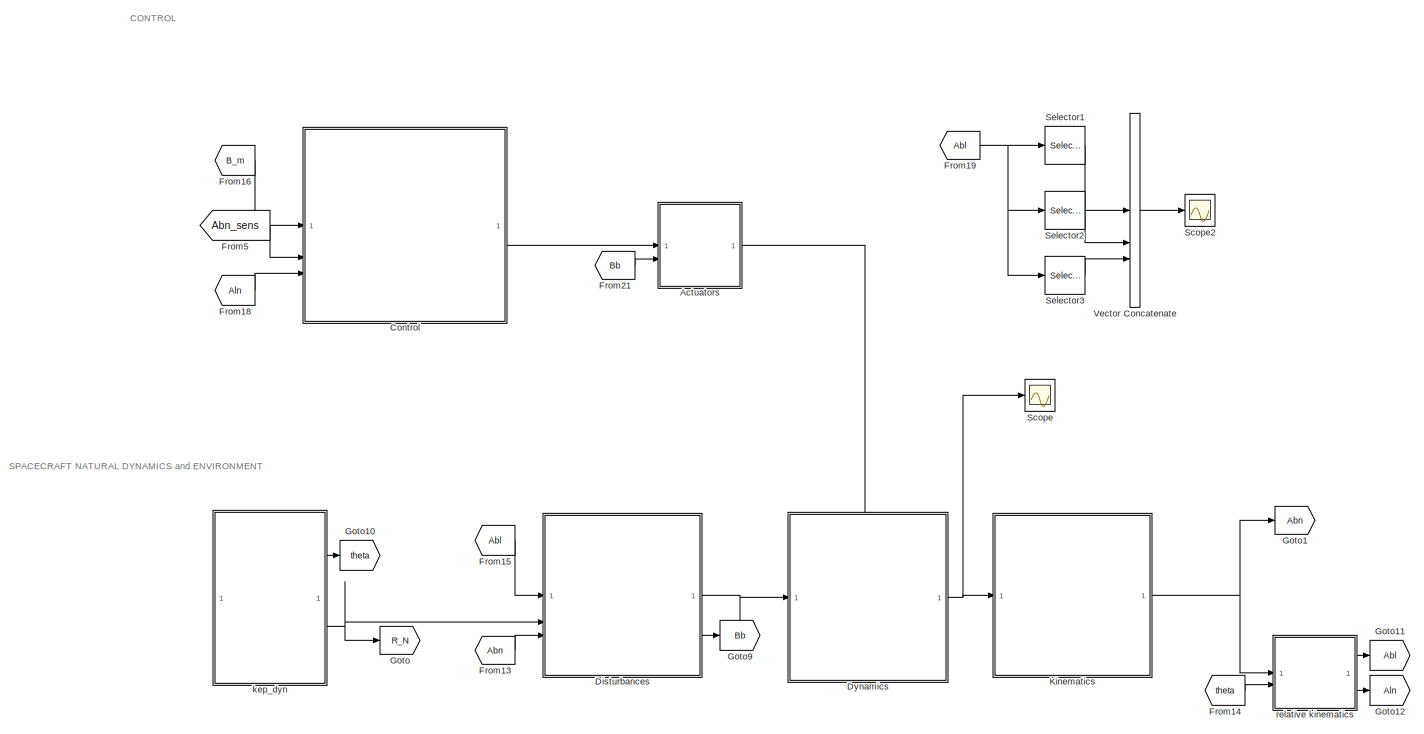
[diagram: root canvas - part 1/2, full width, top band]
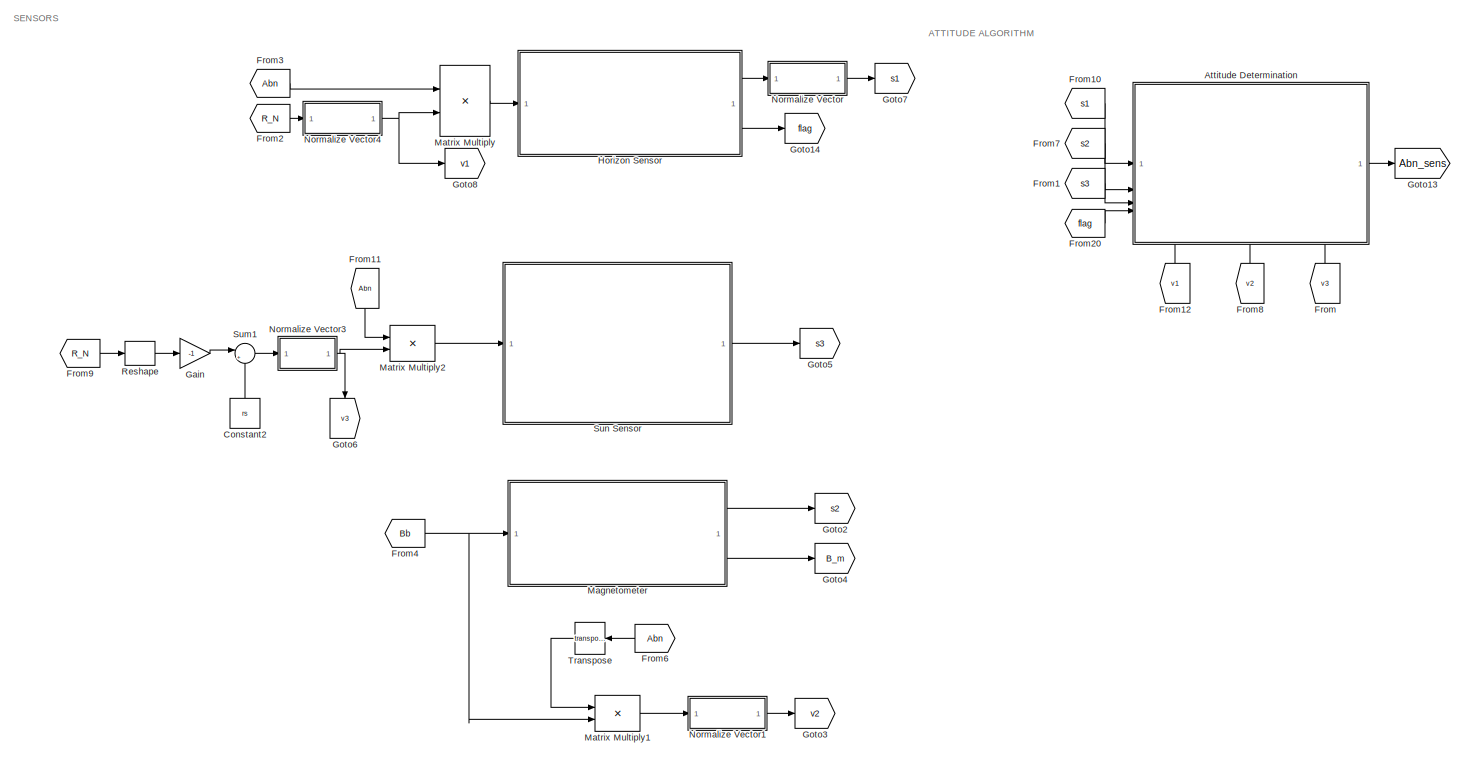
[diagram: root canvas - part 2/2, full width, bottom band]
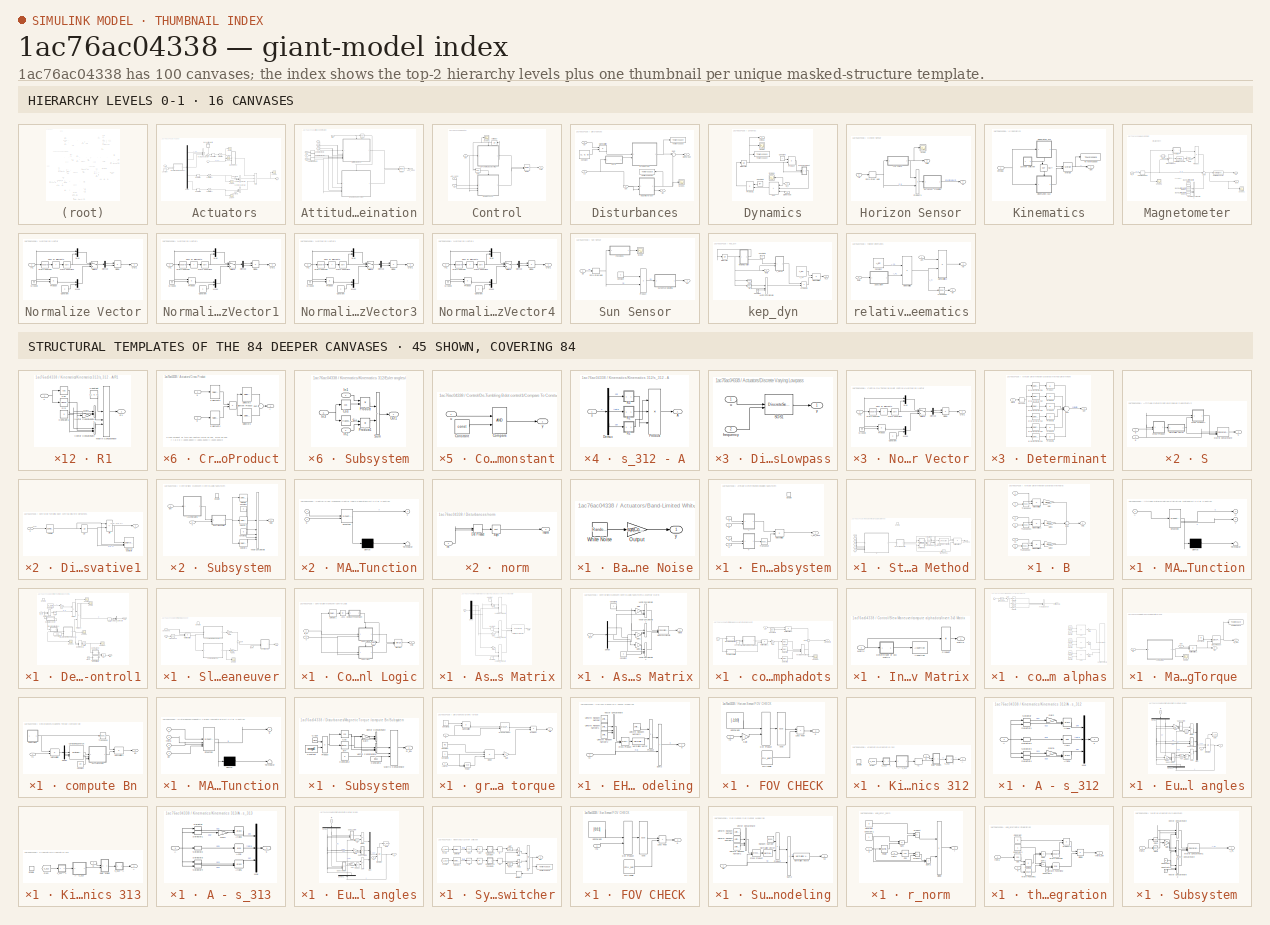
[diagram: thumbnail index - top-2 hierarchy levels (16 canvases) + 45 structural-template representatives of the remaining 84 canvases]
MODEL slx_1ac76ac04338
KIND model
CONFIG AbsTol = auto
CONFIG EnableMultiTasking = off
CONFIG FixedStep = auto
CONFIG MaxStep = auto
CONFIG MinStep = auto
CONFIG RelTol = 1e-3
CONFIG SampleTimeConstraint = Unconstrained
CONFIG SolverName = VariableStepAuto
CONFIG StartTime = 0.0
CONFIG StopTime = 1e4
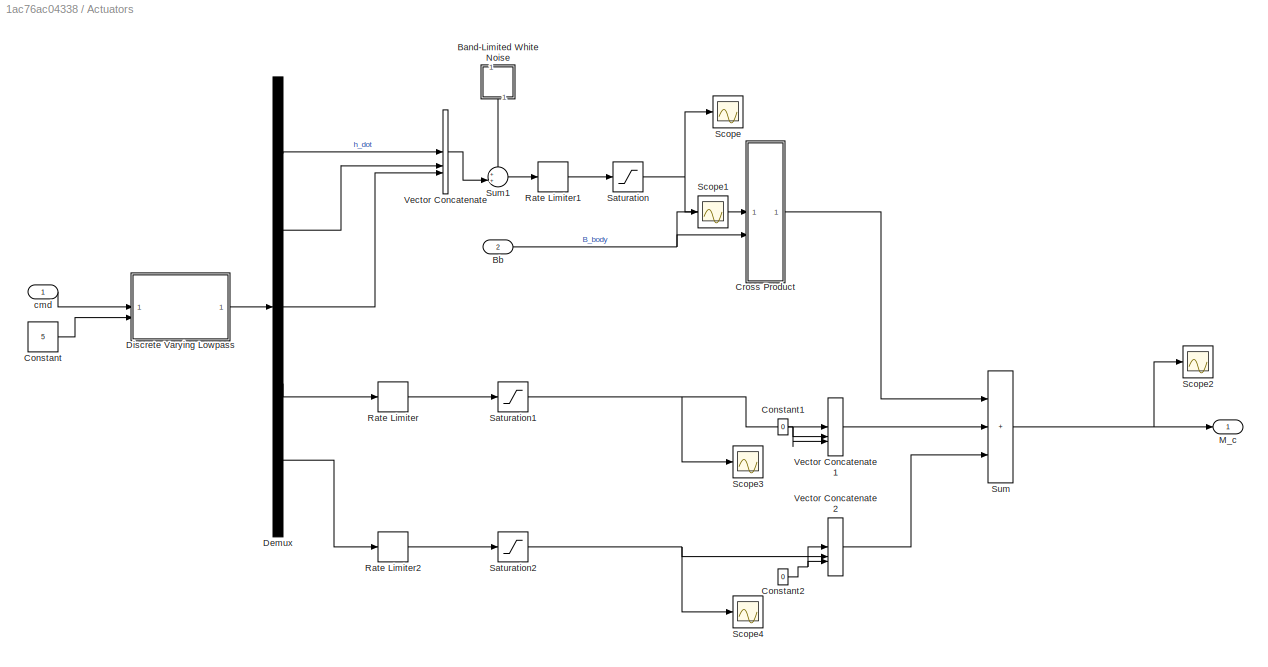
BLOCK [SubSystem]  Actuators
BLOCK [SubSystem]  Actuators/Band-Limited White Noise
  Commented = on
  LibrarySourceBlock = simulink/Sources/Band-Limited\nWhite Noise
  NameLocation = left
BLOCK [Gain]  Actuators/Band-Limited White Noise/Output
  Gain = sqrt(Cov)/sqrt(Ts(1))
  OutDataTypeStr = Inherit: Same as input
  ParamDataTypeStr = Inherit: Same as input
  SaturateOnIntegerOverflow = on
BLOCK [RandomNumber]  Actuators/Band-Limited White Noise/White Noise
  DisableCoverage = on
  SampleTime = Ts
  Seed = seed
BLOCK [Outport]  Actuators/Band-Limited White Noise/y
BLOCK [Inport]  Actuators/Bb
  Port = 2
BLOCK [Constant]  Actuators/Constant
  Value = 5
BLOCK [Constant]  Actuators/Constant1
  Value = 0
BLOCK [Constant]  Actuators/Constant2
  Value = 0
BLOCK [SubSystem]  Actuators/Cross Product
  LibrarySourceBlock = simulink/Matrix\nOperations/Cross Product
BLOCK [Product]  Actuators/Cross Product/Element Product
  RndMeth = Simplest
BLOCK [Selector]  Actuators/Cross Product/Selector2
  IndexOptions = Index vector (dialog)
  Indices = [1 2 3]
  InputPortWidth = 6
  OutputSizes = 1
BLOCK [Selector]  Actuators/Cross Product/Selector3
  IndexOptions = Index vector (dialog)
  Indices = [4 5 6]
  InputPortWidth = 6
  OutputSizes = 1
BLOCK [Sum]  Actuators/Cross Product/Sum
  Inputs = +|-
  RndMeth = Simplest
BLOCK [Inport]  Actuators/Cross Product/a
BLOCK [Selector]  Actuators/Cross Product/a elements
  IndexOptions = Index vector (dialog)
  Indices = [2 3 1 3 1 2]
  InputPortWidth = 3
  OutputSizes = 1
BLOCK [Inport]  Actuators/Cross Product/b
  Port = 2
BLOCK [Selector]  Actuators/Cross Product/b elements
  IndexOptions = Index vector (dialog)
  Indices = [3 1 2 2 3 1]
  InputPortWidth = 3
  OutputSizes = 1
BLOCK [Outport]  Actuators/Cross Product/y
BLOCK [Demux]  Actuators/Demux
  Outputs = 5
BLOCK [SubSystem]  Actuators/Discrete Varying Lowpass
  LibrarySourceBlock = cstblocks/Linear Parameter Varying/Discrete Varying Lowpass
BLOCK [Reference]  Actuators/Discrete Varying Lowpass/SOS1  REF=cstextras/DiscreteSecondOrderSection  (lib defined in mdl_a5737024c95e)
  SourceBlock = cstextras/DiscreteSecondOrderSection
  SourceType = DiscreteSecondOrderSection
BLOCK [Inport]  Actuators/Discrete Varying Lowpass/frequency
  Port = 2
BLOCK [Inport]  Actuators/Discrete Varying Lowpass/u
BLOCK [Outport]  Actuators/Discrete Varying Lowpass/y
  VectorParamsAs1DForOutWhenUnconnected = off
BLOCK [Outport]  Actuators/M_c
BLOCK [RateLimiter]  Actuators/Rate Limiter
BLOCK [RateLimiter]  Actuators/Rate Limiter1
  FallingSlewLimit = -10
  RisingSlewLimit = 10
BLOCK [RateLimiter]  Actuators/Rate Limiter2
BLOCK [Saturate]  Actuators/Saturation
  LowerLimit = -150
  UpperLimit = 150
BLOCK [Saturate]  Actuators/Saturation1
BLOCK [Saturate]  Actuators/Saturation2
BLOCK [Scope]  Actuators/Scope
  Floating = off
  NumInputPorts = 1
  ScopeSpecificationString = Simulink.scopes.TimeScopeBlockCfg('CurrentConfiguration', extmgr.ConfigurationSet(extmgr.Configuration('Core','General UI',true),extmgr.Configuration('Core','Source UI',true),extmgr.Configuration('Sources','WiredSimulink',true,'DataLoggingVariableName','ScopeData1'),extmgr.Configuration('Visuals','Time Domain',true,'SerializedDisplays',{struct('MinYLimReal','-187.5','MaxYLimReal','187.5','YLabelRe...<+1439ch>
BLOCK [Scope]  Actuators/Scope1
  Floating = off
  NumInputPorts = 1
  ScopeSpecificationString = Simulink.scopes.TimeScopeBlockCfg('CurrentConfiguration', extmgr.ConfigurationSet(extmgr.Configuration('Core','General UI',true),extmgr.Configuration('Core','Source UI',true),extmgr.Configuration('Sources','WiredSimulink',true,'DataLoggingVariableName','ScopeData2'),extmgr.Configuration('Visuals','Time Domain',true,'SerializedDisplays',{struct('MinYLimReal','-0.00006','MaxYLimReal','0.00006','YLab...<+1462ch>
BLOCK [Scope]  Actuators/Scope2
  Floating = off
  NumInputPorts = 1
  ScopeSpecificationString = Simulink.scopes.TimeScopeBlockCfg('CurrentConfiguration', extmgr.ConfigurationSet(extmgr.Configuration('Core','General UI',true),extmgr.Configuration('Core','Source UI',true),extmgr.Configuration('Sources','WiredSimulink',true,'DataLoggingVariableName','ScopeData1'),extmgr.Configuration('Visuals','Time Domain',true,'SerializedDisplays',{struct('MinYLimReal','-0.62674','MaxYLimReal','0.63055','YLab...<+1453ch>
BLOCK [Scope]  Actuators/Scope3
  Floating = off
  NumInputPorts = 1
  ScopeSpecificationString = Simulink.scopes.TimeScopeBlockCfg('CurrentConfiguration', extmgr.ConfigurationSet(extmgr.Configuration('Core','General UI',true),extmgr.Configuration('Core','Source UI',true),extmgr.Configuration('Sources','WiredSimulink',true,'DataLoggingVariableName','ScopeData2'),extmgr.Configuration('Visuals','Time Domain',true,'SerializedDisplays',{struct('MinYLimReal','-0.12942','MaxYLimReal','0.14744','YLab...<+1541ch>
BLOCK [Scope]  Actuators/Scope4
  Floating = off
  NumInputPorts = 1
  ScopeSpecificationString = Simulink.scopes.TimeScopeBlockCfg('CurrentConfiguration', extmgr.ConfigurationSet(extmgr.Configuration('Core','General UI',true),extmgr.Configuration('Core','Source UI',true),extmgr.Configuration('Sources','WiredSimulink',true,'DataLoggingVariableName','ScopeData1'),extmgr.Configuration('Visuals','Time Domain',true,'SerializedDisplays',{struct('MinYLimReal','-0.625','MaxYLimReal','0.625','YLabelRe...<+1528ch>
BLOCK [Sum]  Actuators/Sum
  IconShape = rectangular
  Inputs = +++
BLOCK [Sum]  Actuators/Sum1
  Inputs = ++|
BLOCK [Concatenate]  Actuators/Vector Concatenate
  NumInputs = 3
BLOCK [Concatenate]  Actuators/Vector Concatenate1
  NumInputs = 3
BLOCK [Concatenate]  Actuators/Vector Concatenate2
  NumInputs = 3
BLOCK [Inport]  Actuators/cmd
BLOCK [SubSystem] Attitude Determination
  PortSchema = {"entries":[{"content":{"sides":[{"content":{"connectorIds":["In1","In2","In3","In4"]},"type":"ConnectorPlacement.EquallySpacedRectSide","uuid":"730966cf-d0d7-44a0-92f0-b5324480e7cc"},{"content":{"connectorIds":["Out1"],"side":"RIGHT"},"type":"ConnectorPlacement.EquallySpacedRectSide","uuid":"c83e6b57-46fe-4a45-9824-d3495e15bf6a"},{"content":{"side":"TOP"},"type":"ConnectorPlacement.EquallySpacedR...<+401ch>
BLOCK [Outport] Attitude Determination/Abn_sens
BLOCK [SubSystem] Attitude Determination/Enabled Subsystem
  TreatAsAtomicUnit = on
BLOCK [Outport] Attitude Determination/Enabled Subsystem/A_bn_sens
BLOCK [EnablePort] Attitude Determination/Enabled Subsystem/Enable
BLOCK [Product] Attitude Determination/Enabled Subsystem/Matrix Multiply
  Multiplication = Matrix(*)
BLOCK [SubSystem] Attitude Determination/Enabled Subsystem/S
BLOCK [SubSystem] Attitude Determination/Enabled Subsystem/S/Cross Product
  LibrarySourceBlock = simulink/Matrix\nOperations/Cross Product
BLOCK [Product] Attitude Determination/Enabled Subsystem/S/Cross Product/Element Product
  RndMeth = Simplest
BLOCK [Selector] Attitude Determination/Enabled Subsystem/S/Cross Product/Selector2
  IndexOptions = Index vector (dialog)
  Indices = [1 2 3]
  InputPortWidth = 6
  OutputSizes = 1
BLOCK [Selector] Attitude Determination/Enabled Subsystem/S/Cross Product/Selector3
  IndexOptions = Index vector (dialog)
  Indices = [4 5 6]
  InputPortWidth = 6
  OutputSizes = 1
BLOCK [Sum] Attitude Determination/Enabled Subsystem/S/Cross Product/Sum
  Inputs = +|-
  RndMeth = Simplest
BLOCK [Inport] Attitude Determination/Enabled Subsystem/S/Cross Product/a
BLOCK [Selector] Attitude Determination/Enabled Subsystem/S/Cross Product/a elements
  IndexOptions = Index vector (dialog)
  Indices = [2 3 1 3 1 2]
  InputPortWidth = 3
  OutputSizes = 1
BLOCK [Inport] Attitude Determination/Enabled Subsystem/S/Cross Product/b
  Port = 2
BLOCK [Selector] Attitude Determination/Enabled Subsystem/S/Cross Product/b elements
  IndexOptions = Index vector (dialog)
  Indices = [3 1 2 2 3 1]
  InputPortWidth = 3
  OutputSizes = 1
BLOCK [Outport] Attitude Determination/Enabled Subsystem/S/Cross Product/y
BLOCK [SubSystem] Attitude Determination/Enabled Subsystem/S/Cross Product1
  LibrarySourceBlock = simulink/Matrix\nOperations/Cross Product
BLOCK [Product] Attitude Determination/Enabled Subsystem/S/Cross Product1/Element Product
  RndMeth = Simplest
BLOCK [Selector] Attitude Determination/Enabled Subsystem/S/Cross Product1/Selector2
  IndexOptions = Index vector (dialog)
  Indices = [1 2 3]
  InputPortWidth = 6
  OutputSizes = 1
BLOCK [Selector] Attitude Determination/Enabled Subsystem/S/Cross Product1/Selector3
  IndexOptions = Index vector (dialog)
  Indices = [4 5 6]
  InputPortWidth = 6
  OutputSizes = 1
BLOCK [Sum] Attitude Determination/Enabled Subsystem/S/Cross Product1/Sum
  Inputs = +|-
  RndMeth = Simplest
BLOCK [Inport] Attitude Determination/Enabled Subsystem/S/Cross Product1/a
BLOCK [Selector] Attitude Determination/Enabled Subsystem/S/Cross Product1/a elements
  IndexOptions = Index vector (dialog)
  Indices = [2 3 1 3 1 2]
  InputPortWidth = 3
  OutputSizes = 1
BLOCK [Inport] Attitude Determination/Enabled Subsystem/S/Cross Product1/b
  Port = 2
BLOCK [Selector] Attitude Determination/Enabled Subsystem/S/Cross Product1/b elements
  IndexOptions = Index vector (dialog)
  Indices = [3 1 2 2 3 1]
  InputPortWidth = 3
  OutputSizes = 1
BLOCK [Outport] Attitude Determination/Enabled Subsystem/S/Cross Product1/y
BLOCK [Concatenate] Attitude Determination/Enabled Subsystem/S/Matrix Concatenate
  ConcatenateDimension = 2
  Mode = Multidimensional array
  NumInputs = 3
BLOCK [SubSystem] Attitude Determination/Enabled Subsystem/S/Normalize Vector
  LibrarySourceBlock = vrlib/Utilities/Normalize Vector
BLOCK [Constant] Attitude Determination/Enabled Subsystem/S/Normalize Vector/Constant
BLOCK [Demux] Attitude Determination/Enabled Subsystem/S/Normalize Vector/Demux
  Outputs = [-1 1]
BLOCK [Product] Attitude Determination/Enabled Subsystem/S/Normalize Vector/Divide
  Inputs = */
  OutDataTypeStr = double
BLOCK [Ground] Attitude Determination/Enabled Subsystem/S/Normalize Vector/Ground
BLOCK [Inport] Attitude Determination/Enabled Subsystem/S/Normalize Vector/In1
BLOCK [Math] Attitude Determination/Enabled Subsystem/S/Normalize Vector/Math Function
  Operator = square
  SignedPower = on
BLOCK [Math] Attitude Determination/Enabled Subsystem/S/Normalize Vector/Math Function1
  Operator = sqrt
  SignedPower = on
BLOCK [Mux] Attitude Determination/Enabled Subsystem/S/Normalize Vector/Mux
  DisplayOption = bar
  Inputs = 2
BLOCK [Mux] Attitude Determination/Enabled Subsystem/S/Normalize Vector/Mux1
  DisplayOption = bar
  Inputs = 2
BLOCK [Outport] Attitude Determination/Enabled Subsystem/S/Normalize Vector/Out1
  VectorParamsAs1DForOutWhenUnconnected = off
BLOCK [Product] Attitude Determination/Enabled Subsystem/S/Normalize Vector/Product
  RndMeth = Zero
BLOCK [Sum] Attitude Determination/Enabled Subsystem/S/Normalize Vector/Sum of Elements
  IconShape = rectangular
  Inputs = +
BLOCK [Switch] Attitude Determination/Enabled Subsystem/S/Normalize Vector/Switch
  Criteria = u2 > Threshold
  InputSameDT = off
  SaturateOnIntegerOverflow = off
  Threshold = maxzero
BLOCK [Outport] Attitude Determination/Enabled Subsystem/S/S
BLOCK [Inport] Attitude Determination/Enabled Subsystem/S/p
  Port = 2
BLOCK [Inport] Attitude Determination/Enabled Subsystem/S/q
BLOCK [Math] Attitude Determination/Enabled Subsystem/Transpose
  Operator = transpose
BLOCK [SubSystem] Attitude Determination/Enabled Subsystem/V
BLOCK [SubSystem] Attitude Determination/Enabled Subsystem/V/Cross Product
  LibrarySourceBlock = simulink/Matrix\nOperations/Cross Product
BLOCK [Product] Attitude Determination/Enabled Subsystem/V/Cross Product/Element Product
  RndMeth = Simplest
BLOCK [Selector] Attitude Determination/Enabled Subsystem/V/Cross Product/Selector2
  IndexOptions = Index vector (dialog)
  Indices = [1 2 3]
  InputPortWidth = 6
  OutputSizes = 1
BLOCK [Selector] Attitude Determination/Enabled Subsystem/V/Cross Product/Selector3
  IndexOptions = Index vector (dialog)
  Indices = [4 5 6]
  InputPortWidth = 6
  OutputSizes = 1
BLOCK [Sum] Attitude Determination/Enabled Subsystem/V/Cross Product/Sum
  Inputs = +|-
  RndMeth = Simplest
BLOCK [Inport] Attitude Determination/Enabled Subsystem/V/Cross Product/a
BLOCK [Selector] Attitude Determination/Enabled Subsystem/V/Cross Product/a elements
  IndexOptions = Index vector (dialog)
  Indices = [2 3 1 3 1 2]
  InputPortWidth = 3
  OutputSizes = 1
BLOCK [Inport] Attitude Determination/Enabled Subsystem/V/Cross Product/b
  Port = 2
BLOCK [Selector] Attitude Determination/Enabled Subsystem/V/Cross Product/b elements
  IndexOptions = Index vector (dialog)
  Indices = [3 1 2 2 3 1]
  InputPortWidth = 3
  OutputSizes = 1
BLOCK [Outport] Attitude Determination/Enabled Subsystem/V/Cross Product/y
BLOCK [SubSystem] Attitude Determination/Enabled Subsystem/V/Cross Product1
  LibrarySourceBlock = simulink/Matrix\nOperations/Cross Product
BLOCK [Product] Attitude Determination/Enabled Subsystem/V/Cross Product1/Element Product
  RndMeth = Simplest
BLOCK [Selector] Attitude Determination/Enabled Subsystem/V/Cross Product1/Selector2
  IndexOptions = Index vector (dialog)
  Indices = [1 2 3]
  InputPortWidth = 6
  OutputSizes = 1
BLOCK [Selector] Attitude Determination/Enabled Subsystem/V/Cross Product1/Selector3
  IndexOptions = Index vector (dialog)
  Indices = [4 5 6]
  InputPortWidth = 6
  OutputSizes = 1
BLOCK [Sum] Attitude Determination/Enabled Subsystem/V/Cross Product1/Sum
  Inputs = +|-
  RndMeth = Simplest
BLOCK [Inport] Attitude Determination/Enabled Subsystem/V/Cross Product1/a
BLOCK [Selector] Attitude Determination/Enabled Subsystem/V/Cross Product1/a elements
  IndexOptions = Index vector (dialog)
  Indices = [2 3 1 3 1 2]
  InputPortWidth = 3
  OutputSizes = 1
BLOCK [Inport] Attitude Determination/Enabled Subsystem/V/Cross Product1/b
  Port = 2
BLOCK [Selector] Attitude Determination/Enabled Subsystem/V/Cross Product1/b elements
  IndexOptions = Index vector (dialog)
  Indices = [3 1 2 2 3 1]
  InputPortWidth = 3
  OutputSizes = 1
BLOCK [Outport] Attitude Determination/Enabled Subsystem/V/Cross Product1/y
BLOCK [Concatenate] Attitude Determination/Enabled Subsystem/V/Matrix Concatenate
  ConcatenateDimension = 2
  Mode = Multidimensional array
  NumInputs = 3
BLOCK [SubSystem] Attitude Determination/Enabled Subsystem/V/Normalize Vector
  LibrarySourceBlock = vrlib/Utilities/Normalize Vector
BLOCK [Constant] Attitude Determination/Enabled Subsystem/V/Normalize Vector/Constant
BLOCK [Demux] Attitude Determination/Enabled Subsystem/V/Normalize Vector/Demux
  Outputs = [-1 1]
BLOCK [Product] Attitude Determination/Enabled Subsystem/V/Normalize Vector/Divide
  Inputs = */
  OutDataTypeStr = double
BLOCK [Ground] Attitude Determination/Enabled Subsystem/V/Normalize Vector/Ground
BLOCK [Inport] Attitude Determination/Enabled Subsystem/V/Normalize Vector/In1
BLOCK [Math] Attitude Determination/Enabled Subsystem/V/Normalize Vector/Math Function
  Operator = square
  SignedPower = on
BLOCK [Math] Attitude Determination/Enabled Subsystem/V/Normalize Vector/Math Function1
  Operator = sqrt
  SignedPower = on
BLOCK [Mux] Attitude Determination/Enabled Subsystem/V/Normalize Vector/Mux
  DisplayOption = bar
  Inputs = 2
BLOCK [Mux] Attitude Determination/Enabled Subsystem/V/Normalize Vector/Mux1
  DisplayOption = bar
  Inputs = 2
BLOCK [Outport] Attitude Determination/Enabled Subsystem/V/Normalize Vector/Out1
  VectorParamsAs1DForOutWhenUnconnected = off
BLOCK [Product] Attitude Determination/Enabled Subsystem/V/Normalize Vector/Product
  RndMeth = Zero
BLOCK [Sum] Attitude Determination/Enabled Subsystem/V/Normalize Vector/Sum of Elements
  IconShape = rectangular
  Inputs = +
BLOCK [Switch] Attitude Determination/Enabled Subsystem/V/Normalize Vector/Switch
  Criteria = u2 > Threshold
  InputSameDT = off
  SaturateOnIntegerOverflow = off
  Threshold = maxzero
BLOCK [Outport] Attitude Determination/Enabled Subsystem/V/V
BLOCK [Inport] Attitude Determination/Enabled Subsystem/V/a
  Port = 2
BLOCK [Inport] Attitude Determination/Enabled Subsystem/V/b
BLOCK [Inport] Attitude Determination/Enabled Subsystem/a
  Port = 4
BLOCK [Inport] Attitude Determination/Enabled Subsystem/b
  Port = 3
BLOCK [Inport] Attitude Determination/Enabled Subsystem/p
  Port = 2
BLOCK [Inport] Attitude Determination/Enabled Subsystem/q
BLOCK [Merge] Attitude Determination/Merge
BLOCK [Logic] Attitude Determination/NOT
  AllPortsSameDT = off
  IconShape = distinctive
  Operator = NOT
  OutDataTypeStr = boolean
BLOCK [SubSystem] Attitude Determination/Statistical Method
  TreatAsAtomicUnit = on
BLOCK [Outport] Attitude Determination/Statistical Method/Abn_sens
BLOCK [SubSystem] Attitude Determination/Statistical Method/B
BLOCK [Gain] Attitude Determination/Statistical Method/B/Gain
  Gain = alpha1
BLOCK [Gain] Attitude Determination/Statistical Method/B/Gain1
  Gain = alpha2
BLOCK [Gain] Attitude Determination/Statistical Method/B/Gain2
  Gain = alpha3
BLOCK [Product] Attitude Determination/Statistical Method/B/Matrix Multiply
  Multiplication = Matrix(*)
BLOCK [Product] Attitude Determination/Statistical Method/B/Matrix Multiply1
  Multiplication = Matrix(*)
BLOCK [Product] Attitude Determination/Statistical Method/B/Matrix Multiply2
  Multiplication = Matrix(*)
BLOCK [Outport] Attitude Determination/Statistical Method/B/Out1
BLOCK [Sum] Attitude Determination/Statistical Method/B/Sum
  Inputs = +++
BLOCK [Math] Attitude Determination/Statistical Method/B/Transpose
  Operator = transpose
BLOCK [Math] Attitude Determination/Statistical Method/B/Transpose1
  Operator = transpose
BLOCK [Math] Attitude Determination/Statistical Method/B/Transpose2
  Operator = transpose
BLOCK [Inport] Attitude Determination/Statistical Method/B/s1
BLOCK [Inport] Attitude Determination/Statistical Method/B/s2
  Port = 2
BLOCK [Inport] Attitude Determination/Statistical Method/B/s3
  Port = 3
BLOCK [Inport] Attitude Determination/Statistical Method/B/v1
  Port = 4
BLOCK [Inport] Attitude Determination/Statistical Method/B/v2
  Port = 5
BLOCK [Inport] Attitude Determination/Statistical Method/B/v3
  Port = 6
BLOCK [Constant] Attitude Determination/Statistical Method/Constant1
BLOCK [S-Function] Attitude Determination/Statistical Method/Create Diagonal Matrix1
  EnableBusSupport = off
  FunctionName = sdspdiag2
  LibrarySourceBlock = simulink/Matrix\nOperations/Create Diagonal\nMatrix
  Parameters = mode
  SFcnIsStateOwnerBlock = off
  SFunctionDeploymentMode = off
BLOCK [SubSystem] Attitude Determination/Statistical Method/Determinant
  LibrarySourceBlock = aerolibutil/Determinant of\n3x3 Matrix
  PermitHierarchicalResolution = ExplicitOnly
BLOCK [Inport] Attitude Determination/Statistical Method/Determinant/Matrix
  PortDimensions = [3 3]
BLOCK [Product] Attitude Determination/Statistical Method/Determinant/Product
  Inputs = 1
  OutDataTypeStr = Inherit: Same as first input
  SaturateOnIntegerOverflow = on
BLOCK [Product] Attitude Determination/Statistical Method/Determinant/Product1
  Inputs = 1
  OutDataTypeStr = Inherit: Same as first input
  SaturateOnIntegerOverflow = on
BLOCK [Product] Attitude Determination/Statistical Method/Determinant/Product2
  Inputs = 1
  OutDataTypeStr = Inherit: Same as first input
  SaturateOnIntegerOverflow = on
BLOCK [Product] Attitude Determination/Statistical Method/Determinant/Product3
  Inputs = 1
  OutDataTypeStr = Inherit: Same as first input
  SaturateOnIntegerOverflow = on
BLOCK [Product] Attitude Determination/Statistical Method/Determinant/Product4
  Inputs = 1
  OutDataTypeStr = Inherit: Same as first input
  SaturateOnIntegerOverflow = on
BLOCK [Product] Attitude Determination/Statistical Method/Determinant/Product5
  Inputs = 1
  OutDataTypeStr = Inherit: Same as first input
  SaturateOnIntegerOverflow = on
BLOCK [Reshape] Attitude Determination/Statistical Method/Determinant/Reshape
  OutputDimensionality = Column vector (2-D)
BLOCK [Sum] Attitude Determination/Statistical Method/Determinant/Sum
  Inputs = +--++-
  SaturateOnIntegerOverflow = on
BLOCK [Selector] Attitude Determination/Statistical Method/Determinant/a(1,1),a(2,2),a(3,3)
  IndexOptions = Index vector (dialog)
  Indices = [1 5 9]
  InputPortWidth = 9
  OutputSizes = 1
BLOCK [Selector] Attitude Determination/Statistical Method/Determinant/a(1,1),a(2,3),a(3,2)
  IndexOptions = Index vector (dialog)
  Indices = [1 6 8]
  InputPortWidth = 9
  OutputSizes = 1
BLOCK [Selector] Attitude Determination/Statistical Method/Determinant/a(1,2),a(2,1),a(3,3)
  IndexOptions = Index vector (dialog)
  Indices = [2 4 9]
  InputPortWidth = 9
  OutputSizes = 1
BLOCK [Selector] Attitude Determination/Statistical Method/Determinant/a(1,2),a(2,3),a(3,1)
  IndexOptions = Index vector (dialog)
  Indices = [3 4 8]
  InputPortWidth = 9
  OutputSizes = 1
BLOCK [Selector] Attitude Determination/Statistical Method/Determinant/a(1,3),a(2,1),a(3,2)
  IndexOptions = Index vector (dialog)
  Indices = [2 6 7]
  InputPortWidth = 9
  OutputSizes = 1
BLOCK [Selector] Attitude Determination/Statistical Method/Determinant/a(1,3),a(2,2),a(3,1)
  IndexOptions = Index vector (dialog)
  Indices = [3 5 7]
  InputPortWidth = 9
  OutputSizes = 1
BLOCK [Outport] Attitude Determination/Statistical Method/Determinant/det
  PortDimensions = 1
  VectorParamsAs1DForOutWhenUnconnected = off
BLOCK [SubSystem] Attitude Determination/Statistical Method/Determinant1
  LibrarySourceBlock = aerolibutil/Determinant of\n3x3 Matrix
  PermitHierarchicalResolution = ExplicitOnly
BLOCK [Inport] Attitude Determination/Statistical Method/Determinant1/Matrix
  PortDimensions = [3 3]
BLOCK [Product] Attitude Determination/Statistical Method/Determinant1/Product
  Inputs = 1
  OutDataTypeStr = Inherit: Same as first input
  SaturateOnIntegerOverflow = on
BLOCK [Product] Attitude Determination/Statistical Method/Determinant1/Product1
  Inputs = 1
  OutDataTypeStr = Inherit: Same as first input
  SaturateOnIntegerOverflow = on
BLOCK [Product] Attitude Determination/Statistical Method/Determinant1/Product2
  Inputs = 1
  OutDataTypeStr = Inherit: Same as first input
  SaturateOnIntegerOverflow = on
BLOCK [Product] Attitude Determination/Statistical Method/Determinant1/Product3
  Inputs = 1
  OutDataTypeStr = Inherit: Same as first input
  SaturateOnIntegerOverflow = on
BLOCK [Product] Attitude Determination/Statistical Method/Determinant1/Product4
  Inputs = 1
  OutDataTypeStr = Inherit: Same as first input
  SaturateOnIntegerOverflow = on
BLOCK [Product] Attitude Determination/Statistical Method/Determinant1/Product5
  Inputs = 1
  OutDataTypeStr = Inherit: Same as first input
  SaturateOnIntegerOverflow = on
BLOCK [Reshape] Attitude Determination/Statistical Method/Determinant1/Reshape
  OutputDimensionality = Column vector (2-D)
BLOCK [Sum] Attitude Determination/Statistical Method/Determinant1/Sum
  Inputs = +--++-
  SaturateOnIntegerOverflow = on
BLOCK [Selector] Attitude Determination/Statistical Method/Determinant1/a(1,1),a(2,2),a(3,3)
  IndexOptions = Index vector (dialog)
  Indices = [1 5 9]
  InputPortWidth = 9
  OutputSizes = 1
BLOCK [Selector] Attitude Determination/Statistical Method/Determinant1/a(1,1),a(2,3),a(3,2)
  IndexOptions = Index vector (dialog)
  Indices = [1 6 8]
  InputPortWidth = 9
  OutputSizes = 1
BLOCK [Selector] Attitude Determination/Statistical Method/Determinant1/a(1,2),a(2,1),a(3,3)
  IndexOptions = Index vector (dialog)
  Indices = [2 4 9]
  InputPortWidth = 9
  OutputSizes = 1
BLOCK [Selector] Attitude Determination/Statistical Method/Determinant1/a(1,2),a(2,3),a(3,1)
  IndexOptions = Index vector (dialog)
  Indices = [3 4 8]
  InputPortWidth = 9
  OutputSizes = 1
BLOCK [Selector] Attitude Determination/Statistical Method/Determinant1/a(1,3),a(2,1),a(3,2)
  IndexOptions = Index vector (dialog)
  Indices = [2 6 7]
  InputPortWidth = 9
  OutputSizes = 1
BLOCK [Selector] Attitude Determination/Statistical Method/Determinant1/a(1,3),a(2,2),a(3,1)
  IndexOptions = Index vector (dialog)
  Indices = [3 5 7]
  InputPortWidth = 9
  OutputSizes = 1
BLOCK [Outport] Attitude Determination/Statistical Method/Determinant1/det
  PortDimensions = 1
  VectorParamsAs1DForOutWhenUnconnected = off
BLOCK [EnablePort] Attitude Determination/Statistical Method/Enable
BLOCK [SubSystem] Attitude Determination/Statistical Method/MATLAB Function
  ErrorFcn = Stateflow.Translate.translate
  PermitHierarchicalResolution = ExplicitOnly
  SFBlockType = MATLAB Function
  TreatAsAtomicUnit = on
BLOCK [Demux] Attitude Determination/Statistical Method/MATLAB Function/ Demux 
  Outputs = 1
BLOCK [S-Function] Attitude Determination/Statistical Method/MATLAB Function/ SFunction 
  EnableBusSupport = on
  FunctionName = sf_sfun
  PortCounts = [1 3]
  SFcnIsStateOwnerBlock = off
  SFunctionDeploymentMode = off
  Tag = Stateflow S-Function 3
BLOCK [Terminator] Attitude Determination/Statistical Method/MATLAB Function/ Terminator 
BLOCK [Inport] Attitude Determination/Statistical Method/MATLAB Function/A
BLOCK [Outport] Attitude Determination/Statistical Method/MATLAB Function/U
BLOCK [Outport] Attitude Determination/Statistical Method/MATLAB Function/V
  Port = 2
BLOCK [Product] Attitude Determination/Statistical Method/Matrix Multiply2
  Inputs = 3
  Multiplication = Matrix(*)
BLOCK [Product] Attitude Determination/Statistical Method/Product1
BLOCK [Math] Attitude Determination/Statistical Method/Transpose1
  Operator = transpose
BLOCK [Concatenate] Attitude Determination/Statistical Method/Vector Concatenate1
  NumInputs = 3
BLOCK [Inport] Attitude Determination/Statistical Method/s1
BLOCK [Inport] Attitude Determination/Statistical Method/s2
  Port = 2
BLOCK [Inport] Attitude Determination/Statistical Method/s3
  Port = 3
BLOCK [Inport] Attitude Determination/Statistical Method/v1
  Port = 4
BLOCK [Inport] Attitude Determination/Statistical Method/v2
  Port = 5
BLOCK [Inport] Attitude Determination/Statistical Method/v3
  Port = 6
BLOCK [ZeroOrderHold] Attitude Determination/Zero-Order Hold
  SampleTime = 1/freq_acds
BLOCK [ZeroOrderHold] Attitude Determination/Zero-Order Hold1
  SampleTime = 1/freq_acds
BLOCK [ZeroOrderHold] Attitude Determination/Zero-Order Hold2
  SampleTime = 1/freq_acds
BLOCK [Inport] Attitude Determination/flag
  Port = 4
BLOCK [Inport] Attitude Determination/s1
BLOCK [Inport] Attitude Determination/s2
  Port = 2
BLOCK [Inport] Attitude Determination/s3
  Port = 3
BLOCK [Inport] Attitude Determination/v1
  Port = 5
BLOCK [Inport] Attitude Determination/v2
  Port = 6
BLOCK [Inport] Attitude Determination/v3
  Port = 7
BLOCK [Constant] Constant2
  NameLocation = right
  Value = rs
BLOCK [SubSystem] Control
BLOCK [Inport] Control/Abn_sens
  Port = 2
BLOCK [Inport] Control/Aln
  Port = 3
BLOCK [Inport] Control/Bm
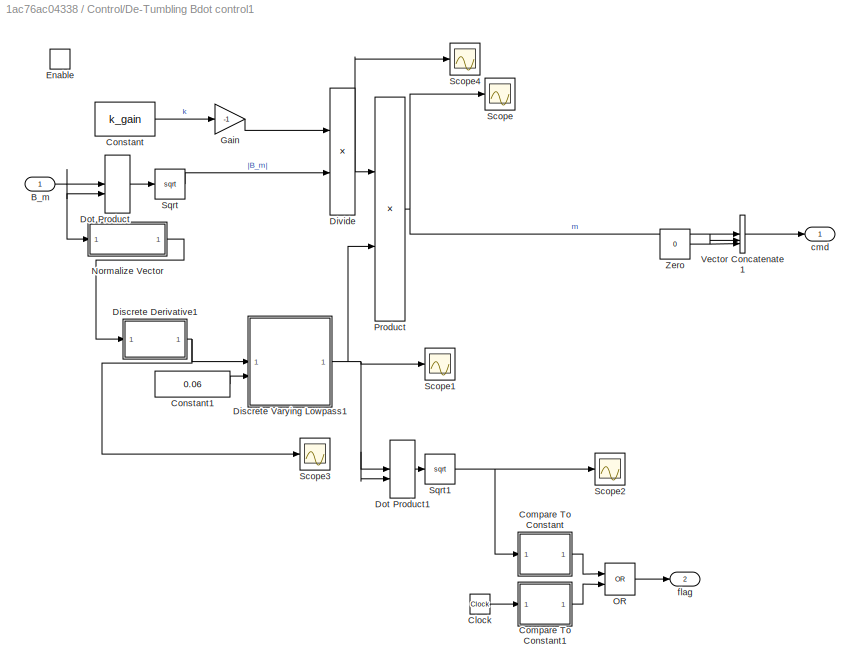
BLOCK [SubSystem] Control/De-Tumbling Bdot control1
BLOCK [Inport] Control/De-Tumbling Bdot control1/B_m
BLOCK [Clock] Control/De-Tumbling Bdot control1/Clock
BLOCK [SubSystem] Control/De-Tumbling Bdot control1/Compare To Constant
  LibrarySourceBlock = simulink/Logic and Bit\nOperations/Compare\nTo Constant
BLOCK [RelationalOperator] Control/De-Tumbling Bdot control1/Compare To Constant/Compare
  OutDataTypeStr = boolean
BLOCK [Constant] Control/De-Tumbling Bdot control1/Compare To Constant/Constant
  DisableCoverage = on
  OutDataTypeStr = Inherit: Inherit via back propagation
  Value = const
BLOCK [Inport] Control/De-Tumbling Bdot control1/Compare To Constant/u
BLOCK [Outport] Control/De-Tumbling Bdot control1/Compare To Constant/y
BLOCK [SubSystem] Control/De-Tumbling Bdot control1/Compare To Constant1
  LibrarySourceBlock = simulink/Logic and Bit\nOperations/Compare\nTo Constant
BLOCK [RelationalOperator] Control/De-Tumbling Bdot control1/Compare To Constant1/Compare
  Operator = <=
  OutDataTypeStr = boolean
BLOCK [Constant] Control/De-Tumbling Bdot control1/Compare To Constant1/Constant
  DisableCoverage = on
  OutDataTypeStr = Inherit: Inherit via back propagation
  Value = const
BLOCK [Inport] Control/De-Tumbling Bdot control1/Compare To Constant1/u
BLOCK [Outport] Control/De-Tumbling Bdot control1/Compare To Constant1/y
BLOCK [Constant] Control/De-Tumbling Bdot control1/Constant
  Value = k_gain
BLOCK [Constant] Control/De-Tumbling Bdot control1/Constant1
  SampleTime = 1/freq_mag
  Value = 0.06
BLOCK [SubSystem] Control/De-Tumbling Bdot control1/Discrete Derivative1
  LibrarySourceBlock = simulink/Discrete/Discrete Derivative
BLOCK [DataTypeDuplicate] Control/De-Tumbling Bdot control1/Discrete Derivative1/Data Type Duplicate
  DisableCoverage = on
  NumInputPorts = 3
BLOCK [Sum] Control/De-Tumbling Bdot control1/Discrete Derivative1/Diff
  Description = Add in CPU
  IconShape = rectangular
  Inputs = +-
  OutDataTypeStr = diffDT
  OutMax = OutMax
  OutMin = OutMin
BLOCK [SampleTimeMath] Control/De-Tumbling Bdot control1/Discrete Derivative1/TSamp
  DisableCoverage = on
  TsampMathImp = Offline Scaling Adjustment
  TsampMathOp = /
  weightValue = inverseGainval
BLOCK [Inport] Control/De-Tumbling Bdot control1/Discrete Derivative1/U
BLOCK [UnitDelay] Control/De-Tumbling Bdot control1/Discrete Derivative1/UD
  Description = Store in Global RAM
  DisableCoverage = on
  HasFrameUpgradeWarning = on
  InitialCondition = ICPrevScaledInput
  SampleTime = -1
BLOCK [Outport] Control/De-Tumbling Bdot control1/Discrete Derivative1/Y
  InitialOutput = 0
  OutMax = OutMax
  OutMin = OutMin
BLOCK [SubSystem] Control/De-Tumbling Bdot control1/Discrete Varying Lowpass1
  LibrarySourceBlock = cstblocks/Linear Parameter Varying/Discrete Varying Lowpass
BLOCK [Reference] Control/De-Tumbling Bdot control1/Discrete Varying Lowpass1/FOS  REF=cstextras/DiscreteFirstOrderSection  (lib defined in mdl_a5737024c95e)
  SourceBlock = cstextras/DiscreteFirstOrderSection
  SourceType = DiscreteFirstOrderSection
BLOCK [Inport] Control/De-Tumbling Bdot control1/Discrete Varying Lowpass1/frequency
  Port = 2
BLOCK [Inport] Control/De-Tumbling Bdot control1/Discrete Varying Lowpass1/u
BLOCK [Outport] Control/De-Tumbling Bdot control1/Discrete Varying Lowpass1/y
  VectorParamsAs1DForOutWhenUnconnected = off
BLOCK [Product] Control/De-Tumbling Bdot control1/Divide
  Inputs = */
BLOCK [DotProduct] Control/De-Tumbling Bdot control1/Dot Product
  OutDataTypeStr = Inherit: Inherit via internal rule
BLOCK [DotProduct] Control/De-Tumbling Bdot control1/Dot Product1
  OutDataTypeStr = Inherit: Inherit via internal rule
BLOCK [EnablePort] Control/De-Tumbling Bdot control1/Enable
BLOCK [Gain] Control/De-Tumbling Bdot control1/Gain
  Gain = -1
BLOCK [SubSystem] Control/De-Tumbling Bdot control1/Normalize Vector
  LibrarySourceBlock = vrlib/Utilities/Normalize Vector
BLOCK [Constant] Control/De-Tumbling Bdot control1/Normalize Vector/Constant
BLOCK [Demux] Control/De-Tumbling Bdot control1/Normalize Vector/Demux
  Outputs = [-1 1]
BLOCK [Product] Control/De-Tumbling Bdot control1/Normalize Vector/Divide
  Inputs = */
  OutDataTypeStr = double
BLOCK [Ground] Control/De-Tumbling Bdot control1/Normalize Vector/Ground
BLOCK [Inport] Control/De-Tumbling Bdot control1/Normalize Vector/In1
BLOCK [Math] Control/De-Tumbling Bdot control1/Normalize Vector/Math Function
  Operator = square
  SignedPower = on
BLOCK [Math] Control/De-Tumbling Bdot control1/Normalize Vector/Math Function1
  Operator = sqrt
  SignedPower = on
BLOCK [Mux] Control/De-Tumbling Bdot control1/Normalize Vector/Mux
  DisplayOption = bar
  Inputs = 2
BLOCK [Mux] Control/De-Tumbling Bdot control1/Normalize Vector/Mux1
  DisplayOption = bar
  Inputs = 2
BLOCK [Outport] Control/De-Tumbling Bdot control1/Normalize Vector/Out1
  VectorParamsAs1DForOutWhenUnconnected = off
BLOCK [Product] Control/De-Tumbling Bdot control1/Normalize Vector/Product
  RndMeth = Zero
BLOCK [Sum] Control/De-Tumbling Bdot control1/Normalize Vector/Sum of Elements
  IconShape = rectangular
  Inputs = +
BLOCK [Switch] Control/De-Tumbling Bdot control1/Normalize Vector/Switch
  Criteria = u2 > Threshold
  InputSameDT = off
  SaturateOnIntegerOverflow = off
  Threshold = maxzero
BLOCK [Logic] Control/De-Tumbling Bdot control1/OR
  AllPortsSameDT = off
  IconShape = distinctive
  Operator = OR
  OutDataTypeStr = boolean
BLOCK [Product] Control/De-Tumbling Bdot control1/Product
BLOCK [Scope] Control/De-Tumbling Bdot control1/Scope
  Floating = off
  NumInputPorts = 1
  ScopeSpecificationString = Simulink.scopes.TimeScopeBlockCfg('CurrentConfiguration', extmgr.ConfigurationSet(extmgr.Configuration('Core','General UI',true),extmgr.Configuration('Core','Source UI',true),extmgr.Configuration('Sources','WiredSimulink',true,'DataLoggingVariableName','ScopeData8'),extmgr.Configuration('Visuals','Time Domain',true,'SerializedDisplays',{struct('MinYLimReal','103.96127','MaxYLimReal','104.204','YLa...<+1432ch>
BLOCK [Scope] Control/De-Tumbling Bdot control1/Scope1
  Floating = off
  NumInputPorts = 1
  ScopeSpecificationString = Simulink.scopes.TimeScopeBlockCfg('CurrentConfiguration', extmgr.ConfigurationSet(extmgr.Configuration('Core','General UI',true),extmgr.Configuration('Core','Source UI',true),extmgr.Configuration('Sources','WiredSimulink',true,'DataLoggingVariableName','ScopeData1'),extmgr.Configuration('Visuals','Time Domain',true,'SerializedDisplays',{struct('MinYLimReal','-0.26958','MaxYLimReal','0.40391','YLab...<+1523ch>
BLOCK [Scope] Control/De-Tumbling Bdot control1/Scope2
  Floating = off
  NumInputPorts = 1
  ScopeSpecificationString = Simulink.scopes.TimeScopeBlockCfg('CurrentConfiguration', extmgr.ConfigurationSet(extmgr.Configuration('Core','General UI',true),extmgr.Configuration('Core','Source UI',true),extmgr.Configuration('Sources','WiredSimulink',true,'DataLoggingVariableName','ScopeData1'),extmgr.Configuration('Visuals','Time Domain',true,'SerializedDisplays',{struct('MinYLimReal','-0.04444','MaxYLimReal','0.40018','YLab...<+1441ch>
BLOCK [Scope] Control/De-Tumbling Bdot control1/Scope3
  Floating = off
  NumInputPorts = 1
  ScopeSpecificationString = Simulink.scopes.TimeScopeBlockCfg('CurrentConfiguration', extmgr.ConfigurationSet(extmgr.Configuration('Core','General UI',true),extmgr.Configuration('Core','Source UI',true),extmgr.Configuration('Sources','WiredSimulink',true,'DataLoggingVariableName','ScopeData3'),extmgr.Configuration('Visuals','Time Domain',true,'SerializedDisplays',{struct('MinYLimReal','-1.40524','MaxYLimReal','1.01828','YLab...<+1507ch>
BLOCK [Scope] Control/De-Tumbling Bdot control1/Scope4
  Floating = off
  NumInputPorts = 1
  ScopeSpecificationString = Simulink.scopes.TimeScopeBlockCfg('CurrentConfiguration', extmgr.ConfigurationSet(extmgr.Configuration('Core','General UI',true),extmgr.Configuration('Core','Source UI',true),extmgr.Configuration('Sources','WiredSimulink',true,'DataLoggingVariableName','ScopeData4'),extmgr.Configuration('Visuals','Time Domain',true,'SerializedDisplays',{struct('MinYLimReal','-0.0000051','MaxYLimReal','-0.0000036',...<+1435ch>
BLOCK [Sqrt] Control/De-Tumbling Bdot control1/Sqrt
BLOCK [Sqrt] Control/De-Tumbling Bdot control1/Sqrt1
BLOCK [Concatenate] Control/De-Tumbling Bdot control1/Vector Concatenate1
  NumInputs = 3
BLOCK [Constant] Control/De-Tumbling Bdot control1/Zero
  OutDataTypeStr = Inherit: Inherit via back propagation
  Value = 0
BLOCK [Outport] Control/De-Tumbling Bdot control1/cmd
BLOCK [Outport] Control/De-Tumbling Bdot control1/flag
  Port = 2
BLOCK [Merge] Control/Merge
BLOCK [Logic] Control/NOT
  AllPortsSameDT = off
  IconShape = distinctive
  Operator = NOT
  OutDataTypeStr = boolean
BLOCK [Scope] Control/Scope1
  Floating = off
  NumInputPorts = 1
  ScopeSpecificationString = Simulink.scopes.TimeScopeBlockCfg('CurrentConfiguration', extmgr.ConfigurationSet(extmgr.Configuration('Core','General UI',true),extmgr.Configuration('Core','Source UI',true),extmgr.Configuration('Sources','WiredSimulink',true,'DataLoggingVariableName','ScopeData1'),extmgr.Configuration('Visuals','Time Domain',true,'SerializedDisplays',{struct('MinYLimReal','-0.125','MaxYLimReal','1.125','YLabelRe...<+1434ch>
BLOCK [SubSystem] Control/Slew Maneuver
BLOCK [Inport] Control/Slew Maneuver/Abn_sens
BLOCK [Inport] Control/Slew Maneuver/Aln
  Port = 2
BLOCK [Inport] Control/Slew Maneuver/B_m
  Port = 3
BLOCK [SubSystem] Control/Slew Maneuver/Control Logic
BLOCK [Abs] Control/Slew Maneuver/Control Logic/Abs1
  SaturateOnIntegerOverflow = off
BLOCK [Inport] Control/Slew Maneuver/Control Logic/B_m
  Port = 2
BLOCK [SubSystem] Control/Slew Maneuver/Control Logic/Compare To Constant
  LibrarySourceBlock = simulink/Logic and Bit\nOperations/Compare\nTo Constant
BLOCK [RelationalOperator] Control/Slew Maneuver/Control Logic/Compare To Constant/Compare
  Operator = >
  OutDataTypeStr = boolean
BLOCK [Constant] Control/Slew Maneuver/Control Logic/Compare To Constant/Constant
  DisableCoverage = on
  OutDataTypeStr = Inherit: Inherit via back propagation
  Value = const
BLOCK [Inport] Control/Slew Maneuver/Control Logic/Compare To Constant/u
BLOCK [Outport] Control/Slew Maneuver/Control Logic/Compare To Constant/y
BLOCK [Merge] Control/Slew Maneuver/Control Logic/Merge1
BLOCK [Logic] Control/Slew Maneuver/Control Logic/NOT
  AllPortsSameDT = off
  IconShape = distinctive
  NameLocation = top
  Operator = NOT
  OutDataTypeStr = boolean
BLOCK [Selector] Control/Slew Maneuver/Control Logic/Selector1
  IndexOptions = Index vector (dialog)
  Indices = 1
  InputPortWidth = 3
  OutputSizes = 1
BLOCK [SubSystem] Control/Slew Maneuver/Control Logic/Subsystem
BLOCK [SubSystem] Control/Slew Maneuver/Control Logic/Subsystem/Assembly Matrix
BLOCK [Inport] Control/Slew Maneuver/Control Logic/Subsystem/Assembly Matrix/Bm
BLOCK [Constant] Control/Slew Maneuver/Control Logic/Subsystem/Assembly Matrix/Constant
  Value = 0
BLOCK [Constant] Control/Slew Maneuver/Control Logic/Subsystem/Assembly Matrix/Constant1
BLOCK [Constant] Control/Slew Maneuver/Control Logic/Subsystem/Assembly Matrix/Constant2
  Value = 0
BLOCK [Demux] Control/Slew Maneuver/Control Logic/Subsystem/Assembly Matrix/Demux
  Outputs = 3
BLOCK [Gain] Control/Slew Maneuver/Control Logic/Subsystem/Assembly Matrix/Gain
  Gain = -1
BLOCK [Gain] Control/Slew Maneuver/Control Logic/Subsystem/Assembly Matrix/Gain1
  Gain = -1
BLOCK [Gain] Control/Slew Maneuver/Control Logic/Subsystem/Assembly Matrix/Gain2
  Gain = -1
BLOCK [Outport] Control/Slew Maneuver/Control Logic/Subsystem/Assembly Matrix/Matrix
BLOCK [Concatenate] Control/Slew Maneuver/Control Logic/Subsystem/Assembly Matrix/Matrix Concatenate
  ConcatenateDimension = 2
  Mode = Multidimensional array
  NumInputs = 3
BLOCK [Concatenate] Control/Slew Maneuver/Control Logic/Subsystem/Assembly Matrix/Vector Concatenate
  NumInputs = 3
BLOCK [Concatenate] Control/Slew Maneuver/Control Logic/Subsystem/Assembly Matrix/Vector Concatenate1
  NumInputs = 3
BLOCK [Concatenate] Control/Slew Maneuver/Control Logic/Subsystem/Assembly Matrix/Vector Concatenate2
  NumInputs = 3
BLOCK [Inport] Control/Slew Maneuver/Control Logic/Subsystem/Bm
BLOCK [Constant] Control/Slew Maneuver/Control Logic/Subsystem/Constant
  Value = 0
BLOCK [Constant] Control/Slew Maneuver/Control Logic/Subsystem/Constant1
  Value = 0
BLOCK [EnablePort] Control/Slew Maneuver/Control Logic/Subsystem/Enable
BLOCK [SubSystem] Control/Slew Maneuver/Control Logic/Subsystem/MATLAB Function
  ErrorFcn = Stateflow.Translate.translate
  PermitHierarchicalResolution = ExplicitOnly
  SFBlockType = MATLAB Function
  TreatAsAtomicUnit = on
BLOCK [Demux] Control/Slew Maneuver/Control Logic/Subsystem/MATLAB Function/ Demux 
  Outputs = 1
BLOCK [S-Function] Control/Slew Maneuver/Control Logic/Subsystem/MATLAB Function/ SFunction 
  EnableBusSupport = on
  FunctionName = sf_sfun
  PortCounts = [2 2]
  SFcnIsStateOwnerBlock = off
  SFunctionDeploymentMode = off
  Tag = Stateflow S-Function 2
BLOCK [Terminator] Control/Slew Maneuver/Control Logic/Subsystem/MATLAB Function/ Terminator 
BLOCK [Inport] Control/Slew Maneuver/Control Logic/Subsystem/MATLAB Function/A
BLOCK [Inport] Control/Slew Maneuver/Control Logic/Subsystem/MATLAB Function/b
  Port = 2
BLOCK [Outport] Control/Slew Maneuver/Control Logic/Subsystem/MATLAB Function/x
BLOCK [Outport] Control/Slew Maneuver/Control Logic/Subsystem/Out1
BLOCK [Selector] Control/Slew Maneuver/Control Logic/Subsystem/Selector
  IndexOptions = Index vector (dialog)
  Indices = 1
  InputPortWidth = 3
  OutputSizes = 1
BLOCK [Selector] Control/Slew Maneuver/Control Logic/Subsystem/Selector1
  IndexOptions = Index vector (dialog)
  Indices = 3
  InputPortWidth = 3
  OutputSizes = 1
BLOCK [Selector] Control/Slew Maneuver/Control Logic/Subsystem/Selector2
  IndexOptions = Index vector (dialog)
  Indices = 2
  InputPortWidth = 3
  OutputSizes = 1
BLOCK [Concatenate] Control/Slew Maneuver/Control Logic/Subsystem/Vector Concatenate
  NumInputs = 5
BLOCK [Inport] Control/Slew Maneuver/Control Logic/Subsystem/u
  Port = 2
BLOCK [SubSystem] Control/Slew Maneuver/Control Logic/Subsystem1
BLOCK [SubSystem] Control/Slew Maneuver/Control Logic/Subsystem1/Assembly Matrix
BLOCK [Inport] Control/Slew Maneuver/Control Logic/Subsystem1/Assembly Matrix/B_m
BLOCK [Constant] Control/Slew Maneuver/Control Logic/Subsystem1/Assembly Matrix/Constant
  Value = 0
BLOCK [Constant] Control/Slew Maneuver/Control Logic/Subsystem1/Assembly Matrix/Constant1
BLOCK [Demux] Control/Slew Maneuver/Control Logic/Subsystem1/Assembly Matrix/Demux
  Outputs = 3
BLOCK [Gain] Control/Slew Maneuver/Control Logic/Subsystem1/Assembly Matrix/Gain
  Gain = -1
BLOCK [Gain] Control/Slew Maneuver/Control Logic/Subsystem1/Assembly Matrix/Gain1
  Gain = -1
BLOCK [Gain] Control/Slew Maneuver/Control Logic/Subsystem1/Assembly Matrix/Gain2
  Gain = -1
BLOCK [Outport] Control/Slew Maneuver/Control Logic/Subsystem1/Assembly Matrix/Matrix 
BLOCK [Concatenate] Control/Slew Maneuver/Control Logic/Subsystem1/Assembly Matrix/Matrix Concatenate
  ConcatenateDimension = 2
  Mode = Multidimensional array
  NumInputs = 3
BLOCK [Concatenate] Control/Slew Maneuver/Control Logic/Subsystem1/Assembly Matrix/Vector Concatenate
  NumInputs = 3
BLOCK [Concatenate] Control/Slew Maneuver/Control Logic/Subsystem1/Assembly Matrix/Vector Concatenate1
  NumInputs = 3
BLOCK [Concatenate] Control/Slew Maneuver/Control Logic/Subsystem1/Assembly Matrix/Vector Concatenate2
  NumInputs = 3
BLOCK [Inport] Control/Slew Maneuver/Control Logic/Subsystem1/B_m
BLOCK [Constant] Control/Slew Maneuver/Control Logic/Subsystem1/Constant
  Value = 0
BLOCK [Constant] Control/Slew Maneuver/Control Logic/Subsystem1/Constant1
  Value = 0
BLOCK [EnablePort] Control/Slew Maneuver/Control Logic/Subsystem1/Enable
BLOCK [SubSystem] Control/Slew Maneuver/Control Logic/Subsystem1/MATLAB Function
  ErrorFcn = Stateflow.Translate.translate
  PermitHierarchicalResolution = ExplicitOnly
  SFBlockType = MATLAB Function
  TreatAsAtomicUnit = on
BLOCK [Demux] Control/Slew Maneuver/Control Logic/Subsystem1/MATLAB Function/ Demux 
  Outputs = 1
BLOCK [S-Function] Control/Slew Maneuver/Control Logic/Subsystem1/MATLAB Function/ SFunction 
  EnableBusSupport = on
  FunctionName = sf_sfun
  PortCounts = [2 2]
  SFcnIsStateOwnerBlock = off
  SFunctionDeploymentMode = off
  Tag = Stateflow S-Function 1
BLOCK [Terminator] Control/Slew Maneuver/Control Logic/Subsystem1/MATLAB Function/ Terminator 
BLOCK [Inport] Control/Slew Maneuver/Control Logic/Subsystem1/MATLAB Function/A
BLOCK [Inport] Control/Slew Maneuver/Control Logic/Subsystem1/MATLAB Function/b
  Port = 2
BLOCK [Outport] Control/Slew Maneuver/Control Logic/Subsystem1/MATLAB Function/x
BLOCK [Outport] Control/Slew Maneuver/Control Logic/Subsystem1/Out1
BLOCK [Selector] Control/Slew Maneuver/Control Logic/Subsystem1/Selector
  IndexOptions = Index vector (dialog)
  Indices = 2
  InputPortWidth = 3
  OutputSizes = 1
BLOCK [Selector] Control/Slew Maneuver/Control Logic/Subsystem1/Selector1
  IndexOptions = Index vector (dialog)
  Indices = 3
  InputPortWidth = 3
  OutputSizes = 1
BLOCK [Selector] Control/Slew Maneuver/Control Logic/Subsystem1/Selector2
  IndexOptions = Index vector (dialog)
  Indices = 1
  InputPortWidth = 3
  OutputSizes = 1
BLOCK [Concatenate] Control/Slew Maneuver/Control Logic/Subsystem1/Vector Concatenate
  NumInputs = 5
BLOCK [Inport] Control/Slew Maneuver/Control Logic/Subsystem1/u
  Port = 2
BLOCK [Outport] Control/Slew Maneuver/Control Logic/cmd
BLOCK [Inport] Control/Slew Maneuver/Control Logic/u
BLOCK [EnablePort] Control/Slew Maneuver/Enable
BLOCK [Gain] Control/Slew Maneuver/Gain
  Gain = -0.6
BLOCK [Gain] Control/Slew Maneuver/Gain2
  Gain = -0.01
BLOCK [Product] Control/Slew Maneuver/Matrix Multiply
  Multiplication = Matrix(*)
BLOCK [Scope] Control/Slew Maneuver/Scope
  Floating = off
  NumInputPorts = 1
  ScopeSpecificationString = Simulink.scopes.TimeScopeBlockCfg('CurrentConfiguration', extmgr.ConfigurationSet(extmgr.Configuration('Core','General UI',true),extmgr.Configuration('Core','Source UI',true),extmgr.Configuration('Sources','WiredSimulink',true,'DataLoggingVariableName','ScopeData1'),extmgr.Configuration('Visuals','Time Domain',true,'SerializedDisplays',{struct('MinYLimReal','-0.9673','MaxYLimReal','2.1586','YLabel...<+1426ch>
BLOCK [Sum] Control/Slew Maneuver/Sum
BLOCK [Math] Control/Slew Maneuver/Transpose
  Operator = transpose
BLOCK [Outport] Control/Slew Maneuver/cmd
BLOCK [SubSystem] Control/Slew Maneuver/compute alphadots
BLOCK [Inport] Control/Slew Maneuver/compute alphadots/Abl
  Port = 2
BLOCK [Inport] Control/Slew Maneuver/compute alphadots/Abn
BLOCK [Outport] Control/Slew Maneuver/compute alphadots/Alphadots
BLOCK [Constant] Control/Slew Maneuver/compute alphadots/Constant
BLOCK [Constant] Control/Slew Maneuver/compute alphadots/Constant1
  Value = [0;0;n]
BLOCK [SubSystem] Control/Slew Maneuver/compute alphadots/Discrete Derivative
  LibrarySourceBlock = simulink/Discrete/Discrete Derivative
BLOCK [DataTypeDuplicate] Control/Slew Maneuver/compute alphadots/Discrete Derivative/Data Type Duplicate
  DisableCoverage = on
  NumInputPorts = 3
BLOCK [Sum] Control/Slew Maneuver/compute alphadots/Discrete Derivative/Diff
  Description = Add in CPU
  IconShape = rectangular
  Inputs = +-
  OutDataTypeStr = diffDT
  OutMax = OutMax
  OutMin = OutMin
BLOCK [SampleTimeMath] Control/Slew Maneuver/compute alphadots/Discrete Derivative/TSamp
  DisableCoverage = on
  TsampMathImp = Offline Scaling Adjustment
  TsampMathOp = /
  weightValue = inverseGainval
BLOCK [Inport] Control/Slew Maneuver/compute alphadots/Discrete Derivative/U
BLOCK [UnitDelay] Control/Slew Maneuver/compute alphadots/Discrete Derivative/UD
  Description = Store in Global RAM
  DisableCoverage = on
  HasFrameUpgradeWarning = on
  InitialCondition = ICPrevScaledInput
  SampleTime = -1
BLOCK [Outport] Control/Slew Maneuver/compute alphadots/Discrete Derivative/Y
  InitialOutput = 0
  OutMax = OutMax
  OutMin = OutMin
BLOCK [SubSystem] Control/Slew Maneuver/compute alphadots/Discrete Varying Lowpass
  LibrarySourceBlock = cstblocks/Linear Parameter Varying/Discrete Varying Lowpass
BLOCK [Reference] Control/Slew Maneuver/compute alphadots/Discrete Varying Lowpass/FOS  REF=cstextras/DiscreteFirstOrderSection  (lib defined in mdl_a5737024c95e)
  SourceBlock = cstextras/DiscreteFirstOrderSection
  SourceType = DiscreteFirstOrderSection
BLOCK [Inport] Control/Slew Maneuver/compute alphadots/Discrete Varying Lowpass/frequency
  Port = 2
BLOCK [Inport] Control/Slew Maneuver/compute alphadots/Discrete Varying Lowpass/u
BLOCK [Outport] Control/Slew Maneuver/compute alphadots/Discrete Varying Lowpass/y
  VectorParamsAs1DForOutWhenUnconnected = off
BLOCK [Gain] Control/Slew Maneuver/compute alphadots/Gain
  Gain = -1
BLOCK [SubSystem] Control/Slew Maneuver/compute alphadots/Invert 3x3 Matrix
  LibrarySourceBlock = aerolibutil/Invert \n3x3 Matrix
  PermitHierarchicalResolution = ExplicitOnly
BLOCK [Assertion] Control/Slew Maneuver/compute alphadots/Invert 3x3 Matrix/Assertion
  AssertionFailFcn = disp('Matrix is singular.  No matrix inverse.')
BLOCK [SubSystem] Control/Slew Maneuver/compute alphadots/Invert 3x3 Matrix/Determinant of 3x3 Matrix
  LibrarySourceBlock = sharedutil/Determinant of\n3x3 Matrix
  PermitHierarchicalResolution = ExplicitOnly
BLOCK [Inport] Control/Slew Maneuver/compute alphadots/Invert 3x3 Matrix/Determinant of 3x3 Matrix/Matrix
  PortDimensions = [3 3]
BLOCK [Product] Control/Slew Maneuver/compute alphadots/Invert 3x3 Matrix/Determinant of 3x3 Matrix/Product
  Inputs = 1
  OutDataTypeStr = Inherit: Same as first input
  SaturateOnIntegerOverflow = on
BLOCK [Product] Control/Slew Maneuver/compute alphadots/Invert 3x3 Matrix/Determinant of 3x3 Matrix/Product1
  Inputs = 1
  OutDataTypeStr = Inherit: Same as first input
  SaturateOnIntegerOverflow = on
BLOCK [Product] Control/Slew Maneuver/compute alphadots/Invert 3x3 Matrix/Determinant of 3x3 Matrix/Product2
  Inputs = 1
  OutDataTypeStr = Inherit: Same as first input
  SaturateOnIntegerOverflow = on
BLOCK [Product] Control/Slew Maneuver/compute alphadots/Invert 3x3 Matrix/Determinant of 3x3 Matrix/Product3
  Inputs = 1
  OutDataTypeStr = Inherit: Same as first input
  SaturateOnIntegerOverflow = on
BLOCK [Product] Control/Slew Maneuver/compute alphadots/Invert 3x3 Matrix/Determinant of 3x3 Matrix/Product4
  Inputs = 1
  OutDataTypeStr = Inherit: Same as first input
  SaturateOnIntegerOverflow = on
BLOCK [Product] Control/Slew Maneuver/compute alphadots/Invert 3x3 Matrix/Determinant of 3x3 Matrix/Product5
  Inputs = 1
  OutDataTypeStr = Inherit: Same as first input
  SaturateOnIntegerOverflow = on
BLOCK [Reshape] Control/Slew Maneuver/compute alphadots/Invert 3x3 Matrix/Determinant of 3x3 Matrix/Reshape
  OutputDimensionality = Column vector (2-D)
BLOCK [Sum] Control/Slew Maneuver/compute alphadots/Invert 3x3 Matrix/Determinant of 3x3 Matrix/Sum
  Inputs = +--++-
  SaturateOnIntegerOverflow = on
BLOCK [Selector] Control/Slew Maneuver/compute alphadots/Invert 3x3 Matrix/Determinant of 3x3 Matrix/a(1,1),a(2,2),a(3,3)
  IndexOptions = Index vector (dialog)
  Indices = [1 5 9]
  InputPortWidth = 9
  OutputSizes = 1
BLOCK [Selector] Control/Slew Maneuver/compute alphadots/Invert 3x3 Matrix/Determinant of 3x3 Matrix/a(1,1),a(2,3),a(3,2)
  IndexOptions = Index vector (dialog)
  Indices = [1 6 8]
  InputPortWidth = 9
  OutputSizes = 1
BLOCK [Selector] Control/Slew Maneuver/compute alphadots/Invert 3x3 Matrix/Determinant of 3x3 Matrix/a(1,2),a(2,1),a(3,3)
  IndexOptions = Index vector (dialog)
  Indices = [2 4 9]
  InputPortWidth = 9
  OutputSizes = 1
BLOCK [Selector] Control/Slew Maneuver/compute alphadots/Invert 3x3 Matrix/Determinant of 3x3 Matrix/a(1,2),a(2,3),a(3,1)
  IndexOptions = Index vector (dialog)
  Indices = [3 4 8]
  InputPortWidth = 9
  OutputSizes = 1
BLOCK [Selector] Control/Slew Maneuver/compute alphadots/Invert 3x3 Matrix/Determinant of 3x3 Matrix/a(1,3),a(2,1),a(3,2)
  IndexOptions = Index vector (dialog)
  Indices = [2 6 7]
  InputPortWidth = 9
  OutputSizes = 1
BLOCK [Selector] Control/Slew Maneuver/compute alphadots/Invert 3x3 Matrix/Determinant of 3x3 Matrix/a(1,3),a(2,2),a(3,1)
  IndexOptions = Index vector (dialog)
  Indices = [3 5 7]
  InputPortWidth = 9
  OutputSizes = 1
BLOCK [Outport] Control/Slew Maneuver/compute alphadots/Invert 3x3 Matrix/Determinant of 3x3 Matrix/det
  PortDimensions = 1
  VectorParamsAs1DForOutWhenUnconnected = off
BLOCK [Inport] Control/Slew Maneuver/compute alphadots/Invert 3x3 Matrix/Matrix
  PortDimensions = [3 3]
BLOCK [Outport] Control/Slew Maneuver/compute alphadots/Invert 3x3 Matrix/Matrix'
  PortDimensions = [3 3]
  VectorParamsAs1DForOutWhenUnconnected = off
BLOCK [Product] Control/Slew Maneuver/compute alphadots/Invert 3x3 Matrix/Product
  Inputs = /
  Multiplication = Matrix(*)
  OutDataTypeStr = Inherit: Same as first input
  SaturateOnIntegerOverflow = on
BLOCK [Product] Control/Slew Maneuver/compute alphadots/Matrix Multiply1
  Multiplication = Matrix(*)
BLOCK [Product] Control/Slew Maneuver/compute alphadots/Matrix Multiply2
  Multiplication = Matrix(*)
BLOCK [Scope] Control/Slew Maneuver/compute alphadots/Scope3
  Floating = off
  NumInputPorts = 1
  ScopeSpecificationString = Simulink.scopes.TimeScopeBlockCfg('CurrentConfiguration', extmgr.ConfigurationSet(extmgr.Configuration('Core','General UI',true),extmgr.Configuration('Core','Source UI',true),extmgr.Configuration('Sources','WiredSimulink',true,'DataLoggingVariableName','ScopeData1'),extmgr.Configuration('Visuals','Time Domain',true,'SerializedDisplays',{struct('MinYLimReal','-0.02235','MaxYLimReal','0.00889','YLab...<+1391ch>
BLOCK [Selector] Control/Slew Maneuver/compute alphadots/Selector
  IndexOptions = Index vector (dialog),Index vector (dialog)
  Indices = 3,2
  InputPortWidth = 3
  NumberOfDimensions = 2
  OutputSizes = 1,1
BLOCK [Selector] Control/Slew Maneuver/compute alphadots/Selector1
  IndexOptions = Index vector (dialog),Index vector (dialog)
  Indices = 1,3
  InputPortWidth = 3
  NumberOfDimensions = 2
  OutputSizes = 1,1
BLOCK [Selector] Control/Slew Maneuver/compute alphadots/Selector2
  IndexOptions = Index vector (dialog),Index vector (dialog)
  Indices = 2,1
  InputPortWidth = 3
  NumberOfDimensions = 2
  OutputSizes = 1,1
BLOCK [Sum] Control/Slew Maneuver/compute alphadots/Sum
  Inputs = -+
BLOCK [Concatenate] Control/Slew Maneuver/compute alphadots/Vector Concatenate
  NumInputs = 3
BLOCK [SubSystem] Control/Slew Maneuver/compute alphas
BLOCK [Inport] Control/Slew Maneuver/compute alphas/Abl
BLOCK [Gain] Control/Slew Maneuver/compute alphas/Gain
  Commented = on
  Gain = 0.5
BLOCK [Gain] Control/Slew Maneuver/compute alphas/Gain1
  Commented = on
  Gain = 0.5
BLOCK [Gain] Control/Slew Maneuver/compute alphas/Gain2
  Commented = on
  Gain = 0.5
BLOCK [Selector] Control/Slew Maneuver/compute alphas/Selector
  Commented = on
  IndexOptions = Index vector (dialog),Index vector (dialog)
  Indices = 2,3
  InputPortWidth = 3
  NumberOfDimensions = 2
  OutputSizes = 1,1
BLOCK [Selector] Control/Slew Maneuver/compute alphas/Selector1
  Commented = on
  IndexOptions = Index vector (dialog),Index vector (dialog)
  Indices = 3,2
  InputPortWidth = 3
  NumberOfDimensions = 2
  OutputSizes = 1,1
BLOCK [Selector] Control/Slew Maneuver/compute alphas/Selector2
  Commented = on
  IndexOptions = Index vector (dialog),Index vector (dialog)
  Indices = 3,1
  InputPortWidth = 3
  NumberOfDimensions = 2
  OutputSizes = 1,1
BLOCK [Selector] Control/Slew Maneuver/compute alphas/Selector3
  Commented = on
  IndexOptions = Index vector (dialog),Index vector (dialog)
  Indices = 1,3
  InputPortWidth = 3
  NumberOfDimensions = 2
  OutputSizes = 1,1
BLOCK [Selector] Control/Slew Maneuver/compute alphas/Selector4
  Commented = on
  IndexOptions = Index vector (dialog),Index vector (dialog)
  Indices = 1,2
  InputPortWidth = 3
  NumberOfDimensions = 2
  OutputSizes = 1,1
BLOCK [Selector] Control/Slew Maneuver/compute alphas/Selector5
  Commented = on
  IndexOptions = Index vector (dialog),Index vector (dialog)
  Indices = 2,1
  InputPortWidth = 3
  NumberOfDimensions = 2
  OutputSizes = 1,1
BLOCK [Selector] Control/Slew Maneuver/compute alphas/Selector6
  IndexOptions = Index vector (dialog),Index vector (dialog)
  Indices = 3,2
  InputPortWidth = 3
  NumberOfDimensions = 2
  OutputSizes = 1,1
BLOCK [Selector] Control/Slew Maneuver/compute alphas/Selector7
  IndexOptions = Index vector (dialog),Index vector (dialog)
  Indices = 1,3
  InputPortWidth = 3
  NumberOfDimensions = 2
  OutputSizes = 1,1
BLOCK [Selector] Control/Slew Maneuver/compute alphas/Selector8
  IndexOptions = Index vector (dialog),Index vector (dialog)
  Indices = 2,1
  InputPortWidth = 3
  NumberOfDimensions = 2
  OutputSizes = 1,1
BLOCK [Sum] Control/Slew Maneuver/compute alphas/Sum
  Commented = on
  IconShape = rectangular
  Inputs = +-
BLOCK [Sum] Control/Slew Maneuver/compute alphas/Sum1
  Commented = on
  IconShape = rectangular
  Inputs = +-
BLOCK [Sum] Control/Slew Maneuver/compute alphas/Sum2
  Commented = on
  IconShape = rectangular
  Inputs = +-
BLOCK [Sum] Control/Slew Maneuver/compute alphas/Sum3
  Inputs = |+-
BLOCK [Math] Control/Slew Maneuver/compute alphas/Transpose
  Operator = transpose
BLOCK [Concatenate] Control/Slew Maneuver/compute alphas/Vector Concatenate
  Commented = on
  NumInputs = 3
BLOCK [Concatenate] Control/Slew Maneuver/compute alphas/Vector Concatenate1
  NumInputs = 3
BLOCK [Outport] Control/Slew Maneuver/compute alphas/estimated state
BLOCK [UnitDelay] Control/Unit Delay
  HasFrameUpgradeWarning = on
  InitialCondition = 1
  NameLocation = top
  SampleTime = -1
BLOCK [Outport] Control/cmd
BLOCK [SubSystem] Disturbances
BLOCK [Inport] Disturbances/Abl
BLOCK [Inport] Disturbances/Abn
  Port = 3
BLOCK [Outport] Disturbances/Bb
  Port = 2
BLOCK [Constant] Disturbances/Constant
  Value = [1; 0; 0]
BLOCK [Outport] Disturbances/Dist Torque
BLOCK [SubSystem] Disturbances/Magnetic Torque 
BLOCK [Inport] Disturbances/Magnetic Torque /Abn
  Port = 2
BLOCK [Outport] Disturbances/Magnetic Torque /Bb
  Port = 2
BLOCK [Constant] Disturbances/Magnetic Torque /Constant3
  Value = jb
BLOCK [Reference] Disturbances/Magnetic Torque /Cross Product  REF=matrix_library/Cross Product
  LibrarySourceBlock = simulink/Matrix\nOperations/Cross Product
  SourceBlock = matrix_library/Cross Product
  SourceType = CrossProduct
BLOCK [Outport] Disturbances/Magnetic Torque /M_mag
BLOCK [Product] Disturbances/Magnetic Torque /Matrix Multiply1
  Multiplication = Matrix(*)
BLOCK [Scope] Disturbances/Magnetic Torque /Scope
  Floating = off
  NumInputPorts = 1
  ScopeSpecificationString = Simulink.scopes.TimeScopeBlockCfg('CurrentConfiguration', extmgr.ConfigurationSet(extmgr.Configuration('Core','General UI',true),extmgr.Configuration('Core','Source UI',true),extmgr.Configuration('Sources','WiredSimulink',true,'DataLoggingVariableName','ScopeData1'),extmgr.Configuration('Visuals','Time Domain',true,'SerializedDisplays',{struct('MinYLimReal','-0.00006','MaxYLimReal','0.00005','YLab...<+1434ch>
BLOCK [ToWorkspace] Disturbances/Magnetic Torque /To Workspace
  FixptAsFi = on
  MaxDataPoints = inf
  SampleTime = -1
  VariableName = mag_tor
BLOCK [SubSystem] Disturbances/Magnetic Torque /compute Bn
BLOCK [Outport] Disturbances/Magnetic Torque /compute Bn/Bn
BLOCK [Reference] Disturbances/Magnetic Torque /compute Bn/Cartesian to Spherical  REF=simulink_extras/Transformations/Cartesian to
Spherical
  SourceBlock = simulink_extras/Transformations/Cartesian to\nSpherical
  SourceType = Cart2Sph
BLOCK [Constant] Disturbances/Magnetic Torque /compute Bn/Constant
  Value = gh
BLOCK [Demux] Disturbances/Magnetic Torque /compute Bn/Demux
  Outputs = 3
BLOCK [SubSystem] Disturbances/Magnetic Torque /compute Bn/MATLAB Function
  ErrorFcn = Stateflow.Translate.translate
  PermitHierarchicalResolution = ExplicitOnly
  SFBlockType = MATLAB Function
  TreatAsAtomicUnit = on
BLOCK [Demux] Disturbances/Magnetic Torque /compute Bn/MATLAB Function/ Demux 
  Outputs = 1
BLOCK [S-Function] Disturbances/Magnetic Torque /compute Bn/MATLAB Function/ SFunction 
  EnableBusSupport = on
  FunctionName = sf_sfun
  PortCounts = [4 2]
  SFcnIsStateOwnerBlock = off
  SFunctionDeploymentMode = off
  Tag = Stateflow S-Function 4
BLOCK [Terminator] Disturbances/Magnetic Torque /compute Bn/MATLAB Function/ Terminator 
BLOCK [Outport] Disturbances/Magnetic Torque /compute Bn/MATLAB Function/B
BLOCK [Inport] Disturbances/Magnetic Torque /compute Bn/MATLAB Function/gh
  Port = 4
BLOCK [Inport] Disturbances/Magnetic Torque /compute Bn/MATLAB Function/phi
  Port = 3
BLOCK [Inport] Disturbances/Magnetic Torque /compute Bn/MATLAB Function/r
BLOCK [Inport] Disturbances/Magnetic Torque /compute Bn/MATLAB Function/theta
  Port = 2
BLOCK [Product] Disturbances/Magnetic Torque /compute Bn/Matrix Multiply
  Multiplication = Matrix(*)
BLOCK [Product] Disturbances/Magnetic Torque /compute Bn/Matrix Multiply1
  Multiplication = Matrix(*)
BLOCK [SubSystem] Disturbances/Magnetic Torque /compute Bn/Subsystem
BLOCK [Clock] Disturbances/Magnetic Torque /compute Bn/Subsystem/Clock
BLOCK [Constant] Disturbances/Magnetic Torque /compute Bn/Subsystem/Constant
  Value = omegaE
BLOCK [Constant] Disturbances/Magnetic Torque /compute Bn/Subsystem/Constant1
  Value = [0; 0; 1]
BLOCK [Constant] Disturbances/Magnetic Torque /compute Bn/Subsystem/Constant2
  Value = 0
BLOCK [Trigonometry] Disturbances/Magnetic Torque /compute Bn/Subsystem/Cos
  Operator = cos
BLOCK [Gain] Disturbances/Magnetic Torque /compute Bn/Subsystem/Gain
  Gain = -1
BLOCK [Concatenate] Disturbances/Magnetic Torque /compute Bn/Subsystem/Matrix Concatenate
  ConcatenateDimension = 2
  Mode = Multidimensional array
  NumInputs = 3
BLOCK [Product] Disturbances/Magnetic Torque /compute Bn/Subsystem/Product
BLOCK [Outport] Disturbances/Magnetic Torque /compute Bn/Subsystem/R_EN
BLOCK [Trigonometry] Disturbances/Magnetic Torque /compute Bn/Subsystem/Sin
BLOCK [Concatenate] Disturbances/Magnetic Torque /compute Bn/Subsystem/Vector Concatenate
  NumInputs = 3
BLOCK [Concatenate] Disturbances/Magnetic Torque /compute Bn/Subsystem/Vector Concatenate1
  NumInputs = 3
BLOCK [Math] Disturbances/Magnetic Torque /compute Bn/Transpose
  Operator = transpose
BLOCK [Inport] Disturbances/Magnetic Torque /compute Bn/rN
BLOCK [Inport] Disturbances/Magnetic Torque /rn
BLOCK [Product] Disturbances/Matrix Multiply
  Multiplication = Matrix(*)
BLOCK [Scope] Disturbances/Scope1
  Floating = off
  NumInputPorts = 1
  ScopeSpecificationString = Simulink.scopes.TimeScopeBlockCfg('CurrentConfiguration', extmgr.ConfigurationSet(extmgr.Configuration('Core','General UI',true),extmgr.Configuration('Core','Source UI',true),extmgr.Configuration('Sources','WiredSimulink',true,'DataLoggingVariableName','ScopeData15'),extmgr.Configuration('Visuals','Time Domain',true,'SerializedDisplays',{struct('MinYLimReal','-0.0000032','MaxYLimReal','0.0000023',...<+1442ch>
BLOCK [Sum] Disturbances/Sum
  Inputs = |++
BLOCK [ToWorkspace] Disturbances/To Workspace
  FixptAsFi = on
  MaxDataPoints = inf
  SampleTime = -1
  VariableName = GG_torque
BLOCK [ToWorkspace] Disturbances/To Workspace1
  FixptAsFi = on
  MaxDataPoints = inf
  SampleTime = -1
  VariableName = mag_torque
BLOCK [SubSystem] Disturbances/gravity torque
BLOCK [Constant] Disturbances/gravity torque/Constant
  Value = mu
BLOCK [Constant] Disturbances/gravity torque/Constant1
  Value = I
BLOCK [Constant] Disturbances/gravity torque/Constant3
  Value = 3
BLOCK [Reference] Disturbances/gravity torque/Cross Product  REF=matrix_library/Cross Product
  LibrarySourceBlock = simulink/Matrix\nOperations/Cross Product
  SourceBlock = matrix_library/Cross Product
  SourceType = CrossProduct
BLOCK [Product] Disturbances/gravity torque/Divide
  Inputs = **/
BLOCK [Gain] Disturbances/gravity torque/Gain
  Gain = -1
BLOCK [Product] Disturbances/gravity torque/Matrix Multiply
  Multiplication = Matrix(*)
BLOCK [Outport] Disturbances/gravity torque/Mg
BLOCK [Math] Disturbances/gravity torque/Power
  Operator = pow
BLOCK [Product] Disturbances/gravity torque/Product
BLOCK [Inport] Disturbances/gravity torque/c
  IconDisplay = Signal name
BLOCK [Inport] Disturbances/gravity torque/rnorm
  Port = 2
BLOCK [SubSystem] Disturbances/norm
BLOCK [DotProduct] Disturbances/norm/Dot Product
  OutDataTypeStr = Inherit: Inherit via internal rule
BLOCK [Sqrt] Disturbances/norm/Sqrt
BLOCK [Inport] Disturbances/norm/rn
BLOCK [Outport] Disturbances/norm/rnorm
BLOCK [Inport] Disturbances/rn
  Port = 2
BLOCK [SubSystem] Dynamics
  PortSchema = {"entries":[{"content":{"sides":[{"content":{"connectorIds":["In1"]},"type":"ConnectorPlacement.EquallySpacedRectSide","uuid":"c50eaaef-bc5a-4b30-975a-dad3b72c53e1"},{"content":{"connectorIds":["Out1"],"side":"RIGHT"},"type":"ConnectorPlacement.EquallySpacedRectSide","uuid":"08d23e91-5daf-4f03-95f9-71d6696597c3"},{"content":{"connectorIds":["In2"],"side":"TOP"},"type":"ConnectorPlacement.EquallySp...<+245ch>
BLOCK [Constant] Dynamics/Constant
  NameLocation = top
  Value = I
BLOCK [Constant] Dynamics/Constant1
  Value = Iinv
BLOCK [SubSystem] Dynamics/Cross Product
  LibrarySourceBlock = simulink/Matrix\nOperations/Cross Product
  NameLocation = top
BLOCK [Product] Dynamics/Cross Product/Element Product
  RndMeth = Simplest
BLOCK [Selector] Dynamics/Cross Product/Selector2
  IndexOptions = Index vector (dialog)
  Indices = [1 2 3]
  InputPortWidth = 6
  OutputSizes = 1
BLOCK [Selector] Dynamics/Cross Product/Selector3
  IndexOptions = Index vector (dialog)
  Indices = [4 5 6]
  InputPortWidth = 6
  OutputSizes = 1
BLOCK [Sum] Dynamics/Cross Product/Sum
  Inputs = +|-
  RndMeth = Simplest
BLOCK [Inport] Dynamics/Cross Product/a
BLOCK [Selector] Dynamics/Cross Product/a elements
  IndexOptions = Index vector (dialog)
  Indices = [2 3 1 3 1 2]
  InputPortWidth = 3
  OutputSizes = 1
BLOCK [Inport] Dynamics/Cross Product/b
  Port = 2
BLOCK [Selector] Dynamics/Cross Product/b elements
  IndexOptions = Index vector (dialog)
  Indices = [3 1 2 2 3 1]
  InputPortWidth = 3
  OutputSizes = 1
BLOCK [Outport] Dynamics/Cross Product/y
BLOCK [Inport] Dynamics/Dist Torque
BLOCK [Integrator] Dynamics/Integrator
  InitialCondition = omega0
BLOCK [Inport] Dynamics/M_c
  Port = 2
BLOCK [Product] Dynamics/Product
  Multiplication = Matrix(*)
BLOCK [Product] Dynamics/Product1
  Multiplication = Matrix(*)
BLOCK [Scope] Dynamics/Scope
  Floating = off
  NumInputPorts = 1
  ScopeSpecificationString = Simulink.scopes.TimeScopeBlockCfg('CurrentConfiguration', extmgr.ConfigurationSet(extmgr.Configuration('Core','General UI',true),extmgr.Configuration('Core','Source UI',true),extmgr.Configuration('Sources','WiredSimulink',true),extmgr.Configuration('Visuals','Time Domain',true,'SerializedDisplays',{struct('MinYLimReal','-0.00064','MaxYLimReal','0.00205','YLabelReal','','MinYLimMag','0.00000','MaxY...<+1362ch>
BLOCK [Scope] Dynamics/Scope1
  Floating = off
  NameLocation = top
  NumInputPorts = 1
  ScopeSpecificationString = Simulink.scopes.TimeScopeBlockCfg('CurrentConfiguration', extmgr.ConfigurationSet(extmgr.Configuration('Core','General UI',true),extmgr.Configuration('Core','Source UI',true),extmgr.Configuration('Sources','WiredSimulink',true,'DataLoggingVariableName','ScopeData3'),extmgr.Configuration('Visuals','Time Domain',true,'SerializedDisplays',{struct('MinYLimReal','-0.62674','MaxYLimReal','0.63055','YLab...<+1428ch>
BLOCK [Sum] Dynamics/Sum
  IconShape = rectangular
  Inputs = +++
BLOCK [ToWorkspace] Dynamics/To Workspace
  FixptAsFi = on
  MaxDataPoints = inf
  SampleTime = -1
  VariableName = omegab
BLOCK [Outport] Dynamics/omega
BLOCK [From] From
  GotoTag = v3
  NameLocation = right
BLOCK [From] From1
  GotoTag = s3
BLOCK [From] From10
  GotoTag = s1
BLOCK [From] From11
  GotoTag = Abn
  NameLocation = left
BLOCK [From] From12
  GotoTag = v1
  NameLocation = right
BLOCK [From] From13
  GotoTag = Abn
BLOCK [From] From14
  GotoTag = theta
BLOCK [From] From15
  GotoTag = Abl
BLOCK [From] From16
  GotoTag = B_m
BLOCK [From] From18
  GotoTag = Aln
BLOCK [From] From19
  GotoTag = Abl
BLOCK [From] From2
  GotoTag = R_N
BLOCK [From] From20
  GotoTag = flag
BLOCK [From] From21
  GotoTag = Bb
BLOCK [From] From3
  GotoTag = Abn
BLOCK [From] From4
  GotoTag = Bb
BLOCK [From] From5
  GotoTag = Abn_sens
BLOCK [From] From6
  GotoTag = Abn
BLOCK [From] From7
  GotoTag = s2
BLOCK [From] From8
  GotoTag = v2
  NameLocation = right
BLOCK [From] From9
  GotoTag = R_N
BLOCK [Gain] Gain
  Gain = -1
BLOCK [Goto] Goto
  GotoTag = R_N
BLOCK [Goto] Goto1
  GotoTag = Abn
BLOCK [Goto] Goto10
  GotoTag = theta
BLOCK [Goto] Goto11
  GotoTag = Abl
BLOCK [Goto] Goto12
  GotoTag = Aln
BLOCK [Goto] Goto13
  GotoTag = Abn_sens
BLOCK [Goto] Goto14
  GotoTag = flag
BLOCK [Goto] Goto2
  GotoTag = s2
BLOCK [Goto] Goto3
  GotoTag = v2
BLOCK [Goto] Goto4
  GotoTag = B_m
BLOCK [Goto] Goto5
  GotoTag = s3
BLOCK [Goto] Goto6
  GotoTag = v3
  NameLocation = left
BLOCK [Goto] Goto7
  GotoTag = s1
BLOCK [Goto] Goto8
  GotoTag = v1
BLOCK [Goto] Goto9
  GotoTag = Bb
BLOCK [SubSystem] Horizon Sensor
BLOCK [SubSystem] Horizon Sensor/EH sensor modeling
BLOCK [Reference] Horizon Sensor/EH sensor modeling/Cross Product  REF=matrix_library/Cross Product
  LibrarySourceBlock = simulink/Matrix\nOperations/Cross Product
  SourceBlock = matrix_library/Cross Product
  SourceType = CrossProduct
BLOCK [Reference] Horizon Sensor/EH sensor modeling/Normalize Vector  REF=vrlib/Utilities/Normalize Vector
  SourceBlock = vrlib/Utilities/Normalize Vector
  SourceType = Normalize Vector
BLOCK [Product] Horizon Sensor/EH sensor modeling/Product
BLOCK [Sum] Horizon Sensor/EH sensor modeling/Sum2
  IconShape = rectangular
BLOCK [UniformRandomNumber] Horizon Sensor/EH sensor modeling/Uniform Random Number
  SampleTime = 1/freq_earth
BLOCK [UniformRandomNumber] Horizon Sensor/EH sensor modeling/Uniform Random Number1
  SampleTime = 1/freq_earth
BLOCK [UniformRandomNumber] Horizon Sensor/EH sensor modeling/Uniform Random Number2
  SampleTime = 1/freq_earth
BLOCK [UniformRandomNumber] Horizon Sensor/EH sensor modeling/Uniform Random Number3
  Maximum = tan(deg2rad(0.1))*0.1
  Minimum = 0
  SampleTime = 1/freq_earth
BLOCK [Concatenate] Horizon Sensor/EH sensor modeling/Vector Concatenate
  NumInputs = 3
BLOCK [Outport] Horizon Sensor/EH sensor modeling/q
BLOCK [Inport] Horizon Sensor/EH sensor modeling/rb
BLOCK [SubSystem] Horizon Sensor/FOV CHECK
BLOCK [Trigonometry] Horizon Sensor/FOV CHECK/Acos
  Operator = acos
BLOCK [DotProduct] Horizon Sensor/FOV CHECK/Dot Product
  OutDataTypeStr = Inherit: Inherit via internal rule
BLOCK [Constant] Horizon Sensor/FOV CHECK/FOV angle
  Value = FOV_earth
BLOCK [Gain] Horizon Sensor/FOV CHECK/Gain
  Gain = -1
BLOCK [RelationalOperator] Horizon Sensor/FOV CHECK/Less Than
  InputSameDT = off
  Operator = <
  OutDataTypeStr = boolean
  RndMeth = Simplest
BLOCK [Outport] Horizon Sensor/FOV CHECK/b
BLOCK [Constant] Horizon Sensor/FOV CHECK/optical axis
  Value = [-1;0;0]
BLOCK [Inport] Horizon Sensor/FOV CHECK/rb
BLOCK [Product] Horizon Sensor/Product1
BLOCK [Scope] Horizon Sensor/Scope
  Floating = off
  NumInputPorts = 1
  ScopeSpecificationString = Simulink.scopes.TimeScopeBlockCfg('CurrentConfiguration', extmgr.ConfigurationSet(extmgr.Configuration('Core','General UI',true),extmgr.Configuration('Core','Source UI',true),extmgr.Configuration('Sources','WiredSimulink',true,'DataLoggingVariableName','ScopeData2'),extmgr.Configuration('Visuals','Time Domain',true,'SerializedDisplays',{struct('MinYLimReal','-0.125','MaxYLimReal','1.125','YLabelRe...<+1400ch>
BLOCK [ZeroOrderHold] Horizon Sensor/Zero-Order Hold
  SampleTime = 1/freq_earth
BLOCK [Outport] Horizon Sensor/flag
  Port = 2
BLOCK [Inport] Horizon Sensor/rb
BLOCK [Outport] Horizon Sensor/s1
BLOCK [SubSystem] Kinematics
BLOCK [Outport] Kinematics/Abn
BLOCK [SubSystem] Kinematics/Kinematics 312
  NameLocation = top
BLOCK [Outport] Kinematics/Kinematics 312/A
BLOCK [SubSystem] Kinematics/Kinematics 312/A - s_312
BLOCK [Inport] Kinematics/Kinematics 312/A - s_312/A
BLOCK [Trigonometry] Kinematics/Kinematics 312/A - s_312/Asin
  Operator = asin
BLOCK [Trigonometry] Kinematics/Kinematics 312/A - s_312/Atan1
  Operator = atan2
BLOCK [Trigonometry] Kinematics/Kinematics 312/A - s_312/Atan2
  Operator = atan2
BLOCK [Gain] Kinematics/Kinematics 312/A - s_312/Gain
  Gain = -1
BLOCK [Gain] Kinematics/Kinematics 312/A - s_312/Gain1
  Gain = -1
BLOCK [Mux] Kinematics/Kinematics 312/A - s_312/Mux
  DisplayOption = bar
  Inputs = 3
BLOCK [Selector] Kinematics/Kinematics 312/A - s_312/Selector
  IndexOptions = Index vector (dialog),Index vector (dialog)
  Indices = 2,1
  InputPortWidth = 3
  NumberOfDimensions = 2
  OutputSizes = 1,1
BLOCK [Selector] Kinematics/Kinematics 312/A - s_312/Selector1
  IndexOptions = Index vector (dialog),Index vector (dialog)
  Indices = 2,2
  InputPortWidth = 3
  NumberOfDimensions = 2
  OutputSizes = 1,1
BLOCK [Selector] Kinematics/Kinematics 312/A - s_312/Selector2
  IndexOptions = Index vector (dialog),Index vector (dialog)
  Indices = 2,3
  InputPortWidth = 3
  NumberOfDimensions = 2
  OutputSizes = 1,1
BLOCK [Selector] Kinematics/Kinematics 312/A - s_312/Selector3
  IndexOptions = Index vector (dialog),Index vector (dialog)
  Indices = 1,3
  InputPortWidth = 3
  NumberOfDimensions = 2
  OutputSizes = 1,1
BLOCK [Selector] Kinematics/Kinematics 312/A - s_312/Selector4
  IndexOptions = Index vector (dialog),Index vector (dialog)
  Indices = 3,3
  InputPortWidth = 3
  NumberOfDimensions = 2
  OutputSizes = 1,1
BLOCK [Outport] Kinematics/Kinematics 312/A - s_312/s
BLOCK [EnablePort] Kinematics/Kinematics 312/Enable
  StatesWhenEnabling = reset
BLOCK [SubSystem] Kinematics/Kinematics 312/Euler angles
BLOCK [Trigonometry] Kinematics/Kinematics 312/Euler angles/Cos
  Operator = cos
BLOCK [Demux] Kinematics/Kinematics 312/Euler angles/Demux
  NameLocation = left
  Outputs = 3
BLOCK [Demux] Kinematics/Kinematics 312/Euler angles/Demux1
  NameLocation = right
  Outputs = 3
BLOCK [Product] Kinematics/Kinematics 312/Euler angles/Divide
  Inputs = */
BLOCK [Gain] Kinematics/Kinematics 312/Euler angles/Gain
  Gain = -1
BLOCK [Gain] Kinematics/Kinematics 312/Euler angles/Gain1
  Gain = -1
BLOCK [Goto] Kinematics/Kinematics 312/Euler angles/Goto
  GotoTag = s_312
  TagVisibility = global
BLOCK [Integrator] Kinematics/Kinematics 312/Euler angles/Integrator
  InitialCondition = s0
  InitialConditionSource = external
  ShowStatePort = on
  WrapState = on
  WrappedStateLowerValue = 0
  WrappedStateUpperValue = 2*pi
BLOCK [Mux] Kinematics/Kinematics 312/Euler angles/Mux
  DisplayOption = bar
  Inputs = 3
BLOCK [Product] Kinematics/Kinematics 312/Euler angles/Product
BLOCK [SubSystem] Kinematics/Kinematics 312/Euler angles/Subsystem
BLOCK [Trigonometry] Kinematics/Kinematics 312/Euler angles/Subsystem/Cos
  Operator = cos
BLOCK [Inport] Kinematics/Kinematics 312/Euler angles/Subsystem/In1
BLOCK [Inport] Kinematics/Kinematics 312/Euler angles/Subsystem/In2
  Port = 2
BLOCK [Inport] Kinematics/Kinematics 312/Euler angles/Subsystem/In3
  Port = 3
BLOCK [Outport] Kinematics/Kinematics 312/Euler angles/Subsystem/Out1
BLOCK [Product] Kinematics/Kinematics 312/Euler angles/Subsystem/Product
BLOCK [Product] Kinematics/Kinematics 312/Euler angles/Subsystem/Product1
BLOCK [Trigonometry] Kinematics/Kinematics 312/Euler angles/Subsystem/Sin
BLOCK [Sum] Kinematics/Kinematics 312/Euler angles/Subsystem/Sum
  IconShape = rectangular
BLOCK [SubSystem] Kinematics/Kinematics 312/Euler angles/Subsystem1
BLOCK [Trigonometry] Kinematics/Kinematics 312/Euler angles/Subsystem1/Cos
  Operator = cos
BLOCK [Inport] Kinematics/Kinematics 312/Euler angles/Subsystem1/In1
BLOCK [Inport] Kinematics/Kinematics 312/Euler angles/Subsystem1/In2
  Port = 2
BLOCK [Inport] Kinematics/Kinematics 312/Euler angles/Subsystem1/In3
  Port = 3
BLOCK [Outport] Kinematics/Kinematics 312/Euler angles/Subsystem1/Out1
BLOCK [Product] Kinematics/Kinematics 312/Euler angles/Subsystem1/Product
BLOCK [Product] Kinematics/Kinematics 312/Euler angles/Subsystem1/Product1
BLOCK [Trigonometry] Kinematics/Kinematics 312/Euler angles/Subsystem1/Sin
BLOCK [Sum] Kinematics/Kinematics 312/Euler angles/Subsystem1/Sum
  IconShape = rectangular
BLOCK [SubSystem] Kinematics/Kinematics 312/Euler angles/Subsystem2
BLOCK [Trigonometry] Kinematics/Kinematics 312/Euler angles/Subsystem2/Cos
  Operator = cos
BLOCK [Inport] Kinematics/Kinematics 312/Euler angles/Subsystem2/In1
BLOCK [Inport] Kinematics/Kinematics 312/Euler angles/Subsystem2/In2
  Port = 2
BLOCK [Inport] Kinematics/Kinematics 312/Euler angles/Subsystem2/In3
  Port = 3
BLOCK [Outport] Kinematics/Kinematics 312/Euler angles/Subsystem2/Out1
BLOCK [Product] Kinematics/Kinematics 312/Euler angles/Subsystem2/Product
BLOCK [Product] Kinematics/Kinematics 312/Euler angles/Subsystem2/Product1
BLOCK [Trigonometry] Kinematics/Kinematics 312/Euler angles/Subsystem2/Sin
BLOCK [Sum] Kinematics/Kinematics 312/Euler angles/Subsystem2/Sum
  IconShape = rectangular
BLOCK [Sum] Kinematics/Kinematics 312/Euler angles/Sum
  IconShape = rectangular
  Inputs = +-
BLOCK [Trigonometry] Kinematics/Kinematics 312/Euler angles/Tan
  Operator = tan
BLOCK [Outport] Kinematics/Kinematics 312/Euler angles/s
BLOCK [Inport] Kinematics/Kinematics 312/Euler angles/s0
  Port = 2
BLOCK [Inport] Kinematics/Kinematics 312/Euler angles/w
  NameLocation = left
BLOCK [From] Kinematics/Kinematics 312/From
  GotoTag = s_313
  TagVisibility = global
BLOCK [InitialCondition] Kinematics/Kinematics 312/IC
  Value = s0
BLOCK [SubSystem] Kinematics/Kinematics 312/s_312 - A
BLOCK [Outport] Kinematics/Kinematics 312/s_312 - A/A
BLOCK [Demux] Kinematics/Kinematics 312/s_312 - A/Demux
  Outputs = 3
BLOCK [Product] Kinematics/Kinematics 312/s_312 - A/Product
  Inputs = 3
  Multiplication = Matrix(*)
BLOCK [SubSystem] Kinematics/Kinematics 312/s_312 - A/R1
BLOCK [Constant] Kinematics/Kinematics 312/s_312 - A/R1/Constant
  Value = [1; 0; 0]
BLOCK [Constant] Kinematics/Kinematics 312/s_312 - A/R1/Constant1
  Value = 0
BLOCK [Trigonometry] Kinematics/Kinematics 312/s_312 - A/R1/Cos
  Operator = cos
BLOCK [Gain] Kinematics/Kinematics 312/s_312 - A/R1/Gain
  Gain = -1
BLOCK [Concatenate] Kinematics/Kinematics 312/s_312 - A/R1/Matrix Concatenate
  ConcatenateDimension = 2
  Mode = Multidimensional array
  NumInputs = 3
BLOCK [Outport] Kinematics/Kinematics 312/s_312 - A/R1/R1
BLOCK [Trigonometry] Kinematics/Kinematics 312/s_312 - A/R1/Sin
BLOCK [Concatenate] Kinematics/Kinematics 312/s_312 - A/R1/Vector Concatenate
  NumInputs = 3
BLOCK [Concatenate] Kinematics/Kinematics 312/s_312 - A/R1/Vector Concatenate1
  NumInputs = 3
BLOCK [Inport] Kinematics/Kinematics 312/s_312 - A/R1/x
BLOCK [SubSystem] Kinematics/Kinematics 312/s_312 - A/R2
BLOCK [Constant] Kinematics/Kinematics 312/s_312 - A/R2/Constant
  Value = [0; 1; 0]
BLOCK [Constant] Kinematics/Kinematics 312/s_312 - A/R2/Constant1
  Value = 0
BLOCK [Trigonometry] Kinematics/Kinematics 312/s_312 - A/R2/Cos
  Operator = cos
BLOCK [Gain] Kinematics/Kinematics 312/s_312 - A/R2/Gain
  Gain = -1
BLOCK [Concatenate] Kinematics/Kinematics 312/s_312 - A/R2/Matrix Concatenate
  ConcatenateDimension = 2
  Mode = Multidimensional array
  NumInputs = 3
BLOCK [Outport] Kinematics/Kinematics 312/s_312 - A/R2/R2
BLOCK [Trigonometry] Kinematics/Kinematics 312/s_312 - A/R2/Sin
BLOCK [Concatenate] Kinematics/Kinematics 312/s_312 - A/R2/Vector Concatenate
  NumInputs = 3
BLOCK [Concatenate] Kinematics/Kinematics 312/s_312 - A/R2/Vector Concatenate1
  NumInputs = 3
BLOCK [Inport] Kinematics/Kinematics 312/s_312 - A/R2/x
BLOCK [SubSystem] Kinematics/Kinematics 312/s_312 - A/R3
BLOCK [Constant] Kinematics/Kinematics 312/s_312 - A/R3/Constant
  Value = [0; 0; 1]
BLOCK [Constant] Kinematics/Kinematics 312/s_312 - A/R3/Constant1
  Value = 0
BLOCK [Trigonometry] Kinematics/Kinematics 312/s_312 - A/R3/Cos
  Operator = cos
BLOCK [Gain] Kinematics/Kinematics 312/s_312 - A/R3/Gain
  Gain = -1
BLOCK [Concatenate] Kinematics/Kinematics 312/s_312 - A/R3/Matrix Concatenate
  ConcatenateDimension = 2
  Mode = Multidimensional array
  NumInputs = 3
BLOCK [Outport] Kinematics/Kinematics 312/s_312 - A/R3/R3
BLOCK [Trigonometry] Kinematics/Kinematics 312/s_312 - A/R3/Sin
BLOCK [Concatenate] Kinematics/Kinematics 312/s_312 - A/R3/Vector Concatenate
  NumInputs = 3
BLOCK [Concatenate] Kinematics/Kinematics 312/s_312 - A/R3/Vector Concatenate1
  NumInputs = 3
BLOCK [Inport] Kinematics/Kinematics 312/s_312 - A/R3/x
BLOCK [Inport] Kinematics/Kinematics 312/s_312 - A/s
BLOCK [SubSystem] Kinematics/Kinematics 312/s_313 - A
BLOCK [Outport] Kinematics/Kinematics 312/s_313 - A/A
BLOCK [Demux] Kinematics/Kinematics 312/s_313 - A/Demux
  Outputs = 3
BLOCK [Product] Kinematics/Kinematics 312/s_313 - A/Product
  Inputs = 3
  Multiplication = Matrix(*)
BLOCK [SubSystem] Kinematics/Kinematics 312/s_313 - A/R1
BLOCK [Constant] Kinematics/Kinematics 312/s_313 - A/R1/Constant
  Value = [1; 0; 0]
BLOCK [Constant] Kinematics/Kinematics 312/s_313 - A/R1/Constant1
  Value = 0
BLOCK [Trigonometry] Kinematics/Kinematics 312/s_313 - A/R1/Cos
  Operator = cos
BLOCK [Gain] Kinematics/Kinematics 312/s_313 - A/R1/Gain
  Gain = -1
BLOCK [Concatenate] Kinematics/Kinematics 312/s_313 - A/R1/Matrix Concatenate
  ConcatenateDimension = 2
  Mode = Multidimensional array
  NumInputs = 3
BLOCK [Outport] Kinematics/Kinematics 312/s_313 - A/R1/R1
BLOCK [Trigonometry] Kinematics/Kinematics 312/s_313 - A/R1/Sin
BLOCK [Concatenate] Kinematics/Kinematics 312/s_313 - A/R1/Vector Concatenate
  NumInputs = 3
BLOCK [Concatenate] Kinematics/Kinematics 312/s_313 - A/R1/Vector Concatenate1
  NumInputs = 3
BLOCK [Inport] Kinematics/Kinematics 312/s_313 - A/R1/x
BLOCK [SubSystem] Kinematics/Kinematics 312/s_313 - A/R3_1
BLOCK [Constant] Kinematics/Kinematics 312/s_313 - A/R3_1/Constant
  Value = [0; 0; 1]
BLOCK [Constant] Kinematics/Kinematics 312/s_313 - A/R3_1/Constant1
  Value = 0
BLOCK [Trigonometry] Kinematics/Kinematics 312/s_313 - A/R3_1/Cos
  Operator = cos
BLOCK [Gain] Kinematics/Kinematics 312/s_313 - A/R3_1/Gain
  Gain = -1
BLOCK [Concatenate] Kinematics/Kinematics 312/s_313 - A/R3_1/Matrix Concatenate
  ConcatenateDimension = 2
  Mode = Multidimensional array
  NumInputs = 3
BLOCK [Outport] Kinematics/Kinematics 312/s_313 - A/R3_1/R3
BLOCK [Trigonometry] Kinematics/Kinematics 312/s_313 - A/R3_1/Sin
BLOCK [Concatenate] Kinematics/Kinematics 312/s_313 - A/R3_1/Vector Concatenate
  NumInputs = 3
BLOCK [Concatenate] Kinematics/Kinematics 312/s_313 - A/R3_1/Vector Concatenate1
  NumInputs = 3
BLOCK [Inport] Kinematics/Kinematics 312/s_313 - A/R3_1/x
BLOCK [SubSystem] Kinematics/Kinematics 312/s_313 - A/R3_2
BLOCK [Constant] Kinematics/Kinematics 312/s_313 - A/R3_2/Constant
  Value = [0; 0; 1]
BLOCK [Constant] Kinematics/Kinematics 312/s_313 - A/R3_2/Constant1
  Value = 0
BLOCK [Trigonometry] Kinematics/Kinematics 312/s_313 - A/R3_2/Cos
  Operator = cos
BLOCK [Gain] Kinematics/Kinematics 312/s_313 - A/R3_2/Gain
  Gain = -1
BLOCK [Concatenate] Kinematics/Kinematics 312/s_313 - A/R3_2/Matrix Concatenate
  ConcatenateDimension = 2
  Mode = Multidimensional array
  NumInputs = 3
BLOCK [Outport] Kinematics/Kinematics 312/s_313 - A/R3_2/R3
BLOCK [Trigonometry] Kinematics/Kinematics 312/s_313 - A/R3_2/Sin
BLOCK [Concatenate] Kinematics/Kinematics 312/s_313 - A/R3_2/Vector Concatenate
  NumInputs = 3
BLOCK [Concatenate] Kinematics/Kinematics 312/s_313 - A/R3_2/Vector Concatenate1
  NumInputs = 3
BLOCK [Inport] Kinematics/Kinematics 312/s_313 - A/R3_2/x
BLOCK [Inport] Kinematics/Kinematics 312/s_313 - A/s
BLOCK [Inport] Kinematics/Kinematics 312/w
BLOCK [SubSystem] Kinematics/Kinematics 313
BLOCK [Outport] Kinematics/Kinematics 313/A
BLOCK [SubSystem] Kinematics/Kinematics 313/A - s_313
BLOCK [Inport] Kinematics/Kinematics 313/A - s_313/A
BLOCK [Trigonometry] Kinematics/Kinematics 313/A - s_313/Acos
  Operator = acos
BLOCK [Trigonometry] Kinematics/Kinematics 313/A - s_313/Atan1
  Operator = atan2
BLOCK [Trigonometry] Kinematics/Kinematics 313/A - s_313/Atan2
  Operator = atan2
BLOCK [Gain] Kinematics/Kinematics 313/A - s_313/Gain
  Gain = -1
BLOCK [Mux] Kinematics/Kinematics 313/A - s_313/Mux
  DisplayOption = bar
  Inputs = 3
BLOCK [Selector] Kinematics/Kinematics 313/A - s_313/Selector
  IndexOptions = Index vector (dialog),Index vector (dialog)
  Indices = 3,1
  InputPortWidth = 3
  NumberOfDimensions = 2
  OutputSizes = 1,1
BLOCK [Selector] Kinematics/Kinematics 313/A - s_313/Selector1
  IndexOptions = Index vector (dialog),Index vector (dialog)
  Indices = 3,2
  InputPortWidth = 3
  NumberOfDimensions = 2
  OutputSizes = 1,1
BLOCK [Selector] Kinematics/Kinematics 313/A - s_313/Selector2
  IndexOptions = Index vector (dialog),Index vector (dialog)
  Indices = 3,3
  InputPortWidth = 3
  NumberOfDimensions = 2
  OutputSizes = 1,1
BLOCK [Selector] Kinematics/Kinematics 313/A - s_313/Selector3
  IndexOptions = Index vector (dialog),Index vector (dialog)
  Indices = 1,3
  InputPortWidth = 3
  NumberOfDimensions = 2
  OutputSizes = 1,1
BLOCK [Selector] Kinematics/Kinematics 313/A - s_313/Selector4
  IndexOptions = Index vector (dialog),Index vector (dialog)
  Indices = 2,3
  InputPortWidth = 3
  NumberOfDimensions = 2
  OutputSizes = 1,1
BLOCK [Outport] Kinematics/Kinematics 313/A - s_313/s
BLOCK [EnablePort] Kinematics/Kinematics 313/Enable
  StatesWhenEnabling = reset
BLOCK [SubSystem] Kinematics/Kinematics 313/Euler angles
BLOCK [Demux] Kinematics/Kinematics 313/Euler angles/Demux
  NameLocation = left
  Outputs = 3
BLOCK [Demux] Kinematics/Kinematics 313/Euler angles/Demux1
  NameLocation = right
  Outputs = 3
BLOCK [Product] Kinematics/Kinematics 313/Euler angles/Divide
  Inputs = */
BLOCK [Gain] Kinematics/Kinematics 313/Euler angles/Gain
  Gain = -1
BLOCK [Goto] Kinematics/Kinematics 313/Euler angles/Goto
  GotoTag = s_313
  TagVisibility = global
BLOCK [Integrator] Kinematics/Kinematics 313/Euler angles/Integrator
  InitialCondition = s0
  InitialConditionSource = external
  ShowStatePort = on
  WrapState = on
  WrappedStateLowerValue = 0
  WrappedStateUpperValue = 2*pi
BLOCK [Mux] Kinematics/Kinematics 313/Euler angles/Mux
  DisplayOption = bar
  Inputs = 3
BLOCK [Product] Kinematics/Kinematics 313/Euler angles/Product
  Inputs = /*
BLOCK [Trigonometry] Kinematics/Kinematics 313/Euler angles/Sin
BLOCK [SubSystem] Kinematics/Kinematics 313/Euler angles/Subsystem
BLOCK [Trigonometry] Kinematics/Kinematics 313/Euler angles/Subsystem/Cos
  Operator = cos
BLOCK [Inport] Kinematics/Kinematics 313/Euler angles/Subsystem/In1
BLOCK [Inport] Kinematics/Kinematics 313/Euler angles/Subsystem/In2
  Port = 2
BLOCK [Inport] Kinematics/Kinematics 313/Euler angles/Subsystem/In3
  Port = 3
BLOCK [Outport] Kinematics/Kinematics 313/Euler angles/Subsystem/Out1
BLOCK [Product] Kinematics/Kinematics 313/Euler angles/Subsystem/Product
BLOCK [Product] Kinematics/Kinematics 313/Euler angles/Subsystem/Product1
BLOCK [Trigonometry] Kinematics/Kinematics 313/Euler angles/Subsystem/Sin
BLOCK [Sum] Kinematics/Kinematics 313/Euler angles/Subsystem/Sum
  IconShape = rectangular
BLOCK [SubSystem] Kinematics/Kinematics 313/Euler angles/Subsystem1
BLOCK [Trigonometry] Kinematics/Kinematics 313/Euler angles/Subsystem1/Cos
  Operator = cos
BLOCK [Inport] Kinematics/Kinematics 313/Euler angles/Subsystem1/In1
BLOCK [Inport] Kinematics/Kinematics 313/Euler angles/Subsystem1/In2
  Port = 2
BLOCK [Inport] Kinematics/Kinematics 313/Euler angles/Subsystem1/In3
  Port = 3
BLOCK [Outport] Kinematics/Kinematics 313/Euler angles/Subsystem1/Out1
BLOCK [Product] Kinematics/Kinematics 313/Euler angles/Subsystem1/Product
BLOCK [Product] Kinematics/Kinematics 313/Euler angles/Subsystem1/Product1
BLOCK [Trigonometry] Kinematics/Kinematics 313/Euler angles/Subsystem1/Sin
BLOCK [Sum] Kinematics/Kinematics 313/Euler angles/Subsystem1/Sum
  IconShape = rectangular
BLOCK [SubSystem] Kinematics/Kinematics 313/Euler angles/Subsystem2
BLOCK [Trigonometry] Kinematics/Kinematics 313/Euler angles/Subsystem2/Cos
  Operator = cos
BLOCK [Inport] Kinematics/Kinematics 313/Euler angles/Subsystem2/In1
BLOCK [Inport] Kinematics/Kinematics 313/Euler angles/Subsystem2/In2
  Port = 2
BLOCK [Inport] Kinematics/Kinematics 313/Euler angles/Subsystem2/In3
  Port = 3
BLOCK [Outport] Kinematics/Kinematics 313/Euler angles/Subsystem2/Out1
BLOCK [Product] Kinematics/Kinematics 313/Euler angles/Subsystem2/Product
BLOCK [Product] Kinematics/Kinematics 313/Euler angles/Subsystem2/Product1
BLOCK [Trigonometry] Kinematics/Kinematics 313/Euler angles/Subsystem2/Sin
BLOCK [Sum] Kinematics/Kinematics 313/Euler angles/Subsystem2/Sum
  IconShape = rectangular
BLOCK [Sum] Kinematics/Kinematics 313/Euler angles/Sum
  IconShape = rectangular
  Inputs = +-
BLOCK [Trigonometry] Kinematics/Kinematics 313/Euler angles/Tan
  Operator = tan
BLOCK [Outport] Kinematics/Kinematics 313/Euler angles/s
BLOCK [Inport] Kinematics/Kinematics 313/Euler angles/s0
  Port = 2
BLOCK [Inport] Kinematics/Kinematics 313/Euler angles/w
  NameLocation = left
BLOCK [From] Kinematics/Kinematics 313/From
  GotoTag = s_312
  TagVisibility = global
BLOCK [SubSystem] Kinematics/Kinematics 313/s_312 - A
BLOCK [Outport] Kinematics/Kinematics 313/s_312 - A/A
BLOCK [Demux] Kinematics/Kinematics 313/s_312 - A/Demux
  NameLocation = top
  Outputs = 3
BLOCK [Product] Kinematics/Kinematics 313/s_312 - A/Product
  Inputs = 3
  Multiplication = Matrix(*)
BLOCK [SubSystem] Kinematics/Kinematics 313/s_312 - A/R1
BLOCK [Constant] Kinematics/Kinematics 313/s_312 - A/R1/Constant
  Value = [1; 0; 0]
BLOCK [Constant] Kinematics/Kinematics 313/s_312 - A/R1/Constant1
  Value = 0
BLOCK [Trigonometry] Kinematics/Kinematics 313/s_312 - A/R1/Cos
  Operator = cos
BLOCK [Gain] Kinematics/Kinematics 313/s_312 - A/R1/Gain
  Gain = -1
BLOCK [Concatenate] Kinematics/Kinematics 313/s_312 - A/R1/Matrix Concatenate
  ConcatenateDimension = 2
  Mode = Multidimensional array
  NumInputs = 3
BLOCK [Outport] Kinematics/Kinematics 313/s_312 - A/R1/R1
BLOCK [Trigonometry] Kinematics/Kinematics 313/s_312 - A/R1/Sin
BLOCK [Concatenate] Kinematics/Kinematics 313/s_312 - A/R1/Vector Concatenate
  NumInputs = 3
BLOCK [Concatenate] Kinematics/Kinematics 313/s_312 - A/R1/Vector Concatenate1
  NumInputs = 3
BLOCK [Inport] Kinematics/Kinematics 313/s_312 - A/R1/x
BLOCK [SubSystem] Kinematics/Kinematics 313/s_312 - A/R2
BLOCK [Constant] Kinematics/Kinematics 313/s_312 - A/R2/Constant
  Value = [0; 1; 0]
BLOCK [Constant] Kinematics/Kinematics 313/s_312 - A/R2/Constant1
  Value = 0
BLOCK [Trigonometry] Kinematics/Kinematics 313/s_312 - A/R2/Cos
  Operator = cos
BLOCK [Gain] Kinematics/Kinematics 313/s_312 - A/R2/Gain
  Gain = -1
BLOCK [Concatenate] Kinematics/Kinematics 313/s_312 - A/R2/Matrix Concatenate
  ConcatenateDimension = 2
  Mode = Multidimensional array
  NumInputs = 3
BLOCK [Outport] Kinematics/Kinematics 313/s_312 - A/R2/R2
BLOCK [Trigonometry] Kinematics/Kinematics 313/s_312 - A/R2/Sin
BLOCK [Concatenate] Kinematics/Kinematics 313/s_312 - A/R2/Vector Concatenate
  NumInputs = 3
BLOCK [Concatenate] Kinematics/Kinematics 313/s_312 - A/R2/Vector Concatenate1
  NumInputs = 3
BLOCK [Inport] Kinematics/Kinematics 313/s_312 - A/R2/x
BLOCK [SubSystem] Kinematics/Kinematics 313/s_312 - A/R3
BLOCK [Constant] Kinematics/Kinematics 313/s_312 - A/R3/Constant
  Value = [0; 0; 1]
BLOCK [Constant] Kinematics/Kinematics 313/s_312 - A/R3/Constant1
  Value = 0
BLOCK [Trigonometry] Kinematics/Kinematics 313/s_312 - A/R3/Cos
  Operator = cos
BLOCK [Gain] Kinematics/Kinematics 313/s_312 - A/R3/Gain
  Gain = -1
BLOCK [Concatenate] Kinematics/Kinematics 313/s_312 - A/R3/Matrix Concatenate
  ConcatenateDimension = 2
  Mode = Multidimensional array
  NumInputs = 3
BLOCK [Outport] Kinematics/Kinematics 313/s_312 - A/R3/R3
BLOCK [Trigonometry] Kinematics/Kinematics 313/s_312 - A/R3/Sin
BLOCK [Concatenate] Kinematics/Kinematics 313/s_312 - A/R3/Vector Concatenate
  NumInputs = 3
BLOCK [Concatenate] Kinematics/Kinematics 313/s_312 - A/R3/Vector Concatenate1
  NumInputs = 3
BLOCK [Inport] Kinematics/Kinematics 313/s_312 - A/R3/x
BLOCK [Inport] Kinematics/Kinematics 313/s_312 - A/s
BLOCK [SubSystem] Kinematics/Kinematics 313/s_313 - A
BLOCK [Outport] Kinematics/Kinematics 313/s_313 - A/A
BLOCK [Demux] Kinematics/Kinematics 313/s_313 - A/Demux
  Outputs = 3
BLOCK [Product] Kinematics/Kinematics 313/s_313 - A/Product
  Inputs = 3
  Multiplication = Matrix(*)
BLOCK [SubSystem] Kinematics/Kinematics 313/s_313 - A/R1
BLOCK [Constant] Kinematics/Kinematics 313/s_313 - A/R1/Constant
  Value = [1; 0; 0]
BLOCK [Constant] Kinematics/Kinematics 313/s_313 - A/R1/Constant1
  Value = 0
BLOCK [Trigonometry] Kinematics/Kinematics 313/s_313 - A/R1/Cos
  Operator = cos
BLOCK [Gain] Kinematics/Kinematics 313/s_313 - A/R1/Gain
  Gain = -1
BLOCK [Concatenate] Kinematics/Kinematics 313/s_313 - A/R1/Matrix Concatenate
  ConcatenateDimension = 2
  Mode = Multidimensional array
  NumInputs = 3
BLOCK [Outport] Kinematics/Kinematics 313/s_313 - A/R1/R1
BLOCK [Trigonometry] Kinematics/Kinematics 313/s_313 - A/R1/Sin
BLOCK [Concatenate] Kinematics/Kinematics 313/s_313 - A/R1/Vector Concatenate
  NumInputs = 3
BLOCK [Concatenate] Kinematics/Kinematics 313/s_313 - A/R1/Vector Concatenate1
  NumInputs = 3
BLOCK [Inport] Kinematics/Kinematics 313/s_313 - A/R1/x
BLOCK [SubSystem] Kinematics/Kinematics 313/s_313 - A/R3_1
BLOCK [Constant] Kinematics/Kinematics 313/s_313 - A/R3_1/Constant
  Value = [0; 0; 1]
BLOCK [Constant] Kinematics/Kinematics 313/s_313 - A/R3_1/Constant1
  Value = 0
BLOCK [Trigonometry] Kinematics/Kinematics 313/s_313 - A/R3_1/Cos
  Operator = cos
BLOCK [Gain] Kinematics/Kinematics 313/s_313 - A/R3_1/Gain
  Gain = -1
BLOCK [Concatenate] Kinematics/Kinematics 313/s_313 - A/R3_1/Matrix Concatenate
  ConcatenateDimension = 2
  Mode = Multidimensional array
  NumInputs = 3
BLOCK [Outport] Kinematics/Kinematics 313/s_313 - A/R3_1/R3
BLOCK [Trigonometry] Kinematics/Kinematics 313/s_313 - A/R3_1/Sin
BLOCK [Concatenate] Kinematics/Kinematics 313/s_313 - A/R3_1/Vector Concatenate
  NumInputs = 3
BLOCK [Concatenate] Kinematics/Kinematics 313/s_313 - A/R3_1/Vector Concatenate1
  NumInputs = 3
BLOCK [Inport] Kinematics/Kinematics 313/s_313 - A/R3_1/x
BLOCK [SubSystem] Kinematics/Kinematics 313/s_313 - A/R3_2
BLOCK [Constant] Kinematics/Kinematics 313/s_313 - A/R3_2/Constant
  Value = [0; 0; 1]
BLOCK [Constant] Kinematics/Kinematics 313/s_313 - A/R3_2/Constant1
  Value = 0
BLOCK [Trigonometry] Kinematics/Kinematics 313/s_313 - A/R3_2/Cos
  Operator = cos
BLOCK [Gain] Kinematics/Kinematics 313/s_313 - A/R3_2/Gain
  Gain = -1
BLOCK [Concatenate] Kinematics/Kinematics 313/s_313 - A/R3_2/Matrix Concatenate
  ConcatenateDimension = 2
  Mode = Multidimensional array
  NumInputs = 3
BLOCK [Outport] Kinematics/Kinematics 313/s_313 - A/R3_2/R3
BLOCK [Trigonometry] Kinematics/Kinematics 313/s_313 - A/R3_2/Sin
BLOCK [Concatenate] Kinematics/Kinematics 313/s_313 - A/R3_2/Vector Concatenate
  NumInputs = 3
BLOCK [Concatenate] Kinematics/Kinematics 313/s_313 - A/R3_2/Vector Concatenate1
  NumInputs = 3
BLOCK [Inport] Kinematics/Kinematics 313/s_313 - A/R3_2/x
BLOCK [Inport] Kinematics/Kinematics 313/s_313 - A/s
BLOCK [Inport] Kinematics/Kinematics 313/w
BLOCK [Merge] Kinematics/Merge
BLOCK [Logic] Kinematics/NOT
  AllPortsSameDT = off
  IconShape = distinctive
  NameLocation = left
  Operator = NOT
  OutDataTypeStr = boolean
BLOCK [SubSystem] Kinematics/System switcher
BLOCK [Logic] Kinematics/System switcher/AND
  AllPortsSameDT = off
  IconShape = distinctive
  OutDataTypeStr = boolean
BLOCK [Logic] Kinematics/System switcher/AND1
  AllPortsSameDT = off
  IconShape = distinctive
  OutDataTypeStr = boolean
BLOCK [Abs] Kinematics/System switcher/Abs
  SaturateOnIntegerOverflow = off
BLOCK [Abs] Kinematics/System switcher/Abs1
  SaturateOnIntegerOverflow = off
BLOCK [SubSystem] Kinematics/System switcher/Compare To Constant
  LibrarySourceBlock = simulink/Logic and Bit\nOperations/Compare\nTo Constant
BLOCK [RelationalOperator] Kinematics/System switcher/Compare To Constant/Compare
  Operator = <
  OutDataTypeStr = boolean
BLOCK [Constant] Kinematics/System switcher/Compare To Constant/Constant
  DisableCoverage = on
  OutDataTypeStr = Inherit: Inherit via back propagation
  Value = const
BLOCK [Inport] Kinematics/System switcher/Compare To Constant/u
BLOCK [Outport] Kinematics/System switcher/Compare To Constant/y
BLOCK [SubSystem] Kinematics/System switcher/Compare To Constant1
  LibrarySourceBlock = simulink/Logic and Bit\nOperations/Compare\nTo Constant
BLOCK [RelationalOperator] Kinematics/System switcher/Compare To Constant1/Compare
  Operator = <
  OutDataTypeStr = boolean
BLOCK [Constant] Kinematics/System switcher/Compare To Constant1/Constant
  DisableCoverage = on
  OutDataTypeStr = Inherit: Inherit via back propagation
  Value = const
BLOCK [Inport] Kinematics/System switcher/Compare To Constant1/u
BLOCK [Outport] Kinematics/System switcher/Compare To Constant1/y
BLOCK [Trigonometry] Kinematics/System switcher/Cos
  Operator = cos
BLOCK [From] Kinematics/System switcher/From
  GotoTag = s_312
  TagVisibility = global
BLOCK [From] Kinematics/System switcher/From1
  GotoTag = s_313
  TagVisibility = global
BLOCK [InitialCondition] Kinematics/System switcher/IC
  Value = 0
BLOCK [InitialCondition] Kinematics/System switcher/IC1
  Value = 0
BLOCK [Memory] Kinematics/System switcher/Memory
  InitialCondition = 1
  NameLocation = top
BLOCK [Logic] Kinematics/System switcher/NOT
  AllPortsSameDT = off
  IconShape = distinctive
  Operator = NOT
  OutDataTypeStr = boolean
BLOCK [Logic] Kinematics/System switcher/NOT1
  AllPortsSameDT = off
  IconShape = distinctive
  Operator = NOT
  OutDataTypeStr = boolean
BLOCK [Logic] Kinematics/System switcher/OR
  AllPortsSameDT = off
  IconShape = distinctive
  Operator = OR
  OutDataTypeStr = boolean
BLOCK [Selector] Kinematics/System switcher/Selector
  IndexOptions = Index vector (dialog)
  Indices = 2
  InputPortWidth = 3
  OutputSizes = 1
BLOCK [Selector] Kinematics/System switcher/Selector1
  IndexOptions = Index vector (dialog)
  Indices = 2
  InputPortWidth = 3
  OutputSizes = 1
BLOCK [Trigonometry] Kinematics/System switcher/Sin
BLOCK [ToWorkspace] Kinematics/System switcher/To Workspace
  FixptAsFi = on
  MaxDataPoints = inf
  SampleTime = -1
  SaveFormat = Timeseries
  VariableName = b
BLOCK [Outport] Kinematics/System switcher/flag
BLOCK [ToWorkspace] Kinematics/To Workspace
  FixptAsFi = on
  MaxDataPoints = inf
  SampleTime = -1
  SaveFormat = Timeseries
  VariableName = A
BLOCK [Inport] Kinematics/omega
BLOCK [SubSystem] Magnetometer
BLOCK [Inport] Magnetometer/B_b
BLOCK [Outport] Magnetometer/B_m 
  Port = 2
BLOCK [Reference] Magnetometer/Band-Limited White Noise  REF=simulink/Sources/Band-Limited
White Noise
  SourceBlock = simulink/Sources/Band-Limited\nWhite Noise
  SourceType = Band-Limited White Noise.
BLOCK [Reference] Magnetometer/Band-Limited White Noise1  REF=simulink/Sources/Band-Limited
White Noise
  SourceBlock = simulink/Sources/Band-Limited\nWhite Noise
  SourceType = Band-Limited White Noise.
BLOCK [Reference] Magnetometer/Band-Limited White Noise2  REF=simulink/Sources/Band-Limited
White Noise
  SourceBlock = simulink/Sources/Band-Limited\nWhite Noise
  SourceType = Band-Limited White Noise.
BLOCK [Reference] Magnetometer/Cross Product  REF=matrix_library/Cross Product
  LibrarySourceBlock = simulink/Matrix\nOperations/Cross Product
  SourceBlock = matrix_library/Cross Product
  SourceType = CrossProduct
BLOCK [Gain] Magnetometer/Gain
  Gain = 1e-2
BLOCK [Reference] Magnetometer/Normalize Vector  REF=vrlib/Utilities/Normalize Vector
  SourceBlock = vrlib/Utilities/Normalize Vector
  SourceType = Normalize Vector
BLOCK [Reference] Magnetometer/Normalize Vector1  REF=vrlib/Utilities/Normalize Vector
  SourceBlock = vrlib/Utilities/Normalize Vector
  SourceType = Normalize Vector
BLOCK [Product] Magnetometer/Product
BLOCK [Scope] Magnetometer/Scope1
  Floating = off
  NumInputPorts = 1
  ScopeSpecificationString = Simulink.scopes.TimeScopeBlockCfg('CurrentConfiguration', extmgr.ConfigurationSet(extmgr.Configuration('Core','General UI',true),extmgr.Configuration('Core','Source UI',true),extmgr.Configuration('Sources','WiredSimulink',true,'DataLoggingVariableName','ScopeData2'),extmgr.Configuration('Visuals','Time Domain',true,'SerializedDisplays',{struct('MinYLimReal','-4208.51968','MaxYLimReal','4212.20234'...<+1412ch>
BLOCK [Scope] Magnetometer/Scope6
  Floating = off
  NumInputPorts = 1
  ScopeSpecificationString = Simulink.scopes.TimeScopeBlockCfg('CurrentConfiguration', extmgr.ConfigurationSet(extmgr.Configuration('Core','General UI',true),extmgr.Configuration('Core','Source UI',true),extmgr.Configuration('Sources','WiredSimulink',true,'DataLoggingVariableName','ScopeData1'),extmgr.Configuration('Visuals','Time Domain',true,'SerializedDisplays',{struct('MinYLimReal','-4208.932','MaxYLimReal','4211.8409','Y...<+1425ch>
BLOCK [Sum] Magnetometer/Sum
  Inputs = +++
BLOCK [Concatenate] Magnetometer/Vector Concatenate1
  NumInputs = 3
BLOCK [ZeroOrderHold] Magnetometer/Zero-Order Hold2
  SampleTime = 1/freq_mag
BLOCK [Constant] Magnetometer/bias
  Value = bias_mag
BLOCK [SubSystem] Magnetometer/norm1
BLOCK [DotProduct] Magnetometer/norm1/Dot Product
  OutDataTypeStr = Inherit: Inherit via internal rule
BLOCK [Outport] Magnetometer/norm1/Out1
BLOCK [Sqrt] Magnetometer/norm1/Square Root
BLOCK [Inport] Magnetometer/norm1/s1
BLOCK [Outport] Magnetometer/s2
BLOCK [Product] Matrix Multiply
  Multiplication = Matrix(*)
BLOCK [Product] Matrix Multiply1
  Multiplication = Matrix(*)
BLOCK [Product] Matrix Multiply2
  Multiplication = Matrix(*)
BLOCK [SubSystem] Normalize Vector
  LibrarySourceBlock = vrlib/Utilities/Normalize Vector
BLOCK [Constant] Normalize Vector/Constant
BLOCK [Demux] Normalize Vector/Demux
  Outputs = [-1 1]
BLOCK [Product] Normalize Vector/Divide
  Inputs = */
  OutDataTypeStr = double
BLOCK [Ground] Normalize Vector/Ground
BLOCK [Inport] Normalize Vector/In1
BLOCK [Math] Normalize Vector/Math Function
  Operator = square
  SignedPower = on
BLOCK [Math] Normalize Vector/Math Function1
  Operator = sqrt
  SignedPower = on
BLOCK [Mux] Normalize Vector/Mux
  DisplayOption = bar
  Inputs = 2
BLOCK [Mux] Normalize Vector/Mux1
  DisplayOption = bar
  Inputs = 2
BLOCK [Outport] Normalize Vector/Out1
  VectorParamsAs1DForOutWhenUnconnected = off
BLOCK [Product] Normalize Vector/Product
  RndMeth = Zero
BLOCK [Sum] Normalize Vector/Sum of Elements
  IconShape = rectangular
  Inputs = +
BLOCK [Switch] Normalize Vector/Switch
  Criteria = u2 > Threshold
  InputSameDT = off
  SaturateOnIntegerOverflow = off
  Threshold = maxzero
BLOCK [SubSystem] Normalize Vector1
  LibrarySourceBlock = vrlib/Utilities/Normalize Vector
BLOCK [Constant] Normalize Vector1/Constant
BLOCK [Demux] Normalize Vector1/Demux
  Outputs = [-1 1]
BLOCK [Product] Normalize Vector1/Divide
  Inputs = */
  OutDataTypeStr = double
BLOCK [Ground] Normalize Vector1/Ground
BLOCK [Inport] Normalize Vector1/In1
BLOCK [Math] Normalize Vector1/Math Function
  Operator = square
  SignedPower = on
BLOCK [Math] Normalize Vector1/Math Function1
  Operator = sqrt
  SignedPower = on
BLOCK [Mux] Normalize Vector1/Mux
  DisplayOption = bar
  Inputs = 2
BLOCK [Mux] Normalize Vector1/Mux1
  DisplayOption = bar
  Inputs = 2
BLOCK [Outport] Normalize Vector1/Out1
  VectorParamsAs1DForOutWhenUnconnected = off
BLOCK [Product] Normalize Vector1/Product
  RndMeth = Zero
BLOCK [Sum] Normalize Vector1/Sum of Elements
  IconShape = rectangular
  Inputs = +
BLOCK [Switch] Normalize Vector1/Switch
  Criteria = u2 > Threshold
  InputSameDT = off
  SaturateOnIntegerOverflow = off
  Threshold = maxzero
BLOCK [SubSystem] Normalize Vector3
  LibrarySourceBlock = vrlib/Utilities/Normalize Vector
BLOCK [Constant] Normalize Vector3/Constant
BLOCK [Demux] Normalize Vector3/Demux
  Outputs = [-1 1]
BLOCK [Product] Normalize Vector3/Divide
  Inputs = */
  OutDataTypeStr = double
BLOCK [Ground] Normalize Vector3/Ground
BLOCK [Inport] Normalize Vector3/In1
BLOCK [Math] Normalize Vector3/Math Function
  Operator = square
  SignedPower = on
BLOCK [Math] Normalize Vector3/Math Function1
  Operator = sqrt
  SignedPower = on
BLOCK [Mux] Normalize Vector3/Mux
  DisplayOption = bar
  Inputs = 2
BLOCK [Mux] Normalize Vector3/Mux1
  DisplayOption = bar
  Inputs = 2
BLOCK [Outport] Normalize Vector3/Out1
  VectorParamsAs1DForOutWhenUnconnected = off
BLOCK [Product] Normalize Vector3/Product
  RndMeth = Zero
BLOCK [Sum] Normalize Vector3/Sum of Elements
  IconShape = rectangular
  Inputs = +
BLOCK [Switch] Normalize Vector3/Switch
  Criteria = u2 > Threshold
  InputSameDT = off
  SaturateOnIntegerOverflow = off
  Threshold = maxzero
BLOCK [SubSystem] Normalize Vector4
  LibrarySourceBlock = vrlib/Utilities/Normalize Vector
BLOCK [Constant] Normalize Vector4/Constant
BLOCK [Demux] Normalize Vector4/Demux
  Outputs = [-1 1]
BLOCK [Product] Normalize Vector4/Divide
  Inputs = */
  OutDataTypeStr = double
BLOCK [Ground] Normalize Vector4/Ground
BLOCK [Inport] Normalize Vector4/In1
BLOCK [Math] Normalize Vector4/Math Function
  Operator = square
  SignedPower = on
BLOCK [Math] Normalize Vector4/Math Function1
  Operator = sqrt
  SignedPower = on
BLOCK [Mux] Normalize Vector4/Mux
  DisplayOption = bar
  Inputs = 2
BLOCK [Mux] Normalize Vector4/Mux1
  DisplayOption = bar
  Inputs = 2
BLOCK [Outport] Normalize Vector4/Out1
  VectorParamsAs1DForOutWhenUnconnected = off
BLOCK [Product] Normalize Vector4/Product
  RndMeth = Zero
BLOCK [Sum] Normalize Vector4/Sum of Elements
  IconShape = rectangular
  Inputs = +
BLOCK [Switch] Normalize Vector4/Switch
  Criteria = u2 > Threshold
  InputSameDT = off
  SaturateOnIntegerOverflow = off
  Threshold = maxzero
BLOCK [Reshape] Reshape
  OutputDimensionality = Column vector (2-D)
BLOCK [Scope] Scope
  Floating = off
  NumInputPorts = 1
  ScopeSpecificationString = Simulink.scopes.TimeScopeBlockCfg('CurrentConfiguration', extmgr.ConfigurationSet(extmgr.Configuration('Core','General UI',true),extmgr.Configuration('Core','Source UI',true),extmgr.Configuration('Sources','WiredSimulink',true,'DataLoggingVariableName','ScopeData1'),extmgr.Configuration('Visuals','Time Domain',true,'SerializedDisplays',{struct('MinYLimReal','-0.09017','MaxYLimReal','0.09034','YLab...<+1441ch>
BLOCK [Scope] Scope2
  Floating = off
  NumInputPorts = 1
  ScopeSpecificationString = Simulink.scopes.TimeScopeBlockCfg('CurrentConfiguration', extmgr.ConfigurationSet(extmgr.Configuration('Core','General UI',true),extmgr.Configuration('Core','Source UI',true),extmgr.Configuration('Sources','WiredSimulink',true,'DataLoggingVariableName','ScopeData1'),extmgr.Configuration('Visuals','Time Domain',true,'SerializedDisplays',{struct('MinYLimReal','-1.24998','MaxYLimReal','1.24984','YLab...<+1438ch>
BLOCK [Selector] Selector1
  IndexOptions = Index vector (dialog),Index vector (dialog)
  Indices = 3,2
  InputPortWidth = 3
  NumberOfDimensions = 2
  OutputSizes = 1,1
BLOCK [Selector] Selector2
  IndexOptions = Index vector (dialog),Index vector (dialog)
  Indices = 1,3
  InputPortWidth = 3
  NumberOfDimensions = 2
  OutputSizes = 1,1
BLOCK [Selector] Selector3
  IndexOptions = Index vector (dialog),Index vector (dialog)
  Indices = 2,1
  InputPortWidth = 3
  NumberOfDimensions = 2
  OutputSizes = 1,1
BLOCK [Sum] Sum1
  Inputs = |++
BLOCK [SubSystem] Sun Sensor
BLOCK [Constant] Sun Sensor/Constant
BLOCK [SubSystem] Sun Sensor/FOV CHECK
BLOCK [Trigonometry] Sun Sensor/FOV CHECK/Acos
  Operator = acos
BLOCK [DotProduct] Sun Sensor/FOV CHECK/Dot Product
  OutDataTypeStr = Inherit: Inherit via internal rule
BLOCK [Constant] Sun Sensor/FOV CHECK/FOV angle
  Value = FOV_sun
BLOCK [Inport] Sun Sensor/FOV CHECK/In1
BLOCK [RelationalOperator] Sun Sensor/FOV CHECK/Less Than
  InputSameDT = off
  Operator = <
  OutDataTypeStr = boolean
  RndMeth = Simplest
BLOCK [Outport] Sun Sensor/FOV CHECK/b
BLOCK [Constant] Sun Sensor/FOV CHECK/optical axis
  Value = [0;0;1]
BLOCK [Product] Sun Sensor/Product
BLOCK [Inport] Sun Sensor/Sb
BLOCK [Scope] Sun Sensor/Scope
  Floating = off
  NumInputPorts = 1
  ScopeSpecificationString = Simulink.scopes.TimeScopeBlockCfg('CurrentConfiguration', extmgr.ConfigurationSet(extmgr.Configuration('Core','General UI',true),extmgr.Configuration('Core','Source UI',true),extmgr.Configuration('Sources','WiredSimulink',true,'DataLoggingVariableName','ScopeData3'),extmgr.Configuration('Visuals','Time Domain',true,'SerializedDisplays',{struct('MinYLimReal','-0.125','MaxYLimReal','1.125','YLabelRe...<+1400ch>
BLOCK [SubSystem] Sun Sensor/Sun Sensor Modeling
BLOCK [Reference] Sun Sensor/Sun Sensor Modeling/Cross Product  REF=matrix_library/Cross Product
  LibrarySourceBlock = simulink/Matrix\nOperations/Cross Product
  SourceBlock = matrix_library/Cross Product
  SourceType = CrossProduct
BLOCK [Reference] Sun Sensor/Sun Sensor Modeling/Normalize Vector  REF=vrlib/Utilities/Normalize Vector
  SourceBlock = vrlib/Utilities/Normalize Vector
  SourceType = Normalize Vector
BLOCK [Reference] Sun Sensor/Sun Sensor Modeling/Normalize Vector1  REF=vrlib/Utilities/Normalize Vector
  SourceBlock = vrlib/Utilities/Normalize Vector
  SourceType = Normalize Vector
BLOCK [Product] Sun Sensor/Sun Sensor Modeling/Product
BLOCK [RandomNumber] Sun Sensor/Sun Sensor Modeling/Random Number
  SampleTime = 1/freq_sun
  Variance = tan(deg2rad(1/60))^2*0.1
BLOCK [Inport] Sun Sensor/Sun Sensor Modeling/Sb
BLOCK [Sum] Sun Sensor/Sun Sensor Modeling/Sum2
  IconShape = rectangular
BLOCK [UniformRandomNumber] Sun Sensor/Sun Sensor Modeling/Uniform Random Number
  SampleTime = 1/freq_sun
BLOCK [UniformRandomNumber] Sun Sensor/Sun Sensor Modeling/Uniform Random Number1
  SampleTime = 1/freq_sun
BLOCK [UniformRandomNumber] Sun Sensor/Sun Sensor Modeling/Uniform Random Number2
  SampleTime = 1/freq_sun
BLOCK [Concatenate] Sun Sensor/Sun Sensor Modeling/Vector Concatenate
  NumInputs = 3
BLOCK [Outport] Sun Sensor/Sun Sensor Modeling/s3
BLOCK [ZeroOrderHold] Sun Sensor/Zero-Order Hold
  SampleTime = 1/freq_sun
BLOCK [Outport] Sun Sensor/s3
BLOCK [Math] Transpose
  Operator = transpose
BLOCK [Concatenate] Vector Concatenate
  NumInputs = 3
BLOCK [SubSystem] kep_dyn
BLOCK [Constant] kep_dyn/A_np
  Value = A_pn'
BLOCK [Constant] kep_dyn/Constant
  Value = 0
BLOCK [Constant] kep_dyn/Constant1
  NameLocation = left
  Value = e
BLOCK [Trigonometry] kep_dyn/Cos
  Operator = cos
BLOCK [Integrator] kep_dyn/Integrator
BLOCK [Product] kep_dyn/Matrix Multiply
  Multiplication = Matrix(*)
BLOCK [Product] kep_dyn/Product2
BLOCK [Outport] kep_dyn/R_N
  Port = 2
BLOCK [Trigonometry] kep_dyn/Sin
BLOCK [Concatenate] kep_dyn/Vector Concatenate
  NumInputs = 3
BLOCK [SubSystem] kep_dyn/r_norm
BLOCK [Constant] kep_dyn/r_norm/Constant
  Value = a
BLOCK [Constant] kep_dyn/r_norm/Constant1
BLOCK [Trigonometry] kep_dyn/r_norm/Cos
  Operator = cos
BLOCK [Product] kep_dyn/r_norm/Divide
  Inputs = */
BLOCK [Math] kep_dyn/r_norm/Power
  Operator = magnitude^2
BLOCK [Product] kep_dyn/r_norm/Product
BLOCK [Product] kep_dyn/r_norm/Product1
BLOCK [Sum] kep_dyn/r_norm/Sum
  IconShape = rectangular
  Inputs = +-
BLOCK [Sum] kep_dyn/r_norm/Sum2
  IconShape = rectangular
BLOCK [Inport] kep_dyn/r_norm/e
BLOCK [Outport] kep_dyn/r_norm/r
BLOCK [Inport] kep_dyn/r_norm/theta
  Port = 2
BLOCK [Outport] kep_dyn/theta
BLOCK [SubSystem] kep_dyn/theta integration
  PortSchema = {"entries":[{"content":{"sides":[{"content":{"connectorIds":["In1"]},"type":"ConnectorPlacement.EquallySpacedRectSide","uuid":"3f1b1ec9-07ed-4eb1-9e41-630dc5613e97"},{"content":{"connectorIds":["Out1","In2"],"side":"RIGHT"},"type":"ConnectorPlacement.EquallySpacedRectSide","uuid":"22d0f7bc-714c-4365-a26c-07047ff4be14"},{"content":{"side":"TOP"},"type":"ConnectorPlacement.EquallySpacedRectSide","uu...<+228ch>
BLOCK [Constant] kep_dyn/theta integration/Constant
  Value = n
BLOCK [Constant] kep_dyn/theta integration/Constant2
BLOCK [Constant] kep_dyn/theta integration/Constant3
  Value = 3/2
BLOCK [Trigonometry] kep_dyn/theta integration/Cos
  Operator = cos
BLOCK [Product] kep_dyn/theta integration/Divide
  Inputs = */
BLOCK [Math] kep_dyn/theta integration/Math Function
  Operator = square
BLOCK [Math] kep_dyn/theta integration/Math Function1
  Operator = square
BLOCK [Math] kep_dyn/theta integration/Math Function2
  Operator = pow
BLOCK [Product] kep_dyn/theta integration/Product
BLOCK [Product] kep_dyn/theta integration/Product1
BLOCK [Sum] kep_dyn/theta integration/Sum
  IconShape = rectangular
BLOCK [Sum] kep_dyn/theta integration/Sum1
  IconShape = rectangular
  Inputs = +-
BLOCK [Inport] kep_dyn/theta integration/e
  Port = 2
BLOCK [Inport] kep_dyn/theta integration/theta
  NameLocation = left
BLOCK [Outport] kep_dyn/theta integration/theta_dot
BLOCK [SubSystem] relative kinematics
BLOCK [Outport] relative kinematics/Abl
BLOCK [Inport] relative kinematics/Abn
BLOCK [Outport] relative kinematics/Aln
  Port = 2
BLOCK [Constant] relative kinematics/Constant
  Value = A_pn'
BLOCK [Product] relative kinematics/Matrix Multiply
  Multiplication = Matrix(*)
BLOCK [Product] relative kinematics/Matrix Multiply2
  Multiplication = Matrix(*)
BLOCK [SubSystem] relative kinematics/Subsystem
BLOCK [Outport] relative kinematics/Subsystem/A_PL
BLOCK [Constant] relative kinematics/Subsystem/Constant3
BLOCK [Constant] relative kinematics/Subsystem/Constant4
  Value = 0
BLOCK [Trigonometry] relative kinematics/Subsystem/Cos2
  Operator = cos
BLOCK [Trigonometry] relative kinematics/Subsystem/Cos3
BLOCK [Gain] relative kinematics/Subsystem/Gain
  Gain = -1
BLOCK [Concatenate] relative kinematics/Subsystem/Matrix Concatenate1
  ConcatenateDimension = 2
  Mode = Multidimensional array
  NumInputs = 3
BLOCK [Concatenate] relative kinematics/Subsystem/Vector Concatenate
  NumInputs = 3
BLOCK [Concatenate] relative kinematics/Subsystem/Vector Concatenate1
  NumInputs = 3
BLOCK [Concatenate] relative kinematics/Subsystem/Vector Concatenate2
  NumInputs = 3
BLOCK [Inport] relative kinematics/Subsystem/theta
BLOCK [Math] relative kinematics/Transpose
  Operator = transpose
BLOCK [Inport] relative kinematics/theta
  Port = 2
ANNOTATION (root): ATTITUDE ALGORITHM
ANNOTATION (root): CONTROL
ANNOTATION (root): SENSORS
ANNOTATION (root): SPACECRAFT NATURAL DYNAMICS and ENVIRONMENT
ANNOTATION  Actuators/Cross Product: Cross product of two 3x1 vectors a=[a1 a2 a3], b=[b1 b2 b3]: y = a x b = (a2b3-a3b2)i + (a3b1-a1b3)j + (a1b2-a2b1)k
ANNOTATION Attitude Determination/Enabled Subsystem/S/Cross Product: Cross product of two 3x1 vectors a=[a1 a2 a3], b=[b1 b2 b3]: y = a x b = (a2b3-a3b2)i + (a3b1-a1b3)j + (a1b2-a2b1)k
ANNOTATION Attitude Determination/Enabled Subsystem/S/Cross Product1: Cross product of two 3x1 vectors a=[a1 a2 a3], b=[b1 b2 b3]: y = a x b = (a2b3-a3b2)i + (a3b1-a1b3)j + (a1b2-a2b1)k
ANNOTATION Attitude Determination/Enabled Subsystem/V/Cross Product: Cross product of two 3x1 vectors a=[a1 a2 a3], b=[b1 b2 b3]: y = a x b = (a2b3-a3b2)i + (a3b1-a1b3)j + (a1b2-a2b1)k
ANNOTATION Attitude Determination/Enabled Subsystem/V/Cross Product1: Cross product of two 3x1 vectors a=[a1 a2 a3], b=[b1 b2 b3]: y = a x b = (a2b3-a3b2)i + (a3b1-a1b3)j + (a1b2-a2b1)k
ANNOTATION Control/De-Tumbling Bdot control1/Discrete Derivative1: ( U(k) - U(k-1) )
ANNOTATION Control/De-Tumbling Bdot control1/Discrete Derivative1: U(k)
ANNOTATION Control/Slew Maneuver/compute alphadots/Discrete Derivative: ( U(k) - U(k-1) )
ANNOTATION Control/Slew Maneuver/compute alphadots/Discrete Derivative: U(k)
ANNOTATION Dynamics/Cross Product: Cross product of two 3x1 vectors a=[a1 a2 a3], b=[b1 b2 b3]: y = a x b = (a2b3-a3b2)i + (a3b1-a1b3)j + (a1b2-a2b1)k
ANNOTATION Magnetometer: Accuracy
ANNOTATION Magnetometer: Misalignment
LINE  Actuators/Band-Limited White Noise:1 ->  Actuators/Sum1:1
NET  Actuators/Bb:1 ->  Actuators/Cross Product:2,  Actuators/Scope1:1
NET  Actuators/Constant1:1 ->  Actuators/Vector Concatenate1:2,  Actuators/Vector Concatenate1:3
NET  Actuators/Constant2:1 ->  Actuators/Vector Concatenate2:1,  Actuators/Vector Concatenate2:3
LINE  Actuators/Constant:1 ->  Actuators/Discrete Varying Lowpass:2
NET  Actuators/Cross Product/Element Product:1 ->  Actuators/Cross Product/Selector2:1,  Actuators/Cross Product/Selector3:1
LINE  Actuators/Cross Product/Selector2:1 ->  Actuators/Cross Product/Sum:1
LINE  Actuators/Cross Product/Selector3:1 ->  Actuators/Cross Product/Sum:2
LINE  Actuators/Cross Product/Sum:1 ->  Actuators/Cross Product/y:1
LINE  Actuators/Cross Product/a elements:1 ->  Actuators/Cross Product/Element Product:1
LINE  Actuators/Cross Product/a:1 ->  Actuators/Cross Product/a elements:1
LINE  Actuators/Cross Product/b elements:1 ->  Actuators/Cross Product/Element Product:2
LINE  Actuators/Cross Product/b:1 ->  Actuators/Cross Product/b elements:1
LINE  Actuators/Cross Product:1 ->  Actuators/Sum:1
LINE  Actuators/Demux:1 ->  Actuators/Vector Concatenate:1
LINE  Actuators/Demux:2 ->  Actuators/Vector Concatenate:2
LINE  Actuators/Demux:3 ->  Actuators/Vector Concatenate:3
LINE  Actuators/Demux:4 ->  Actuators/Rate Limiter:1
LINE  Actuators/Demux:5 ->  Actuators/Rate Limiter2:1
LINE  Actuators/Discrete Varying Lowpass:1 ->  Actuators/Demux:1
LINE  Actuators/Rate Limiter1:1 ->  Actuators/Saturation:1
LINE  Actuators/Rate Limiter2:1 ->  Actuators/Saturation2:1
LINE  Actuators/Rate Limiter:1 ->  Actuators/Saturation1:1
NET  Actuators/Saturation1:1 ->  Actuators/Scope3:1,  Actuators/Vector Concatenate1:1
NET  Actuators/Saturation2:1 ->  Actuators/Scope4:1,  Actuators/Vector Concatenate2:2
NET  Actuators/Saturation:1 ->  Actuators/Cross Product:1,  Actuators/Scope:1
LINE  Actuators/Sum1:1 ->  Actuators/Rate Limiter1:1
NET  Actuators/Sum:1 ->  Actuators/M_c:1,  Actuators/Scope2:1
LINE  Actuators/Vector Concatenate1:1 ->  Actuators/Sum:2
LINE  Actuators/Vector Concatenate2:1 ->  Actuators/Sum:3
LINE  Actuators/Vector Concatenate:1 ->  Actuators/Sum1:2
LINE  Actuators/cmd:1 ->  Actuators/Discrete Varying Lowpass:1
LINE  Actuators:1 -> Dynamics:2
LINE Attitude Determination/Enabled Subsystem/Matrix Multiply:1 -> Attitude Determination/Enabled Subsystem/A_bn_sens:1
NET Attitude Determination/Enabled Subsystem/S/Cross Product/Element Product:1 -> Attitude Determination/Enabled Subsystem/S/Cross Product/Selector2:1, Attitude Determination/Enabled Subsystem/S/Cross Product/Selector3:1
LINE Attitude Determination/Enabled Subsystem/S/Cross Product/Selector2:1 -> Attitude Determination/Enabled Subsystem/S/Cross Product/Sum:1
LINE Attitude Determination/Enabled Subsystem/S/Cross Product/Selector3:1 -> Attitude Determination/Enabled Subsystem/S/Cross Product/Sum:2
LINE Attitude Determination/Enabled Subsystem/S/Cross Product/Sum:1 -> Attitude Determination/Enabled Subsystem/S/Cross Product/y:1
LINE Attitude Determination/Enabled Subsystem/S/Cross Product/a elements:1 -> Attitude Determination/Enabled Subsystem/S/Cross Product/Element Product:1
LINE Attitude Determination/Enabled Subsystem/S/Cross Product/a:1 -> Attitude Determination/Enabled Subsystem/S/Cross Product/a elements:1
LINE Attitude Determination/Enabled Subsystem/S/Cross Product/b elements:1 -> Attitude Determination/Enabled Subsystem/S/Cross Product/Element Product:2
LINE Attitude Determination/Enabled Subsystem/S/Cross Product/b:1 -> Attitude Determination/Enabled Subsystem/S/Cross Product/b elements:1
NET Attitude Determination/Enabled Subsystem/S/Cross Product1/Element Product:1 -> Attitude Determination/Enabled Subsystem/S/Cross Product1/Selector2:1, Attitude Determination/Enabled Subsystem/S/Cross Product1/Selector3:1
LINE Attitude Determination/Enabled Subsystem/S/Cross Product1/Selector2:1 -> Attitude Determination/Enabled Subsystem/S/Cross Product1/Sum:1
LINE Attitude Determination/Enabled Subsystem/S/Cross Product1/Selector3:1 -> Attitude Determination/Enabled Subsystem/S/Cross Product1/Sum:2
LINE Attitude Determination/Enabled Subsystem/S/Cross Product1/Sum:1 -> Attitude Determination/Enabled Subsystem/S/Cross Product1/y:1
LINE Attitude Determination/Enabled Subsystem/S/Cross Product1/a elements:1 -> Attitude Determination/Enabled Subsystem/S/Cross Product1/Element Product:1
LINE Attitude Determination/Enabled Subsystem/S/Cross Product1/a:1 -> Attitude Determination/Enabled Subsystem/S/Cross Product1/a elements:1
LINE Attitude Determination/Enabled Subsystem/S/Cross Product1/b elements:1 -> Attitude Determination/Enabled Subsystem/S/Cross Product1/Element Product:2
LINE Attitude Determination/Enabled Subsystem/S/Cross Product1/b:1 -> Attitude Determination/Enabled Subsystem/S/Cross Product1/b elements:1
LINE Attitude Determination/Enabled Subsystem/S/Cross Product1:1 -> Attitude Determination/Enabled Subsystem/S/Matrix Concatenate:3
LINE Attitude Determination/Enabled Subsystem/S/Cross Product:1 -> Attitude Determination/Enabled Subsystem/S/Normalize Vector:1
LINE Attitude Determination/Enabled Subsystem/S/Matrix Concatenate:1 -> Attitude Determination/Enabled Subsystem/S/S:1
LINE Attitude Determination/Enabled Subsystem/S/Normalize Vector/Constant:1 -> Attitude Determination/Enabled Subsystem/S/Normalize Vector/Mux1:2
LINE Attitude Determination/Enabled Subsystem/S/Normalize Vector/Demux:1 -> Attitude Determination/Enabled Subsystem/S/Normalize Vector/Divide:1
LINE Attitude Determination/Enabled Subsystem/S/Normalize Vector/Demux:2 -> Attitude Determination/Enabled Subsystem/S/Normalize Vector/Divide:2
LINE Attitude Determination/Enabled Subsystem/S/Normalize Vector/Divide:1 -> Attitude Determination/Enabled Subsystem/S/Normalize Vector/Out1:1
LINE Attitude Determination/Enabled Subsystem/S/Normalize Vector/Ground:1 -> Attitude Determination/Enabled Subsystem/S/Normalize Vector/Product:2
NET Attitude Determination/Enabled Subsystem/S/Normalize Vector/In1:1 -> Attitude Determination/Enabled Subsystem/S/Normalize Vector/Math Function:1, Attitude Determination/Enabled Subsystem/S/Normalize Vector/Mux:1, Attitude Determination/Enabled Subsystem/S/Normalize Vector/Product:1
NET Attitude Determination/Enabled Subsystem/S/Normalize Vector/Math Function1:1 -> Attitude Determination/Enabled Subsystem/S/Normalize Vector/Mux:2, Attitude Determination/Enabled Subsystem/S/Normalize Vector/Switch:2
LINE Attitude Determination/Enabled Subsystem/S/Normalize Vector/Math Function:1 -> Attitude Determination/Enabled Subsystem/S/Normalize Vector/Sum of Elements:1
LINE Attitude Determination/Enabled Subsystem/S/Normalize Vector/Mux1:1 -> Attitude Determination/Enabled Subsystem/S/Normalize Vector/Switch:3
LINE Attitude Determination/Enabled Subsystem/S/Normalize Vector/Mux:1 -> Attitude Determination/Enabled Subsystem/S/Normalize Vector/Switch:1
LINE Attitude Determination/Enabled Subsystem/S/Normalize Vector/Product:1 -> Attitude Determination/Enabled Subsystem/S/Normalize Vector/Mux1:1
LINE Attitude Determination/Enabled Subsystem/S/Normalize Vector/Sum of Elements:1 -> Attitude Determination/Enabled Subsystem/S/Normalize Vector/Math Function1:1
LINE Attitude Determination/Enabled Subsystem/S/Normalize Vector/Switch:1 -> Attitude Determination/Enabled Subsystem/S/Normalize Vector/Demux:1
NET Attitude Determination/Enabled Subsystem/S/Normalize Vector:1 -> Attitude Determination/Enabled Subsystem/S/Cross Product1:2, Attitude Determination/Enabled Subsystem/S/Matrix Concatenate:2
NET Attitude Determination/Enabled Subsystem/S/p:1 -> Attitude Determination/Enabled Subsystem/S/Cross Product1:1, Attitude Determination/Enabled Subsystem/S/Cross Product:1, Attitude Determination/Enabled Subsystem/S/Matrix Concatenate:1
LINE Attitude Determination/Enabled Subsystem/S/q:1 -> Attitude Determination/Enabled Subsystem/S/Cross Product:2
LINE Attitude Determination/Enabled Subsystem/S:1 -> Attitude Determination/Enabled Subsystem/Matrix Multiply:1
LINE Attitude Determination/Enabled Subsystem/Transpose:1 -> Attitude Determination/Enabled Subsystem/Matrix Multiply:2
NET Attitude Determination/Enabled Subsystem/V/Cross Product/Element Product:1 -> Attitude Determination/Enabled Subsystem/V/Cross Product/Selector2:1, Attitude Determination/Enabled Subsystem/V/Cross Product/Selector3:1
LINE Attitude Determination/Enabled Subsystem/V/Cross Product/Selector2:1 -> Attitude Determination/Enabled Subsystem/V/Cross Product/Sum:1
LINE Attitude Determination/Enabled Subsystem/V/Cross Product/Selector3:1 -> Attitude Determination/Enabled Subsystem/V/Cross Product/Sum:2
LINE Attitude Determination/Enabled Subsystem/V/Cross Product/Sum:1 -> Attitude Determination/Enabled Subsystem/V/Cross Product/y:1
LINE Attitude Determination/Enabled Subsystem/V/Cross Product/a elements:1 -> Attitude Determination/Enabled Subsystem/V/Cross Product/Element Product:1
LINE Attitude Determination/Enabled Subsystem/V/Cross Product/a:1 -> Attitude Determination/Enabled Subsystem/V/Cross Product/a elements:1
LINE Attitude Determination/Enabled Subsystem/V/Cross Product/b elements:1 -> Attitude Determination/Enabled Subsystem/V/Cross Product/Element Product:2
LINE Attitude Determination/Enabled Subsystem/V/Cross Product/b:1 -> Attitude Determination/Enabled Subsystem/V/Cross Product/b elements:1
NET Attitude Determination/Enabled Subsystem/V/Cross Product1/Element Product:1 -> Attitude Determination/Enabled Subsystem/V/Cross Product1/Selector2:1, Attitude Determination/Enabled Subsystem/V/Cross Product1/Selector3:1
LINE Attitude Determination/Enabled Subsystem/V/Cross Product1/Selector2:1 -> Attitude Determination/Enabled Subsystem/V/Cross Product1/Sum:1
LINE Attitude Determination/Enabled Subsystem/V/Cross Product1/Selector3:1 -> Attitude Determination/Enabled Subsystem/V/Cross Product1/Sum:2
LINE Attitude Determination/Enabled Subsystem/V/Cross Product1/Sum:1 -> Attitude Determination/Enabled Subsystem/V/Cross Product1/y:1
LINE Attitude Determination/Enabled Subsystem/V/Cross Product1/a elements:1 -> Attitude Determination/Enabled Subsystem/V/Cross Product1/Element Product:1
LINE Attitude Determination/Enabled Subsystem/V/Cross Product1/a:1 -> Attitude Determination/Enabled Subsystem/V/Cross Product1/a elements:1
LINE Attitude Determination/Enabled Subsystem/V/Cross Product1/b elements:1 -> Attitude Determination/Enabled Subsystem/V/Cross Product1/Element Product:2
LINE Attitude Determination/Enabled Subsystem/V/Cross Product1/b:1 -> Attitude Determination/Enabled Subsystem/V/Cross Product1/b elements:1
LINE Attitude Determination/Enabled Subsystem/V/Cross Product1:1 -> Attitude Determination/Enabled Subsystem/V/Matrix Concatenate:3
LINE Attitude Determination/Enabled Subsystem/V/Cross Product:1 -> Attitude Determination/Enabled Subsystem/V/Normalize Vector:1
LINE Attitude Determination/Enabled Subsystem/V/Matrix Concatenate:1 -> Attitude Determination/Enabled Subsystem/V/V:1
LINE Attitude Determination/Enabled Subsystem/V/Normalize Vector/Constant:1 -> Attitude Determination/Enabled Subsystem/V/Normalize Vector/Mux1:2
LINE Attitude Determination/Enabled Subsystem/V/Normalize Vector/Demux:1 -> Attitude Determination/Enabled Subsystem/V/Normalize Vector/Divide:1
LINE Attitude Determination/Enabled Subsystem/V/Normalize Vector/Demux:2 -> Attitude Determination/Enabled Subsystem/V/Normalize Vector/Divide:2
LINE Attitude Determination/Enabled Subsystem/V/Normalize Vector/Divide:1 -> Attitude Determination/Enabled Subsystem/V/Normalize Vector/Out1:1
LINE Attitude Determination/Enabled Subsystem/V/Normalize Vector/Ground:1 -> Attitude Determination/Enabled Subsystem/V/Normalize Vector/Product:2
NET Attitude Determination/Enabled Subsystem/V/Normalize Vector/In1:1 -> Attitude Determination/Enabled Subsystem/V/Normalize Vector/Math Function:1, Attitude Determination/Enabled Subsystem/V/Normalize Vector/Mux:1, Attitude Determination/Enabled Subsystem/V/Normalize Vector/Product:1
NET Attitude Determination/Enabled Subsystem/V/Normalize Vector/Math Function1:1 -> Attitude Determination/Enabled Subsystem/V/Normalize Vector/Mux:2, Attitude Determination/Enabled Subsystem/V/Normalize Vector/Switch:2
LINE Attitude Determination/Enabled Subsystem/V/Normalize Vector/Math Function:1 -> Attitude Determination/Enabled Subsystem/V/Normalize Vector/Sum of Elements:1
LINE Attitude Determination/Enabled Subsystem/V/Normalize Vector/Mux1:1 -> Attitude Determination/Enabled Subsystem/V/Normalize Vector/Switch:3
LINE Attitude Determination/Enabled Subsystem/V/Normalize Vector/Mux:1 -> Attitude Determination/Enabled Subsystem/V/Normalize Vector/Switch:1
LINE Attitude Determination/Enabled Subsystem/V/Normalize Vector/Product:1 -> Attitude Determination/Enabled Subsystem/V/Normalize Vector/Mux1:1
LINE Attitude Determination/Enabled Subsystem/V/Normalize Vector/Sum of Elements:1 -> Attitude Determination/Enabled Subsystem/V/Normalize Vector/Math Function1:1
LINE Attitude Determination/Enabled Subsystem/V/Normalize Vector/Switch:1 -> Attitude Determination/Enabled Subsystem/V/Normalize Vector/Demux:1
NET Attitude Determination/Enabled Subsystem/V/Normalize Vector:1 -> Attitude Determination/Enabled Subsystem/V/Cross Product1:2, Attitude Determination/Enabled Subsystem/V/Matrix Concatenate:2
NET Attitude Determination/Enabled Subsystem/V/a:1 -> Attitude Determination/Enabled Subsystem/V/Cross Product1:1, Attitude Determination/Enabled Subsystem/V/Cross Product:1, Attitude Determination/Enabled Subsystem/V/Matrix Concatenate:1
LINE Attitude Determination/Enabled Subsystem/V/b:1 -> Attitude Determination/Enabled Subsystem/V/Cross Product:2
LINE Attitude Determination/Enabled Subsystem/V:1 -> Attitude Determination/Enabled Subsystem/Transpose:1
LINE Attitude Determination/Enabled Subsystem/a:1 -> Attitude Determination/Enabled Subsystem/V:2
LINE Attitude Determination/Enabled Subsystem/b:1 -> Attitude Determination/Enabled Subsystem/V:1
LINE Attitude Determination/Enabled Subsystem/p:1 -> Attitude Determination/Enabled Subsystem/S:2
LINE Attitude Determination/Enabled Subsystem/q:1 -> Attitude Determination/Enabled Subsystem/S:1
LINE Attitude Determination/Enabled Subsystem:1 -> Attitude Determination/Merge:2
LINE Attitude Determination/Merge:1 -> Attitude Determination/Abn_sens:1
LINE Attitude Determination/NOT:1 -> Attitude Determination/Enabled Subsystem:enable
LINE Attitude Determination/Statistical Method/B/Gain1:1 -> Attitude Determination/Statistical Method/B/Sum:2
LINE Attitude Determination/Statistical Method/B/Gain2:1 -> Attitude Determination/Statistical Method/B/Sum:3
LINE Attitude Determination/Statistical Method/B/Gain:1 -> Attitude Determination/Statistical Method/B/Sum:1
LINE Attitude Determination/Statistical Method/B/Matrix Multiply1:1 -> Attitude Determination/Statistical Method/B/Gain1:1
LINE Attitude Determination/Statistical Method/B/Matrix Multiply2:1 -> Attitude Determination/Statistical Method/B/Gain2:1
LINE Attitude Determination/Statistical Method/B/Matrix Multiply:1 -> Attitude Determination/Statistical Method/B/Gain:1
LINE Attitude Determination/Statistical Method/B/Sum:1 -> Attitude Determination/Statistical Method/B/Out1:1
LINE Attitude Determination/Statistical Method/B/Transpose1:1 -> Attitude Determination/Statistical Method/B/Matrix Multiply1:2
LINE Attitude Determination/Statistical Method/B/Transpose2:1 -> Attitude Determination/Statistical Method/B/Matrix Multiply2:2
LINE Attitude Determination/Statistical Method/B/Transpose:1 -> Attitude Determination/Statistical Method/B/Matrix Multiply:2
LINE Attitude Determination/Statistical Method/B/s1:1 -> Attitude Determination/Statistical Method/B/Matrix Multiply:1
LINE Attitude Determination/Statistical Method/B/s2:1 -> Attitude Determination/Statistical Method/B/Matrix Multiply1:1
LINE Attitude Determination/Statistical Method/B/s3:1 -> Attitude Determination/Statistical Method/B/Matrix Multiply2:1
LINE Attitude Determination/Statistical Method/B/v1:1 -> Attitude Determination/Statistical Method/B/Transpose:1
LINE Attitude Determination/Statistical Method/B/v2:1 -> Attitude Determination/Statistical Method/B/Transpose1:1
LINE Attitude Determination/Statistical Method/B/v3:1 -> Attitude Determination/Statistical Method/B/Transpose2:1
LINE Attitude Determination/Statistical Method/B:1 -> Attitude Determination/Statistical Method/MATLAB Function:1
NET Attitude Determination/Statistical Method/Constant1:1 -> Attitude Determination/Statistical Method/Vector Concatenate1:1, Attitude Determination/Statistical Method/Vector Concatenate1:2
LINE Attitude Determination/Statistical Method/Create Diagonal Matrix1:1 -> Attitude Determination/Statistical Method/Matrix Multiply2:2
LINE Attitude Determination/Statistical Method/Determinant/Matrix:1 -> Attitude Determination/Statistical Method/Determinant/Reshape:1
LINE Attitude Determination/Statistical Method/Determinant/Product1:1 -> Attitude Determination/Statistical Method/Determinant/Sum:2
LINE Attitude Determination/Statistical Method/Determinant/Product2:1 -> Attitude Determination/Statistical Method/Determinant/Sum:3
LINE Attitude Determination/Statistical Method/Determinant/Product3:1 -> Attitude Determination/Statistical Method/Determinant/Sum:4
LINE Attitude Determination/Statistical Method/Determinant/Product4:1 -> Attitude Determination/Statistical Method/Determinant/Sum:5
LINE Attitude Determination/Statistical Method/Determinant/Product5:1 -> Attitude Determination/Statistical Method/Determinant/Sum:6
LINE Attitude Determination/Statistical Method/Determinant/Product:1 -> Attitude Determination/Statistical Method/Determinant/Sum:1
NET Attitude Determination/Statistical Method/Determinant/Reshape:1 -> Attitude Determination/Statistical Method/Determinant/a(1,1),a(2,2),a(3,3):1, Attitude Determination/Statistical Method/Determinant/a(1,1),a(2,3),a(3,2):1, Attitude Determination/Statistical Method/Determinant/a(1,2),a(2,1),a(3,3):1, Attitude Determination/Statistical Method/Determinant/a(1,2),a(2,3),a(3,1):1, Attitude Determination/Statistical Method/Determinant/a(1,3),a(2,1),a(3,2):1, Attitude Determination/Statistical Method/Determinant/a(1,3),a(2,2),a(3,1):1
LINE Attitude Determination/Statistical Method/Determinant/Sum:1 -> Attitude Determination/Statistical Method/Determinant/det:1
LINE Attitude Determination/Statistical Method/Determinant/a(1,1),a(2,2),a(3,3):1 -> Attitude Determination/Statistical Method/Determinant/Product:1
LINE Attitude Determination/Statistical Method/Determinant/a(1,1),a(2,3),a(3,2):1 -> Attitude Determination/Statistical Method/Determinant/Product1:1
LINE Attitude Determination/Statistical Method/Determinant/a(1,2),a(2,1),a(3,3):1 -> Attitude Determination/Statistical Method/Determinant/Product2:1
LINE Attitude Determination/Statistical Method/Determinant/a(1,2),a(2,3),a(3,1):1 -> Attitude Determination/Statistical Method/Determinant/Product3:1
LINE Attitude Determination/Statistical Method/Determinant/a(1,3),a(2,1),a(3,2):1 -> Attitude Determination/Statistical Method/Determinant/Product4:1
LINE Attitude Determination/Statistical Method/Determinant/a(1,3),a(2,2),a(3,1):1 -> Attitude Determination/Statistical Method/Determinant/Product5:1
LINE Attitude Determination/Statistical Method/Determinant1/Matrix:1 -> Attitude Determination/Statistical Method/Determinant1/Reshape:1
LINE Attitude Determination/Statistical Method/Determinant1/Product1:1 -> Attitude Determination/Statistical Method/Determinant1/Sum:2
LINE Attitude Determination/Statistical Method/Determinant1/Product2:1 -> Attitude Determination/Statistical Method/Determinant1/Sum:3
LINE Attitude Determination/Statistical Method/Determinant1/Product3:1 -> Attitude Determination/Statistical Method/Determinant1/Sum:4
LINE Attitude Determination/Statistical Method/Determinant1/Product4:1 -> Attitude Determination/Statistical Method/Determinant1/Sum:5
LINE Attitude Determination/Statistical Method/Determinant1/Product5:1 -> Attitude Determination/Statistical Method/Determinant1/Sum:6
LINE Attitude Determination/Statistical Method/Determinant1/Product:1 -> Attitude Determination/Statistical Method/Determinant1/Sum:1
NET Attitude Determination/Statistical Method/Determinant1/Reshape:1 -> Attitude Determination/Statistical Method/Determinant1/a(1,1),a(2,2),a(3,3):1, Attitude Determination/Statistical Method/Determinant1/a(1,1),a(2,3),a(3,2):1, Attitude Determination/Statistical Method/Determinant1/a(1,2),a(2,1),a(3,3):1, Attitude Determination/Statistical Method/Determinant1/a(1,2),a(2,3),a(3,1):1, Attitude Determination/Statistical Method/Determinant1/a(1,3),a(2,1),a(3,2):1, Attitude Determination/Statistical Method/Determinant1/a(1,3),a(2,2),a(3,1):1
LINE Attitude Determination/Statistical Method/Determinant1/Sum:1 -> Attitude Determination/Statistical Method/Determinant1/det:1
LINE Attitude Determination/Statistical Method/Determinant1/a(1,1),a(2,2),a(3,3):1 -> Attitude Determination/Statistical Method/Determinant1/Product:1
LINE Attitude Determination/Statistical Method/Determinant1/a(1,1),a(2,3),a(3,2):1 -> Attitude Determination/Statistical Method/Determinant1/Product1:1
LINE Attitude Determination/Statistical Method/Determinant1/a(1,2),a(2,1),a(3,3):1 -> Attitude Determination/Statistical Method/Determinant1/Product2:1
LINE Attitude Determination/Statistical Method/Determinant1/a(1,2),a(2,3),a(3,1):1 -> Attitude Determination/Statistical Method/Determinant1/Product3:1
LINE Attitude Determination/Statistical Method/Determinant1/a(1,3),a(2,1),a(3,2):1 -> Attitude Determination/Statistical Method/Determinant1/Product4:1
LINE Attitude Determination/Statistical Method/Determinant1/a(1,3),a(2,2),a(3,1):1 -> Attitude Determination/Statistical Method/Determinant1/Product5:1
LINE Attitude Determination/Statistical Method/Determinant1:1 -> Attitude Determination/Statistical Method/Product1:2
LINE Attitude Determination/Statistical Method/Determinant:1 -> Attitude Determination/Statistical Method/Product1:1
NET Attitude Determination/Statistical Method/MATLAB Function:1 -> Attitude Determination/Statistical Method/Determinant:1, Attitude Determination/Statistical Method/Matrix Multiply2:1
NET Attitude Determination/Statistical Method/MATLAB Function:2 -> Attitude Determination/Statistical Method/Determinant1:1, Attitude Determination/Statistical Method/Transpose1:1
LINE Attitude Determination/Statistical Method/Matrix Multiply2:1 -> Attitude Determination/Statistical Method/Abn_sens:1
LINE Attitude Determination/Statistical Method/Product1:1 -> Attitude Determination/Statistical Method/Vector Concatenate1:3
LINE Attitude Determination/Statistical Method/Transpose1:1 -> Attitude Determination/Statistical Method/Matrix Multiply2:3
LINE Attitude Determination/Statistical Method/Vector Concatenate1:1 -> Attitude Determination/Statistical Method/Create Diagonal Matrix1:1
LINE Attitude Determination/Statistical Method/s1:1 -> Attitude Determination/Statistical Method/B:1
LINE Attitude Determination/Statistical Method/s2:1 -> Attitude Determination/Statistical Method/B:2
LINE Attitude Determination/Statistical Method/s3:1 -> Attitude Determination/Statistical Method/B:3
LINE Attitude Determination/Statistical Method/v1:1 -> Attitude Determination/Statistical Method/B:4
LINE Attitude Determination/Statistical Method/v2:1 -> Attitude Determination/Statistical Method/B:5
LINE Attitude Determination/Statistical Method/v3:1 -> Attitude Determination/Statistical Method/B:6
LINE Attitude Determination/Statistical Method:1 -> Attitude Determination/Merge:1
NET Attitude Determination/Zero-Order Hold1:1 -> Attitude Determination/Enabled Subsystem:3, Attitude Determination/Statistical Method:5
NET Attitude Determination/Zero-Order Hold2:1 -> Attitude Determination/Enabled Subsystem:4, Attitude Determination/Statistical Method:6
LINE Attitude Determination/Zero-Order Hold:1 -> Attitude Determination/Statistical Method:4
NET Attitude Determination/flag:1 -> Attitude Determination/NOT:1, Attitude Determination/Statistical Method:enable
LINE Attitude Determination/s1:1 -> Attitude Determination/Statistical Method:1
NET Attitude Determination/s2:1 -> Attitude Determination/Enabled Subsystem:1, Attitude Determination/Statistical Method:2
NET Attitude Determination/s3:1 -> Attitude Determination/Enabled Subsystem:2, Attitude Determination/Statistical Method:3
LINE Attitude Determination/v1:1 -> Attitude Determination/Zero-Order Hold:1
LINE Attitude Determination/v2:1 -> Attitude Determination/Zero-Order Hold1:1
LINE Attitude Determination/v3:1 -> Attitude Determination/Zero-Order Hold2:1
LINE Attitude Determination:1 -> Goto13:1
LINE Constant2:1 -> Sum1:2
LINE Control/Abn_sens:1 -> Control/Slew Maneuver:1
LINE Control/Aln:1 -> Control/Slew Maneuver:2
NET Control/Bm:1 -> Control/De-Tumbling Bdot control1:1, Control/Slew Maneuver:3
NET Control/De-Tumbling Bdot control1/B_m:1 -> Control/De-Tumbling Bdot control1/Dot Product:1, Control/De-Tumbling Bdot control1/Dot Product:2, Control/De-Tumbling Bdot control1/Normalize Vector:1
LINE Control/De-Tumbling Bdot control1/Clock:1 -> Control/De-Tumbling Bdot control1/Compare To Constant1:1
LINE Control/De-Tumbling Bdot control1/Compare To Constant1:1 -> Control/De-Tumbling Bdot control1/OR:2
LINE Control/De-Tumbling Bdot control1/Compare To Constant:1 -> Control/De-Tumbling Bdot control1/OR:1
LINE Control/De-Tumbling Bdot control1/Constant1:1 -> Control/De-Tumbling Bdot control1/Discrete Varying Lowpass1:2
LINE Control/De-Tumbling Bdot control1/Constant:1 -> Control/De-Tumbling Bdot control1/Gain:1
NET Control/De-Tumbling Bdot control1/Discrete Derivative1:1 -> Control/De-Tumbling Bdot control1/Discrete Varying Lowpass1:1, Control/De-Tumbling Bdot control1/Scope3:1
NET Control/De-Tumbling Bdot control1/Discrete Varying Lowpass1:1 -> Control/De-Tumbling Bdot control1/Dot Product1:1, Control/De-Tumbling Bdot control1/Dot Product1:2, Control/De-Tumbling Bdot control1/Product:2, Control/De-Tumbling Bdot control1/Scope1:1
NET Control/De-Tumbling Bdot control1/Divide:1 -> Control/De-Tumbling Bdot control1/Product:1, Control/De-Tumbling Bdot control1/Scope4:1
LINE Control/De-Tumbling Bdot control1/Dot Product1:1 -> Control/De-Tumbling Bdot control1/Sqrt1:1
LINE Control/De-Tumbling Bdot control1/Dot Product:1 -> Control/De-Tumbling Bdot control1/Sqrt:1
LINE Control/De-Tumbling Bdot control1/Gain:1 -> Control/De-Tumbling Bdot control1/Divide:1
LINE Control/De-Tumbling Bdot control1/Normalize Vector/Constant:1 -> Control/De-Tumbling Bdot control1/Normalize Vector/Mux1:2
LINE Control/De-Tumbling Bdot control1/Normalize Vector/Demux:1 -> Control/De-Tumbling Bdot control1/Normalize Vector/Divide:1
LINE Control/De-Tumbling Bdot control1/Normalize Vector/Demux:2 -> Control/De-Tumbling Bdot control1/Normalize Vector/Divide:2
LINE Control/De-Tumbling Bdot control1/Normalize Vector/Divide:1 -> Control/De-Tumbling Bdot control1/Normalize Vector/Out1:1
LINE Control/De-Tumbling Bdot control1/Normalize Vector/Ground:1 -> Control/De-Tumbling Bdot control1/Normalize Vector/Product:2
NET Control/De-Tumbling Bdot control1/Normalize Vector/In1:1 -> Control/De-Tumbling Bdot control1/Normalize Vector/Math Function:1, Control/De-Tumbling Bdot control1/Normalize Vector/Mux:1, Control/De-Tumbling Bdot control1/Normalize Vector/Product:1
NET Control/De-Tumbling Bdot control1/Normalize Vector/Math Function1:1 -> Control/De-Tumbling Bdot control1/Normalize Vector/Mux:2, Control/De-Tumbling Bdot control1/Normalize Vector/Switch:2
LINE Control/De-Tumbling Bdot control1/Normalize Vector/Math Function:1 -> Control/De-Tumbling Bdot control1/Normalize Vector/Sum of Elements:1
LINE Control/De-Tumbling Bdot control1/Normalize Vector/Mux1:1 -> Control/De-Tumbling Bdot control1/Normalize Vector/Switch:3
LINE Control/De-Tumbling Bdot control1/Normalize Vector/Mux:1 -> Control/De-Tumbling Bdot control1/Normalize Vector/Switch:1
LINE Control/De-Tumbling Bdot control1/Normalize Vector/Product:1 -> Control/De-Tumbling Bdot control1/Normalize Vector/Mux1:1
LINE Control/De-Tumbling Bdot control1/Normalize Vector/Sum of Elements:1 -> Control/De-Tumbling Bdot control1/Normalize Vector/Math Function1:1
LINE Control/De-Tumbling Bdot control1/Normalize Vector/Switch:1 -> Control/De-Tumbling Bdot control1/Normalize Vector/Demux:1
LINE Control/De-Tumbling Bdot control1/Normalize Vector:1 -> Control/De-Tumbling Bdot control1/Discrete Derivative1:1
LINE Control/De-Tumbling Bdot control1/OR:1 -> Control/De-Tumbling Bdot control1/flag:1
NET Control/De-Tumbling Bdot control1/Product:1 -> Control/De-Tumbling Bdot control1/Scope:1, Control/De-Tumbling Bdot control1/Vector Concatenate1:1
NET Control/De-Tumbling Bdot control1/Sqrt1:1 -> Control/De-Tumbling Bdot control1/Compare To Constant:1, Control/De-Tumbling Bdot control1/Scope2:1
LINE Control/De-Tumbling Bdot control1/Sqrt:1 -> Control/De-Tumbling Bdot control1/Divide:2
LINE Control/De-Tumbling Bdot control1/Vector Concatenate1:1 -> Control/De-Tumbling Bdot control1/cmd:1
NET Control/De-Tumbling Bdot control1/Zero:1 -> Control/De-Tumbling Bdot control1/Vector Concatenate1:2, Control/De-Tumbling Bdot control1/Vector Concatenate1:3
LINE Control/De-Tumbling Bdot control1:1 -> Control/Merge:1
LINE Control/De-Tumbling Bdot control1:2 -> Control/Unit Delay:1
LINE Control/Merge:1 -> Control/cmd:1
LINE Control/NOT:1 -> Control/Slew Maneuver:enable
NET Control/Slew Maneuver/Abn_sens:1 -> Control/Slew Maneuver/Matrix Multiply:1, Control/Slew Maneuver/compute alphadots:1
LINE Control/Slew Maneuver/Aln:1 -> Control/Slew Maneuver/Transpose:1
LINE Control/Slew Maneuver/B_m:1 -> Control/Slew Maneuver/Control Logic:2
LINE Control/Slew Maneuver/Control Logic/Abs1:1 -> Control/Slew Maneuver/Control Logic/Compare To Constant:1
NET Control/Slew Maneuver/Control Logic/B_m:1 -> Control/Slew Maneuver/Control Logic/Selector1:1, Control/Slew Maneuver/Control Logic/Subsystem1:1, Control/Slew Maneuver/Control Logic/Subsystem:1
NET Control/Slew Maneuver/Control Logic/Compare To Constant:1 -> Control/Slew Maneuver/Control Logic/NOT:1, Control/Slew Maneuver/Control Logic/Subsystem1:enable
LINE Control/Slew Maneuver/Control Logic/Merge1:1 -> Control/Slew Maneuver/Control Logic/cmd:1
LINE Control/Slew Maneuver/Control Logic/NOT:1 -> Control/Slew Maneuver/Control Logic/Subsystem:enable
LINE Control/Slew Maneuver/Control Logic/Selector1:1 -> Control/Slew Maneuver/Control Logic/Abs1:1
LINE Control/Slew Maneuver/Control Logic/Subsystem/Assembly Matrix/Bm:1 -> Control/Slew Maneuver/Control Logic/Subsystem/Assembly Matrix/Demux:1
LINE Control/Slew Maneuver/Control Logic/Subsystem/Assembly Matrix/Constant1:1 -> Control/Slew Maneuver/Control Logic/Subsystem/Assembly Matrix/Vector Concatenate1:2
LINE Control/Slew Maneuver/Control Logic/Subsystem/Assembly Matrix/Constant2:1 -> Control/Slew Maneuver/Control Logic/Subsystem/Assembly Matrix/Vector Concatenate2:3
LINE Control/Slew Maneuver/Control Logic/Subsystem/Assembly Matrix/Constant:1 -> Control/Slew Maneuver/Control Logic/Subsystem/Assembly Matrix/Vector Concatenate:1
NET Control/Slew Maneuver/Control Logic/Subsystem/Assembly Matrix/Demux:1 -> Control/Slew Maneuver/Control Logic/Subsystem/Assembly Matrix/Gain1:1, Control/Slew Maneuver/Control Logic/Subsystem/Assembly Matrix/Vector Concatenate2:2
NET Control/Slew Maneuver/Control Logic/Subsystem/Assembly Matrix/Demux:2 -> Control/Slew Maneuver/Control Logic/Subsystem/Assembly Matrix/Gain2:1, Control/Slew Maneuver/Control Logic/Subsystem/Assembly Matrix/Vector Concatenate:3
NET Control/Slew Maneuver/Control Logic/Subsystem/Assembly Matrix/Demux:3 -> Control/Slew Maneuver/Control Logic/Subsystem/Assembly Matrix/Gain:1, Control/Slew Maneuver/Control Logic/Subsystem/Assembly Matrix/Vector Concatenate1:1
LINE Control/Slew Maneuver/Control Logic/Subsystem/Assembly Matrix/Gain1:1 -> Control/Slew Maneuver/Control Logic/Subsystem/Assembly Matrix/Vector Concatenate1:3
LINE Control/Slew Maneuver/Control Logic/Subsystem/Assembly Matrix/Gain2:1 -> Control/Slew Maneuver/Control Logic/Subsystem/Assembly Matrix/Vector Concatenate2:1
LINE Control/Slew Maneuver/Control Logic/Subsystem/Assembly Matrix/Gain:1 -> Control/Slew Maneuver/Control Logic/Subsystem/Assembly Matrix/Vector Concatenate:2
LINE Control/Slew Maneuver/Control Logic/Subsystem/Assembly Matrix/Matrix Concatenate:1 -> Control/Slew Maneuver/Control Logic/Subsystem/Assembly Matrix/Matrix:1
LINE Control/Slew Maneuver/Control Logic/Subsystem/Assembly Matrix/Vector Concatenate1:1 -> Control/Slew Maneuver/Control Logic/Subsystem/Assembly Matrix/Matrix Concatenate:2
LINE Control/Slew Maneuver/Control Logic/Subsystem/Assembly Matrix/Vector Concatenate2:1 -> Control/Slew Maneuver/Control Logic/Subsystem/Assembly Matrix/Matrix Concatenate:3
LINE Control/Slew Maneuver/Control Logic/Subsystem/Assembly Matrix/Vector Concatenate:1 -> Control/Slew Maneuver/Control Logic/Subsystem/Assembly Matrix/Matrix Concatenate:1
LINE Control/Slew Maneuver/Control Logic/Subsystem/Assembly Matrix:1 -> Control/Slew Maneuver/Control Logic/Subsystem/MATLAB Function:1
LINE Control/Slew Maneuver/Control Logic/Subsystem/Bm:1 -> Control/Slew Maneuver/Control Logic/Subsystem/Assembly Matrix:1
LINE Control/Slew Maneuver/Control Logic/Subsystem/Constant1:1 -> Control/Slew Maneuver/Control Logic/Subsystem/Vector Concatenate:4
LINE Control/Slew Maneuver/Control Logic/Subsystem/Constant:1 -> Control/Slew Maneuver/Control Logic/Subsystem/Vector Concatenate:2
NET Control/Slew Maneuver/Control Logic/Subsystem/MATLAB Function:1 -> Control/Slew Maneuver/Control Logic/Subsystem/Selector1:1, Control/Slew Maneuver/Control Logic/Subsystem/Selector2:1, Control/Slew Maneuver/Control Logic/Subsystem/Selector:1
LINE Control/Slew Maneuver/Control Logic/Subsystem/Selector1:1 -> Control/Slew Maneuver/Control Logic/Subsystem/Vector Concatenate:3
LINE Control/Slew Maneuver/Control Logic/Subsystem/Selector2:1 -> Control/Slew Maneuver/Control Logic/Subsystem/Vector Concatenate:5
LINE Control/Slew Maneuver/Control Logic/Subsystem/Selector:1 -> Control/Slew Maneuver/Control Logic/Subsystem/Vector Concatenate:1
LINE Control/Slew Maneuver/Control Logic/Subsystem/Vector Concatenate:1 -> Control/Slew Maneuver/Control Logic/Subsystem/Out1:1
LINE Control/Slew Maneuver/Control Logic/Subsystem/u:1 -> Control/Slew Maneuver/Control Logic/Subsystem/MATLAB Function:2
LINE Control/Slew Maneuver/Control Logic/Subsystem1/Assembly Matrix/B_m:1 -> Control/Slew Maneuver/Control Logic/Subsystem1/Assembly Matrix/Demux:1
LINE Control/Slew Maneuver/Control Logic/Subsystem1/Assembly Matrix/Constant1:1 -> Control/Slew Maneuver/Control Logic/Subsystem1/Assembly Matrix/Vector Concatenate:1
NET Control/Slew Maneuver/Control Logic/Subsystem1/Assembly Matrix/Constant:1 -> Control/Slew Maneuver/Control Logic/Subsystem1/Assembly Matrix/Vector Concatenate1:2, Control/Slew Maneuver/Control Logic/Subsystem1/Assembly Matrix/Vector Concatenate2:3
NET Control/Slew Maneuver/Control Logic/Subsystem1/Assembly Matrix/Demux:1 -> Control/Slew Maneuver/Control Logic/Subsystem1/Assembly Matrix/Gain1:1, Control/Slew Maneuver/Control Logic/Subsystem1/Assembly Matrix/Vector Concatenate2:2
NET Control/Slew Maneuver/Control Logic/Subsystem1/Assembly Matrix/Demux:2 -> Control/Slew Maneuver/Control Logic/Subsystem1/Assembly Matrix/Gain2:1, Control/Slew Maneuver/Control Logic/Subsystem1/Assembly Matrix/Vector Concatenate:3
NET Control/Slew Maneuver/Control Logic/Subsystem1/Assembly Matrix/Demux:3 -> Control/Slew Maneuver/Control Logic/Subsystem1/Assembly Matrix/Gain:1, Control/Slew Maneuver/Control Logic/Subsystem1/Assembly Matrix/Vector Concatenate1:1
LINE Control/Slew Maneuver/Control Logic/Subsystem1/Assembly Matrix/Gain1:1 -> Control/Slew Maneuver/Control Logic/Subsystem1/Assembly Matrix/Vector Concatenate1:3
LINE Control/Slew Maneuver/Control Logic/Subsystem1/Assembly Matrix/Gain2:1 -> Control/Slew Maneuver/Control Logic/Subsystem1/Assembly Matrix/Vector Concatenate2:1
LINE Control/Slew Maneuver/Control Logic/Subsystem1/Assembly Matrix/Gain:1 -> Control/Slew Maneuver/Control Logic/Subsystem1/Assembly Matrix/Vector Concatenate:2
LINE Control/Slew Maneuver/Control Logic/Subsystem1/Assembly Matrix/Matrix Concatenate:1 -> Control/Slew Maneuver/Control Logic/Subsystem1/Assembly Matrix/Matrix :1
LINE Control/Slew Maneuver/Control Logic/Subsystem1/Assembly Matrix/Vector Concatenate1:1 -> Control/Slew Maneuver/Control Logic/Subsystem1/Assembly Matrix/Matrix Concatenate:2
LINE Control/Slew Maneuver/Control Logic/Subsystem1/Assembly Matrix/Vector Concatenate2:1 -> Control/Slew Maneuver/Control Logic/Subsystem1/Assembly Matrix/Matrix Concatenate:3
LINE Control/Slew Maneuver/Control Logic/Subsystem1/Assembly Matrix/Vector Concatenate:1 -> Control/Slew Maneuver/Control Logic/Subsystem1/Assembly Matrix/Matrix Concatenate:1
LINE Control/Slew Maneuver/Control Logic/Subsystem1/Assembly Matrix:1 -> Control/Slew Maneuver/Control Logic/Subsystem1/MATLAB Function:1
LINE Control/Slew Maneuver/Control Logic/Subsystem1/B_m:1 -> Control/Slew Maneuver/Control Logic/Subsystem1/Assembly Matrix:1
LINE Control/Slew Maneuver/Control Logic/Subsystem1/Constant1:1 -> Control/Slew Maneuver/Control Logic/Subsystem1/Vector Concatenate:5
LINE Control/Slew Maneuver/Control Logic/Subsystem1/Constant:1 -> Control/Slew Maneuver/Control Logic/Subsystem1/Vector Concatenate:1
NET Control/Slew Maneuver/Control Logic/Subsystem1/MATLAB Function:1 -> Control/Slew Maneuver/Control Logic/Subsystem1/Selector1:1, Control/Slew Maneuver/Control Logic/Subsystem1/Selector2:1, Control/Slew Maneuver/Control Logic/Subsystem1/Selector:1
LINE Control/Slew Maneuver/Control Logic/Subsystem1/Selector1:1 -> Control/Slew Maneuver/Control Logic/Subsystem1/Vector Concatenate:3
LINE Control/Slew Maneuver/Control Logic/Subsystem1/Selector2:1 -> Control/Slew Maneuver/Control Logic/Subsystem1/Vector Concatenate:4
LINE Control/Slew Maneuver/Control Logic/Subsystem1/Selector:1 -> Control/Slew Maneuver/Control Logic/Subsystem1/Vector Concatenate:2
LINE Control/Slew Maneuver/Control Logic/Subsystem1/Vector Concatenate:1 -> Control/Slew Maneuver/Control Logic/Subsystem1/Out1:1
LINE Control/Slew Maneuver/Control Logic/Subsystem1/u:1 -> Control/Slew Maneuver/Control Logic/Subsystem1/MATLAB Function:2
LINE Control/Slew Maneuver/Control Logic/Subsystem1:1 -> Control/Slew Maneuver/Control Logic/Merge1:1
LINE Control/Slew Maneuver/Control Logic/Subsystem:1 -> Control/Slew Maneuver/Control Logic/Merge1:2
NET Control/Slew Maneuver/Control Logic/u:1 -> Control/Slew Maneuver/Control Logic/Subsystem1:2, Control/Slew Maneuver/Control Logic/Subsystem:2
LINE Control/Slew Maneuver/Control Logic:1 -> Control/Slew Maneuver/cmd:1
LINE Control/Slew Maneuver/Gain2:1 -> Control/Slew Maneuver/Sum:2
LINE Control/Slew Maneuver/Gain:1 -> Control/Slew Maneuver/Sum:1
NET Control/Slew Maneuver/Matrix Multiply:1 -> Control/Slew Maneuver/compute alphadots:2, Control/Slew Maneuver/compute alphas:1
LINE Control/Slew Maneuver/Sum:1 -> Control/Slew Maneuver/Control Logic:1
LINE Control/Slew Maneuver/Transpose:1 -> Control/Slew Maneuver/Matrix Multiply:2
LINE Control/Slew Maneuver/compute alphadots/Abl:1 -> Control/Slew Maneuver/compute alphadots/Matrix Multiply2:1
NET Control/Slew Maneuver/compute alphadots/Abn:1 -> Control/Slew Maneuver/compute alphadots/Discrete Derivative:1, Control/Slew Maneuver/compute alphadots/Invert 3x3 Matrix:1
LINE Control/Slew Maneuver/compute alphadots/Constant1:1 -> Control/Slew Maneuver/compute alphadots/Matrix Multiply2:2
LINE Control/Slew Maneuver/compute alphadots/Constant:1 -> Control/Slew Maneuver/compute alphadots/Discrete Varying Lowpass:2
LINE Control/Slew Maneuver/compute alphadots/Discrete Derivative:1 -> Control/Slew Maneuver/compute alphadots/Discrete Varying Lowpass:1
LINE Control/Slew Maneuver/compute alphadots/Discrete Varying Lowpass:1 -> Control/Slew Maneuver/compute alphadots/Matrix Multiply1:1
NET Control/Slew Maneuver/compute alphadots/Gain:1 -> Control/Slew Maneuver/compute alphadots/Selector1:1, Control/Slew Maneuver/compute alphadots/Selector2:1, Control/Slew Maneuver/compute alphadots/Selector:1
LINE Control/Slew Maneuver/compute alphadots/Invert 3x3 Matrix/Determinant of 3x3 Matrix/Matrix:1 -> Control/Slew Maneuver/compute alphadots/Invert 3x3 Matrix/Determinant of 3x3 Matrix/Reshape:1
LINE Control/Slew Maneuver/compute alphadots/Invert 3x3 Matrix/Determinant of 3x3 Matrix/Product1:1 -> Control/Slew Maneuver/compute alphadots/Invert 3x3 Matrix/Determinant of 3x3 Matrix/Sum:2
LINE Control/Slew Maneuver/compute alphadots/Invert 3x3 Matrix/Determinant of 3x3 Matrix/Product2:1 -> Control/Slew Maneuver/compute alphadots/Invert 3x3 Matrix/Determinant of 3x3 Matrix/Sum:3
LINE Control/Slew Maneuver/compute alphadots/Invert 3x3 Matrix/Determinant of 3x3 Matrix/Product3:1 -> Control/Slew Maneuver/compute alphadots/Invert 3x3 Matrix/Determinant of 3x3 Matrix/Sum:4
LINE Control/Slew Maneuver/compute alphadots/Invert 3x3 Matrix/Determinant of 3x3 Matrix/Product4:1 -> Control/Slew Maneuver/compute alphadots/Invert 3x3 Matrix/Determinant of 3x3 Matrix/Sum:5
LINE Control/Slew Maneuver/compute alphadots/Invert 3x3 Matrix/Determinant of 3x3 Matrix/Product5:1 -> Control/Slew Maneuver/compute alphadots/Invert 3x3 Matrix/Determinant of 3x3 Matrix/Sum:6
LINE Control/Slew Maneuver/compute alphadots/Invert 3x3 Matrix/Determinant of 3x3 Matrix/Product:1 -> Control/Slew Maneuver/compute alphadots/Invert 3x3 Matrix/Determinant of 3x3 Matrix/Sum:1
NET Control/Slew Maneuver/compute alphadots/Invert 3x3 Matrix/Determinant of 3x3 Matrix/Reshape:1 -> Control/Slew Maneuver/compute alphadots/Invert 3x3 Matrix/Determinant of 3x3 Matrix/a(1,1),a(2,2),a(3,3):1, Control/Slew Maneuver/compute alphadots/Invert 3x3 Matrix/Determinant of 3x3 Matrix/a(1,1),a(2,3),a(3,2):1, Control/Slew Maneuver/compute alphadots/Invert 3x3 Matrix/Determinant of 3x3 Matrix/a(1,2),a(2,1),a(3,3):1, Control/Slew Maneuver/compute alphadots/Invert 3x3 Matrix/Determinant of 3x3 Matrix/a(1,2),a(2,3),a(3,1):1, Control/Slew Maneuver/compute alphadots/Invert 3x3 Matrix/Determinant of 3x3 Matrix/a(1,3),a(2,1),a(3,2):1, Control/Slew Maneuver/compute alphadots/Invert 3x3 Matrix/Determinant of 3x3 Matrix/a(1,3),a(2,2),a(3,1):1
LINE Control/Slew Maneuver/compute alphadots/Invert 3x3 Matrix/Determinant of 3x3 Matrix/Sum:1 -> Control/Slew Maneuver/compute alphadots/Invert 3x3 Matrix/Determinant of 3x3 Matrix/det:1
LINE Control/Slew Maneuver/compute alphadots/Invert 3x3 Matrix/Determinant of 3x3 Matrix/a(1,1),a(2,2),a(3,3):1 -> Control/Slew Maneuver/compute alphadots/Invert 3x3 Matrix/Determinant of 3x3 Matrix/Product:1
LINE Control/Slew Maneuver/compute alphadots/Invert 3x3 Matrix/Determinant of 3x3 Matrix/a(1,1),a(2,3),a(3,2):1 -> Control/Slew Maneuver/compute alphadots/Invert 3x3 Matrix/Determinant of 3x3 Matrix/Product1:1
LINE Control/Slew Maneuver/compute alphadots/Invert 3x3 Matrix/Determinant of 3x3 Matrix/a(1,2),a(2,1),a(3,3):1 -> Control/Slew Maneuver/compute alphadots/Invert 3x3 Matrix/Determinant of 3x3 Matrix/Product2:1
LINE Control/Slew Maneuver/compute alphadots/Invert 3x3 Matrix/Determinant of 3x3 Matrix/a(1,2),a(2,3),a(3,1):1 -> Control/Slew Maneuver/compute alphadots/Invert 3x3 Matrix/Determinant of 3x3 Matrix/Product3:1
LINE Control/Slew Maneuver/compute alphadots/Invert 3x3 Matrix/Determinant of 3x3 Matrix/a(1,3),a(2,1),a(3,2):1 -> Control/Slew Maneuver/compute alphadots/Invert 3x3 Matrix/Determinant of 3x3 Matrix/Product4:1
LINE Control/Slew Maneuver/compute alphadots/Invert 3x3 Matrix/Determinant of 3x3 Matrix/a(1,3),a(2,2),a(3,1):1 -> Control/Slew Maneuver/compute alphadots/Invert 3x3 Matrix/Determinant of 3x3 Matrix/Product5:1
LINE Control/Slew Maneuver/compute alphadots/Invert 3x3 Matrix/Determinant of 3x3 Matrix:1 -> Control/Slew Maneuver/compute alphadots/Invert 3x3 Matrix/Assertion:1
NET Control/Slew Maneuver/compute alphadots/Invert 3x3 Matrix/Matrix:1 -> Control/Slew Maneuver/compute alphadots/Invert 3x3 Matrix/Determinant of 3x3 Matrix:1, Control/Slew Maneuver/compute alphadots/Invert 3x3 Matrix/Product:1
LINE Control/Slew Maneuver/compute alphadots/Invert 3x3 Matrix/Product:1 -> Control/Slew Maneuver/compute alphadots/Invert 3x3 Matrix/Matrix':1
LINE Control/Slew Maneuver/compute alphadots/Invert 3x3 Matrix:1 -> Control/Slew Maneuver/compute alphadots/Matrix Multiply1:2
LINE Control/Slew Maneuver/compute alphadots/Matrix Multiply1:1 -> Control/Slew Maneuver/compute alphadots/Gain:1
LINE Control/Slew Maneuver/compute alphadots/Matrix Multiply2:1 -> Control/Slew Maneuver/compute alphadots/Sum:1
LINE Control/Slew Maneuver/compute alphadots/Selector1:1 -> Control/Slew Maneuver/compute alphadots/Vector Concatenate:2
LINE Control/Slew Maneuver/compute alphadots/Selector2:1 -> Control/Slew Maneuver/compute alphadots/Vector Concatenate:3
LINE Control/Slew Maneuver/compute alphadots/Selector:1 -> Control/Slew Maneuver/compute alphadots/Vector Concatenate:1
LINE Control/Slew Maneuver/compute alphadots/Sum:1 -> Control/Slew Maneuver/compute alphadots/Alphadots:1
NET Control/Slew Maneuver/compute alphadots/Vector Concatenate:1 -> Control/Slew Maneuver/compute alphadots/Scope3:1, Control/Slew Maneuver/compute alphadots/Sum:2
LINE Control/Slew Maneuver/compute alphadots:1 -> Control/Slew Maneuver/Gain:1
NET Control/Slew Maneuver/compute alphas/Abl:1 -> Control/Slew Maneuver/compute alphas/Sum3:2, Control/Slew Maneuver/compute alphas/Transpose:1
LINE Control/Slew Maneuver/compute alphas/Gain1:1 -> Control/Slew Maneuver/compute alphas/Vector Concatenate:2
LINE Control/Slew Maneuver/compute alphas/Gain2:1 -> Control/Slew Maneuver/compute alphas/Vector Concatenate:3
LINE Control/Slew Maneuver/compute alphas/Gain:1 -> Control/Slew Maneuver/compute alphas/Vector Concatenate:1
LINE Control/Slew Maneuver/compute alphas/Selector1:1 -> Control/Slew Maneuver/compute alphas/Sum:2
LINE Control/Slew Maneuver/compute alphas/Selector2:1 -> Control/Slew Maneuver/compute alphas/Sum1:1
LINE Control/Slew Maneuver/compute alphas/Selector3:1 -> Control/Slew Maneuver/compute alphas/Sum1:2
LINE Control/Slew Maneuver/compute alphas/Selector4:1 -> Control/Slew Maneuver/compute alphas/Sum2:1
LINE Control/Slew Maneuver/compute alphas/Selector5:1 -> Control/Slew Maneuver/compute alphas/Sum2:2
LINE Control/Slew Maneuver/compute alphas/Selector6:1 -> Control/Slew Maneuver/compute alphas/Vector Concatenate1:1
LINE Control/Slew Maneuver/compute alphas/Selector7:1 -> Control/Slew Maneuver/compute alphas/Vector Concatenate1:2
LINE Control/Slew Maneuver/compute alphas/Selector8:1 -> Control/Slew Maneuver/compute alphas/Vector Concatenate1:3
LINE Control/Slew Maneuver/compute alphas/Selector:1 -> Control/Slew Maneuver/compute alphas/Sum:1
LINE Control/Slew Maneuver/compute alphas/Sum1:1 -> Control/Slew Maneuver/compute alphas/Gain1:1
LINE Control/Slew Maneuver/compute alphas/Sum2:1 -> Control/Slew Maneuver/compute alphas/Gain2:1
NET Control/Slew Maneuver/compute alphas/Sum3:1 -> Control/Slew Maneuver/compute alphas/Selector6:1, Control/Slew Maneuver/compute alphas/Selector7:1, Control/Slew Maneuver/compute alphas/Selector8:1
LINE Control/Slew Maneuver/compute alphas/Sum:1 -> Control/Slew Maneuver/compute alphas/Gain:1
LINE Control/Slew Maneuver/compute alphas/Transpose:1 -> Control/Slew Maneuver/compute alphas/Sum3:1
LINE Control/Slew Maneuver/compute alphas/Vector Concatenate1:1 -> Control/Slew Maneuver/compute alphas/estimated state:1
NET Control/Slew Maneuver/compute alphas:1 -> Control/Slew Maneuver/Gain2:1, Control/Slew Maneuver/Scope:1
LINE Control/Slew Maneuver:1 -> Control/Merge:2
NET Control/Unit Delay:1 -> Control/De-Tumbling Bdot control1:enable, Control/NOT:1, Control/Scope1:1
LINE Control:1 ->  Actuators:1
LINE Disturbances/Abl:1 -> Disturbances/Matrix Multiply:1
LINE Disturbances/Abn:1 -> Disturbances/Magnetic Torque :2
LINE Disturbances/Constant:1 -> Disturbances/Matrix Multiply:2
LINE Disturbances/Magnetic Torque /Abn:1 -> Disturbances/Magnetic Torque /Matrix Multiply1:1
LINE Disturbances/Magnetic Torque /Constant3:1 -> Disturbances/Magnetic Torque /Cross Product:1
NET Disturbances/Magnetic Torque /Cross Product:1 -> Disturbances/Magnetic Torque /M_mag:1, Disturbances/Magnetic Torque /To Workspace:1
NET Disturbances/Magnetic Torque /Matrix Multiply1:1 -> Disturbances/Magnetic Torque /Bb:1, Disturbances/Magnetic Torque /Cross Product:2
LINE Disturbances/Magnetic Torque /compute Bn/Cartesian to Spherical:1 -> Disturbances/Magnetic Torque /compute Bn/MATLAB Function:1
LINE Disturbances/Magnetic Torque /compute Bn/Cartesian to Spherical:2 -> Disturbances/Magnetic Torque /compute Bn/MATLAB Function:2
LINE Disturbances/Magnetic Torque /compute Bn/Cartesian to Spherical:3 -> Disturbances/Magnetic Torque /compute Bn/MATLAB Function:3
LINE Disturbances/Magnetic Torque /compute Bn/Constant:1 -> Disturbances/Magnetic Torque /compute Bn/MATLAB Function:4
LINE Disturbances/Magnetic Torque /compute Bn/Demux:1 -> Disturbances/Magnetic Torque /compute Bn/Cartesian to Spherical:1
LINE Disturbances/Magnetic Torque /compute Bn/Demux:2 -> Disturbances/Magnetic Torque /compute Bn/Cartesian to Spherical:2
LINE Disturbances/Magnetic Torque /compute Bn/Demux:3 -> Disturbances/Magnetic Torque /compute Bn/Cartesian to Spherical:3
LINE Disturbances/Magnetic Torque /compute Bn/MATLAB Function:1 -> Disturbances/Magnetic Torque /compute Bn/Matrix Multiply1:2
LINE Disturbances/Magnetic Torque /compute Bn/Matrix Multiply1:1 -> Disturbances/Magnetic Torque /compute Bn/Bn:1
LINE Disturbances/Magnetic Torque /compute Bn/Matrix Multiply:1 -> Disturbances/Magnetic Torque /compute Bn/Demux:1
LINE Disturbances/Magnetic Torque /compute Bn/Subsystem/Clock:1 -> Disturbances/Magnetic Torque /compute Bn/Subsystem/Product:1
LINE Disturbances/Magnetic Torque /compute Bn/Subsystem/Constant1:1 -> Disturbances/Magnetic Torque /compute Bn/Subsystem/Matrix Concatenate:3
NET Disturbances/Magnetic Torque /compute Bn/Subsystem/Constant2:1 -> Disturbances/Magnetic Torque /compute Bn/Subsystem/Vector Concatenate1:3, Disturbances/Magnetic Torque /compute Bn/Subsystem/Vector Concatenate:3
LINE Disturbances/Magnetic Torque /compute Bn/Subsystem/Constant:1 -> Disturbances/Magnetic Torque /compute Bn/Subsystem/Product:2
NET Disturbances/Magnetic Torque /compute Bn/Subsystem/Cos:1 -> Disturbances/Magnetic Torque /compute Bn/Subsystem/Vector Concatenate1:2, Disturbances/Magnetic Torque /compute Bn/Subsystem/Vector Concatenate:1
LINE Disturbances/Magnetic Torque /compute Bn/Subsystem/Gain:1 -> Disturbances/Magnetic Torque /compute Bn/Subsystem/Vector Concatenate:2
LINE Disturbances/Magnetic Torque /compute Bn/Subsystem/Matrix Concatenate:1 -> Disturbances/Magnetic Torque /compute Bn/Subsystem/R_EN:1
NET Disturbances/Magnetic Torque /compute Bn/Subsystem/Product:1 -> Disturbances/Magnetic Torque /compute Bn/Subsystem/Cos:1, Disturbances/Magnetic Torque /compute Bn/Subsystem/Sin:1
NET Disturbances/Magnetic Torque /compute Bn/Subsystem/Sin:1 -> Disturbances/Magnetic Torque /compute Bn/Subsystem/Gain:1, Disturbances/Magnetic Torque /compute Bn/Subsystem/Vector Concatenate1:1
LINE Disturbances/Magnetic Torque /compute Bn/Subsystem/Vector Concatenate1:1 -> Disturbances/Magnetic Torque /compute Bn/Subsystem/Matrix Concatenate:2
LINE Disturbances/Magnetic Torque /compute Bn/Subsystem/Vector Concatenate:1 -> Disturbances/Magnetic Torque /compute Bn/Subsystem/Matrix Concatenate:1
NET Disturbances/Magnetic Torque /compute Bn/Subsystem:1 -> Disturbances/Magnetic Torque /compute Bn/Matrix Multiply:1, Disturbances/Magnetic Torque /compute Bn/Transpose:1
LINE Disturbances/Magnetic Torque /compute Bn/Transpose:1 -> Disturbances/Magnetic Torque /compute Bn/Matrix Multiply1:1
LINE Disturbances/Magnetic Torque /compute Bn/rN:1 -> Disturbances/Magnetic Torque /compute Bn/Matrix Multiply:2
NET Disturbances/Magnetic Torque /compute Bn:1 -> Disturbances/Magnetic Torque /Matrix Multiply1:2, Disturbances/Magnetic Torque /Scope:1
LINE Disturbances/Magnetic Torque /rn:1 -> Disturbances/Magnetic Torque /compute Bn:1
NET Disturbances/Magnetic Torque :1 -> Disturbances/Scope1:1, Disturbances/Sum:2, Disturbances/To Workspace1:1
LINE Disturbances/Magnetic Torque :2 -> Disturbances/Bb:1
LINE Disturbances/Matrix Multiply:1 -> Disturbances/gravity torque:1
LINE Disturbances/Sum:1 -> Disturbances/Dist Torque:1
LINE Disturbances/gravity torque/Constant1:1 -> Disturbances/gravity torque/Matrix Multiply:1
NET Disturbances/gravity torque/Constant3:1 -> Disturbances/gravity torque/Divide:2, Disturbances/gravity torque/Power:2
LINE Disturbances/gravity torque/Constant:1 -> Disturbances/gravity torque/Divide:1
LINE Disturbances/gravity torque/Cross Product:1 -> Disturbances/gravity torque/Product:1
LINE Disturbances/gravity torque/Divide:1 -> Disturbances/gravity torque/Gain:1
LINE Disturbances/gravity torque/Gain:1 -> Disturbances/gravity torque/Product:2
LINE Disturbances/gravity torque/Matrix Multiply:1 -> Disturbances/gravity torque/Cross Product:1
LINE Disturbances/gravity torque/Power:1 -> Disturbances/gravity torque/Divide:3
LINE Disturbances/gravity torque/Product:1 -> Disturbances/gravity torque/Mg:1
NET Disturbances/gravity torque/c:1 -> Disturbances/gravity torque/Cross Product:2, Disturbances/gravity torque/Matrix Multiply:2
LINE Disturbances/gravity torque/rnorm:1 -> Disturbances/gravity torque/Power:1
NET Disturbances/gravity torque:1 -> Disturbances/Sum:1, Disturbances/To Workspace:1
LINE Disturbances/norm/Dot Product:1 -> Disturbances/norm/Sqrt:1
LINE Disturbances/norm/Sqrt:1 -> Disturbances/norm/rnorm:1
NET Disturbances/norm/rn:1 -> Disturbances/norm/Dot Product:1, Disturbances/norm/Dot Product:2
LINE Disturbances/norm:1 -> Disturbances/gravity torque:2
NET Disturbances/rn:1 -> Disturbances/Magnetic Torque :1, Disturbances/norm:1
LINE Disturbances:1 -> Dynamics:1
LINE Disturbances:2 -> Goto9:1
LINE Dynamics/Constant1:1 -> Dynamics/Product1:1
LINE Dynamics/Constant:1 -> Dynamics/Product:1
NET Dynamics/Cross Product/Element Product:1 -> Dynamics/Cross Product/Selector2:1, Dynamics/Cross Product/Selector3:1
LINE Dynamics/Cross Product/Selector2:1 -> Dynamics/Cross Product/Sum:1
LINE Dynamics/Cross Product/Selector3:1 -> Dynamics/Cross Product/Sum:2
LINE Dynamics/Cross Product/Sum:1 -> Dynamics/Cross Product/y:1
LINE Dynamics/Cross Product/a elements:1 -> Dynamics/Cross Product/Element Product:1
LINE Dynamics/Cross Product/a:1 -> Dynamics/Cross Product/a elements:1
LINE Dynamics/Cross Product/b elements:1 -> Dynamics/Cross Product/Element Product:2
LINE Dynamics/Cross Product/b:1 -> Dynamics/Cross Product/b elements:1
LINE Dynamics/Cross Product:1 -> Dynamics/Sum:2
LINE Dynamics/Dist Torque:1 -> Dynamics/Sum:3
NET Dynamics/Integrator:1 -> Dynamics/Cross Product:2, Dynamics/Product:2, Dynamics/Scope:1, Dynamics/To Workspace:1, Dynamics/omega:1
NET Dynamics/M_c:1 -> Dynamics/Scope1:1, Dynamics/Sum:1
LINE Dynamics/Product1:1 -> Dynamics/Integrator:1
LINE Dynamics/Product:1 -> Dynamics/Cross Product:1
LINE Dynamics/Sum:1 -> Dynamics/Product1:2
NET Dynamics:1 -> Kinematics:1, Scope:1
LINE From10:1 -> Attitude Determination:1
LINE From11:1 -> Matrix Multiply2:1
LINE From12:1 -> Attitude Determination:5
LINE From13:1 -> Disturbances:3
LINE From14:1 -> relative kinematics:2
LINE From15:1 -> Disturbances:1
LINE From16:1 -> Control:1
LINE From18:1 -> Control:3
NET From19:1 -> Selector1:1, Selector2:1, Selector3:1
LINE From1:1 -> Attitude Determination:3
LINE From20:1 -> Attitude Determination:4
LINE From21:1 ->  Actuators:2
LINE From2:1 -> Normalize Vector4:1
LINE From3:1 -> Matrix Multiply:1
NET From4:1 -> Magnetometer:1, Matrix Multiply1:2
LINE From5:1 -> Control:2
LINE From6:1 -> Transpose:1
LINE From7:1 -> Attitude Determination:2
LINE From8:1 -> Attitude Determination:6
LINE From9:1 -> Reshape:1
LINE From:1 -> Attitude Determination:7
LINE Gain:1 -> Sum1:1
LINE Horizon Sensor/EH sensor modeling/Cross Product:1 -> Horizon Sensor/EH sensor modeling/Normalize Vector:1
LINE Horizon Sensor/EH sensor modeling/Normalize Vector:1 -> Horizon Sensor/EH sensor modeling/Product:2
LINE Horizon Sensor/EH sensor modeling/Product:1 -> Horizon Sensor/EH sensor modeling/Sum2:1
LINE Horizon Sensor/EH sensor modeling/Sum2:1 -> Horizon Sensor/EH sensor modeling/q:1
LINE Horizon Sensor/EH sensor modeling/Uniform Random Number1:1 -> Horizon Sensor/EH sensor modeling/Vector Concatenate:2
LINE Horizon Sensor/EH sensor modeling/Uniform Random Number2:1 -> Horizon Sensor/EH sensor modeling/Vector Concatenate:3
LINE Horizon Sensor/EH sensor modeling/Uniform Random Number3:1 -> Horizon Sensor/EH sensor modeling/Product:1
LINE Horizon Sensor/EH sensor modeling/Uniform Random Number:1 -> Horizon Sensor/EH sensor modeling/Vector Concatenate:1
LINE Horizon Sensor/EH sensor modeling/Vector Concatenate:1 -> Horizon Sensor/EH sensor modeling/Cross Product:1
NET Horizon Sensor/EH sensor modeling/rb:1 -> Horizon Sensor/EH sensor modeling/Cross Product:2, Horizon Sensor/EH sensor modeling/Sum2:2
LINE Horizon Sensor/EH sensor modeling:1 -> Horizon Sensor/s1:1
LINE Horizon Sensor/FOV CHECK/Acos:1 -> Horizon Sensor/FOV CHECK/Less Than:1
LINE Horizon Sensor/FOV CHECK/Dot Product:1 -> Horizon Sensor/FOV CHECK/Acos:1
LINE Horizon Sensor/FOV CHECK/FOV angle:1 -> Horizon Sensor/FOV CHECK/Less Than:2
LINE Horizon Sensor/FOV CHECK/Gain:1 -> Horizon Sensor/FOV CHECK/Dot Product:2
LINE Horizon Sensor/FOV CHECK/Less Than:1 -> Horizon Sensor/FOV CHECK/b:1
LINE Horizon Sensor/FOV CHECK/optical axis:1 -> Horizon Sensor/FOV CHECK/Dot Product:1
LINE Horizon Sensor/FOV CHECK/rb:1 -> Horizon Sensor/FOV CHECK/Gain:1
NET Horizon Sensor/FOV CHECK:1 -> Horizon Sensor/Product1:1, Horizon Sensor/Scope:1, Horizon Sensor/flag:1
LINE Horizon Sensor/Product1:1 -> Horizon Sensor/EH sensor modeling:1
NET Horizon Sensor/Zero-Order Hold:1 -> Horizon Sensor/FOV CHECK:1, Horizon Sensor/Product1:2
LINE Horizon Sensor/rb:1 -> Horizon Sensor/Zero-Order Hold:1
LINE Horizon Sensor:1 -> Normalize Vector:1
LINE Horizon Sensor:2 -> Goto14:1
NET Kinematics/Kinematics 312/A - s_312/A:1 -> Kinematics/Kinematics 312/A - s_312/Selector1:1, Kinematics/Kinematics 312/A - s_312/Selector2:1, Kinematics/Kinematics 312/A - s_312/Selector3:1, Kinematics/Kinematics 312/A - s_312/Selector4:1, Kinematics/Kinematics 312/A - s_312/Selector:1
LINE Kinematics/Kinematics 312/A - s_312/Asin:1 -> Kinematics/Kinematics 312/A - s_312/Mux:2
LINE Kinematics/Kinematics 312/A - s_312/Atan1:1 -> Kinematics/Kinematics 312/A - s_312/Mux:3
LINE Kinematics/Kinematics 312/A - s_312/Atan2:1 -> Kinematics/Kinematics 312/A - s_312/Mux:1
LINE Kinematics/Kinematics 312/A - s_312/Gain1:1 -> Kinematics/Kinematics 312/A - s_312/Atan1:1
LINE Kinematics/Kinematics 312/A - s_312/Gain:1 -> Kinematics/Kinematics 312/A - s_312/Atan2:1
LINE Kinematics/Kinematics 312/A - s_312/Mux:1 -> Kinematics/Kinematics 312/A - s_312/s:1
LINE Kinematics/Kinematics 312/A - s_312/Selector1:1 -> Kinematics/Kinematics 312/A - s_312/Atan2:2
LINE Kinematics/Kinematics 312/A - s_312/Selector2:1 -> Kinematics/Kinematics 312/A - s_312/Asin:1
LINE Kinematics/Kinematics 312/A - s_312/Selector3:1 -> Kinematics/Kinematics 312/A - s_312/Gain1:1
LINE Kinematics/Kinematics 312/A - s_312/Selector4:1 -> Kinematics/Kinematics 312/A - s_312/Atan1:2
LINE Kinematics/Kinematics 312/A - s_312/Selector:1 -> Kinematics/Kinematics 312/A - s_312/Gain:1
LINE Kinematics/Kinematics 312/A - s_312:1 -> Kinematics/Kinematics 312/IC:1
LINE Kinematics/Kinematics 312/Euler angles/Cos:1 -> Kinematics/Kinematics 312/Euler angles/Divide:2
NET Kinematics/Kinematics 312/Euler angles/Demux1:2 -> Kinematics/Kinematics 312/Euler angles/Cos:1, Kinematics/Kinematics 312/Euler angles/Tan:1
NET Kinematics/Kinematics 312/Euler angles/Demux1:3 -> Kinematics/Kinematics 312/Euler angles/Subsystem1:3, Kinematics/Kinematics 312/Euler angles/Subsystem2:3, Kinematics/Kinematics 312/Euler angles/Subsystem:3
NET Kinematics/Kinematics 312/Euler angles/Demux:1 -> Kinematics/Kinematics 312/Euler angles/Gain1:1, Kinematics/Kinematics 312/Euler angles/Gain:1, Kinematics/Kinematics 312/Euler angles/Subsystem1:1
LINE Kinematics/Kinematics 312/Euler angles/Demux:2 -> Kinematics/Kinematics 312/Euler angles/Sum:1
NET Kinematics/Kinematics 312/Euler angles/Demux:3 -> Kinematics/Kinematics 312/Euler angles/Subsystem1:2, Kinematics/Kinematics 312/Euler angles/Subsystem2:1, Kinematics/Kinematics 312/Euler angles/Subsystem:1
LINE Kinematics/Kinematics 312/Euler angles/Divide:1 -> Kinematics/Kinematics 312/Euler angles/Mux:1
LINE Kinematics/Kinematics 312/Euler angles/Gain1:1 -> Kinematics/Kinematics 312/Euler angles/Subsystem2:2
LINE Kinematics/Kinematics 312/Euler angles/Gain:1 -> Kinematics/Kinematics 312/Euler angles/Subsystem:2
NET Kinematics/Kinematics 312/Euler angles/Integrator:1 -> Kinematics/Kinematics 312/Euler angles/Demux1:1, Kinematics/Kinematics 312/Euler angles/s:1
LINE Kinematics/Kinematics 312/Euler angles/Integrator:state -> Kinematics/Kinematics 312/Euler angles/Goto:1
LINE Kinematics/Kinematics 312/Euler angles/Mux:1 -> Kinematics/Kinematics 312/Euler angles/Integrator:1
LINE Kinematics/Kinematics 312/Euler angles/Product:1 -> Kinematics/Kinematics 312/Euler angles/Sum:2
LINE Kinematics/Kinematics 312/Euler angles/Subsystem/Cos:1 -> Kinematics/Kinematics 312/Euler angles/Subsystem/Product:2
LINE Kinematics/Kinematics 312/Euler angles/Subsystem/In1:1 -> Kinematics/Kinematics 312/Euler angles/Subsystem/Product:1
LINE Kinematics/Kinematics 312/Euler angles/Subsystem/In2:1 -> Kinematics/Kinematics 312/Euler angles/Subsystem/Product1:2
NET Kinematics/Kinematics 312/Euler angles/Subsystem/In3:1 -> Kinematics/Kinematics 312/Euler angles/Subsystem/Cos:1, Kinematics/Kinematics 312/Euler angles/Subsystem/Sin:1
LINE Kinematics/Kinematics 312/Euler angles/Subsystem/Product1:1 -> Kinematics/Kinematics 312/Euler angles/Subsystem/Sum:2
LINE Kinematics/Kinematics 312/Euler angles/Subsystem/Product:1 -> Kinematics/Kinematics 312/Euler angles/Subsystem/Sum:1
LINE Kinematics/Kinematics 312/Euler angles/Subsystem/Sin:1 -> Kinematics/Kinematics 312/Euler angles/Subsystem/Product1:1
LINE Kinematics/Kinematics 312/Euler angles/Subsystem/Sum:1 -> Kinematics/Kinematics 312/Euler angles/Subsystem/Out1:1
LINE Kinematics/Kinematics 312/Euler angles/Subsystem1/Cos:1 -> Kinematics/Kinematics 312/Euler angles/Subsystem1/Product:2
LINE Kinematics/Kinematics 312/Euler angles/Subsystem1/In1:1 -> Kinematics/Kinematics 312/Euler angles/Subsystem1/Product:1
LINE Kinematics/Kinematics 312/Euler angles/Subsystem1/In2:1 -> Kinematics/Kinematics 312/Euler angles/Subsystem1/Product1:2
NET Kinematics/Kinematics 312/Euler angles/Subsystem1/In3:1 -> Kinematics/Kinematics 312/Euler angles/Subsystem1/Cos:1, Kinematics/Kinematics 312/Euler angles/Subsystem1/Sin:1
LINE Kinematics/Kinematics 312/Euler angles/Subsystem1/Product1:1 -> Kinematics/Kinematics 312/Euler angles/Subsystem1/Sum:2
LINE Kinematics/Kinematics 312/Euler angles/Subsystem1/Product:1 -> Kinematics/Kinematics 312/Euler angles/Subsystem1/Sum:1
LINE Kinematics/Kinematics 312/Euler angles/Subsystem1/Sin:1 -> Kinematics/Kinematics 312/Euler angles/Subsystem1/Product1:1
LINE Kinematics/Kinematics 312/Euler angles/Subsystem1/Sum:1 -> Kinematics/Kinematics 312/Euler angles/Subsystem1/Out1:1
LINE Kinematics/Kinematics 312/Euler angles/Subsystem1:1 -> Kinematics/Kinematics 312/Euler angles/Mux:2
LINE Kinematics/Kinematics 312/Euler angles/Subsystem2/Cos:1 -> Kinematics/Kinematics 312/Euler angles/Subsystem2/Product:2
LINE Kinematics/Kinematics 312/Euler angles/Subsystem2/In1:1 -> Kinematics/Kinematics 312/Euler angles/Subsystem2/Product:1
LINE Kinematics/Kinematics 312/Euler angles/Subsystem2/In2:1 -> Kinematics/Kinematics 312/Euler angles/Subsystem2/Product1:2
NET Kinematics/Kinematics 312/Euler angles/Subsystem2/In3:1 -> Kinematics/Kinematics 312/Euler angles/Subsystem2/Cos:1, Kinematics/Kinematics 312/Euler angles/Subsystem2/Sin:1
LINE Kinematics/Kinematics 312/Euler angles/Subsystem2/Product1:1 -> Kinematics/Kinematics 312/Euler angles/Subsystem2/Sum:2
LINE Kinematics/Kinematics 312/Euler angles/Subsystem2/Product:1 -> Kinematics/Kinematics 312/Euler angles/Subsystem2/Sum:1
LINE Kinematics/Kinematics 312/Euler angles/Subsystem2/Sin:1 -> Kinematics/Kinematics 312/Euler angles/Subsystem2/Product1:1
LINE Kinematics/Kinematics 312/Euler angles/Subsystem2/Sum:1 -> Kinematics/Kinematics 312/Euler angles/Subsystem2/Out1:1
LINE Kinematics/Kinematics 312/Euler angles/Subsystem2:1 -> Kinematics/Kinematics 312/Euler angles/Product:2
LINE Kinematics/Kinematics 312/Euler angles/Subsystem:1 -> Kinematics/Kinematics 312/Euler angles/Divide:1
LINE Kinematics/Kinematics 312/Euler angles/Sum:1 -> Kinematics/Kinematics 312/Euler angles/Mux:3
LINE Kinematics/Kinematics 312/Euler angles/Tan:1 -> Kinematics/Kinematics 312/Euler angles/Product:1
LINE Kinematics/Kinematics 312/Euler angles/s0:1 -> Kinematics/Kinematics 312/Euler angles/Integrator:2
LINE Kinematics/Kinematics 312/Euler angles/w:1 -> Kinematics/Kinematics 312/Euler angles/Demux:1
LINE Kinematics/Kinematics 312/Euler angles:1 -> Kinematics/Kinematics 312/s_312 - A:1
LINE Kinematics/Kinematics 312/From:1 -> Kinematics/Kinematics 312/s_313 - A:1
LINE Kinematics/Kinematics 312/IC:1 -> Kinematics/Kinematics 312/Euler angles:2
LINE Kinematics/Kinematics 312/s_312 - A/Demux:1 -> Kinematics/Kinematics 312/s_312 - A/R3:1
LINE Kinematics/Kinematics 312/s_312 - A/Demux:2 -> Kinematics/Kinematics 312/s_312 - A/R1:1
LINE Kinematics/Kinematics 312/s_312 - A/Demux:3 -> Kinematics/Kinematics 312/s_312 - A/R2:1
LINE Kinematics/Kinematics 312/s_312 - A/Product:1 -> Kinematics/Kinematics 312/s_312 - A/A:1
NET Kinematics/Kinematics 312/s_312 - A/R1/Constant1:1 -> Kinematics/Kinematics 312/s_312 - A/R1/Vector Concatenate1:1, Kinematics/Kinematics 312/s_312 - A/R1/Vector Concatenate:1
LINE Kinematics/Kinematics 312/s_312 - A/R1/Constant:1 -> Kinematics/Kinematics 312/s_312 - A/R1/Matrix Concatenate:1
NET Kinematics/Kinematics 312/s_312 - A/R1/Cos:1 -> Kinematics/Kinematics 312/s_312 - A/R1/Vector Concatenate1:2, Kinematics/Kinematics 312/s_312 - A/R1/Vector Concatenate:3
LINE Kinematics/Kinematics 312/s_312 - A/R1/Gain:1 -> Kinematics/Kinematics 312/s_312 - A/R1/Vector Concatenate1:3
LINE Kinematics/Kinematics 312/s_312 - A/R1/Matrix Concatenate:1 -> Kinematics/Kinematics 312/s_312 - A/R1/R1:1
NET Kinematics/Kinematics 312/s_312 - A/R1/Sin:1 -> Kinematics/Kinematics 312/s_312 - A/R1/Gain:1, Kinematics/Kinematics 312/s_312 - A/R1/Vector Concatenate:2
LINE Kinematics/Kinematics 312/s_312 - A/R1/Vector Concatenate1:1 -> Kinematics/Kinematics 312/s_312 - A/R1/Matrix Concatenate:2
LINE Kinematics/Kinematics 312/s_312 - A/R1/Vector Concatenate:1 -> Kinematics/Kinematics 312/s_312 - A/R1/Matrix Concatenate:3
NET Kinematics/Kinematics 312/s_312 - A/R1/x:1 -> Kinematics/Kinematics 312/s_312 - A/R1/Cos:1, Kinematics/Kinematics 312/s_312 - A/R1/Sin:1
LINE Kinematics/Kinematics 312/s_312 - A/R1:1 -> Kinematics/Kinematics 312/s_312 - A/Product:2
NET Kinematics/Kinematics 312/s_312 - A/R2/Constant1:1 -> Kinematics/Kinematics 312/s_312 - A/R2/Vector Concatenate1:2, Kinematics/Kinematics 312/s_312 - A/R2/Vector Concatenate:2
LINE Kinematics/Kinematics 312/s_312 - A/R2/Constant:1 -> Kinematics/Kinematics 312/s_312 - A/R2/Matrix Concatenate:2
NET Kinematics/Kinematics 312/s_312 - A/R2/Cos:1 -> Kinematics/Kinematics 312/s_312 - A/R2/Vector Concatenate1:3, Kinematics/Kinematics 312/s_312 - A/R2/Vector Concatenate:1
LINE Kinematics/Kinematics 312/s_312 - A/R2/Gain:1 -> Kinematics/Kinematics 312/s_312 - A/R2/Vector Concatenate1:1
LINE Kinematics/Kinematics 312/s_312 - A/R2/Matrix Concatenate:1 -> Kinematics/Kinematics 312/s_312 - A/R2/R2:1
NET Kinematics/Kinematics 312/s_312 - A/R2/Sin:1 -> Kinematics/Kinematics 312/s_312 - A/R2/Gain:1, Kinematics/Kinematics 312/s_312 - A/R2/Vector Concatenate:3
LINE Kinematics/Kinematics 312/s_312 - A/R2/Vector Concatenate1:1 -> Kinematics/Kinematics 312/s_312 - A/R2/Matrix Concatenate:3
LINE Kinematics/Kinematics 312/s_312 - A/R2/Vector Concatenate:1 -> Kinematics/Kinematics 312/s_312 - A/R2/Matrix Concatenate:1
NET Kinematics/Kinematics 312/s_312 - A/R2/x:1 -> Kinematics/Kinematics 312/s_312 - A/R2/Cos:1, Kinematics/Kinematics 312/s_312 - A/R2/Sin:1
LINE Kinematics/Kinematics 312/s_312 - A/R2:1 -> Kinematics/Kinematics 312/s_312 - A/Product:1
NET Kinematics/Kinematics 312/s_312 - A/R3/Constant1:1 -> Kinematics/Kinematics 312/s_312 - A/R3/Vector Concatenate1:3, Kinematics/Kinematics 312/s_312 - A/R3/Vector Concatenate:3
LINE Kinematics/Kinematics 312/s_312 - A/R3/Constant:1 -> Kinematics/Kinematics 312/s_312 - A/R3/Matrix Concatenate:3
NET Kinematics/Kinematics 312/s_312 - A/R3/Cos:1 -> Kinematics/Kinematics 312/s_312 - A/R3/Vector Concatenate1:2, Kinematics/Kinematics 312/s_312 - A/R3/Vector Concatenate:1
LINE Kinematics/Kinematics 312/s_312 - A/R3/Gain:1 -> Kinematics/Kinematics 312/s_312 - A/R3/Vector Concatenate:2
LINE Kinematics/Kinematics 312/s_312 - A/R3/Matrix Concatenate:1 -> Kinematics/Kinematics 312/s_312 - A/R3/R3:1
NET Kinematics/Kinematics 312/s_312 - A/R3/Sin:1 -> Kinematics/Kinematics 312/s_312 - A/R3/Gain:1, Kinematics/Kinematics 312/s_312 - A/R3/Vector Concatenate1:1
LINE Kinematics/Kinematics 312/s_312 - A/R3/Vector Concatenate1:1 -> Kinematics/Kinematics 312/s_312 - A/R3/Matrix Concatenate:2
LINE Kinematics/Kinematics 312/s_312 - A/R3/Vector Concatenate:1 -> Kinematics/Kinematics 312/s_312 - A/R3/Matrix Concatenate:1
NET Kinematics/Kinematics 312/s_312 - A/R3/x:1 -> Kinematics/Kinematics 312/s_312 - A/R3/Cos:1, Kinematics/Kinematics 312/s_312 - A/R3/Sin:1
LINE Kinematics/Kinematics 312/s_312 - A/R3:1 -> Kinematics/Kinematics 312/s_312 - A/Product:3
LINE Kinematics/Kinematics 312/s_312 - A/s:1 -> Kinematics/Kinematics 312/s_312 - A/Demux:1
LINE Kinematics/Kinematics 312/s_312 - A:1 -> Kinematics/Kinematics 312/A:1
LINE Kinematics/Kinematics 312/s_313 - A/Demux:1 -> Kinematics/Kinematics 312/s_313 - A/R3_1:1
LINE Kinematics/Kinematics 312/s_313 - A/Demux:2 -> Kinematics/Kinematics 312/s_313 - A/R1:1
LINE Kinematics/Kinematics 312/s_313 - A/Demux:3 -> Kinematics/Kinematics 312/s_313 - A/R3_2:1
LINE Kinematics/Kinematics 312/s_313 - A/Product:1 -> Kinematics/Kinematics 312/s_313 - A/A:1
NET Kinematics/Kinematics 312/s_313 - A/R1/Constant1:1 -> Kinematics/Kinematics 312/s_313 - A/R1/Vector Concatenate1:1, Kinematics/Kinematics 312/s_313 - A/R1/Vector Concatenate:1
LINE Kinematics/Kinematics 312/s_313 - A/R1/Constant:1 -> Kinematics/Kinematics 312/s_313 - A/R1/Matrix Concatenate:1
NET Kinematics/Kinematics 312/s_313 - A/R1/Cos:1 -> Kinematics/Kinematics 312/s_313 - A/R1/Vector Concatenate1:2, Kinematics/Kinematics 312/s_313 - A/R1/Vector Concatenate:3
LINE Kinematics/Kinematics 312/s_313 - A/R1/Gain:1 -> Kinematics/Kinematics 312/s_313 - A/R1/Vector Concatenate1:3
LINE Kinematics/Kinematics 312/s_313 - A/R1/Matrix Concatenate:1 -> Kinematics/Kinematics 312/s_313 - A/R1/R1:1
NET Kinematics/Kinematics 312/s_313 - A/R1/Sin:1 -> Kinematics/Kinematics 312/s_313 - A/R1/Gain:1, Kinematics/Kinematics 312/s_313 - A/R1/Vector Concatenate:2
LINE Kinematics/Kinematics 312/s_313 - A/R1/Vector Concatenate1:1 -> Kinematics/Kinematics 312/s_313 - A/R1/Matrix Concatenate:2
LINE Kinematics/Kinematics 312/s_313 - A/R1/Vector Concatenate:1 -> Kinematics/Kinematics 312/s_313 - A/R1/Matrix Concatenate:3
NET Kinematics/Kinematics 312/s_313 - A/R1/x:1 -> Kinematics/Kinematics 312/s_313 - A/R1/Cos:1, Kinematics/Kinematics 312/s_313 - A/R1/Sin:1
LINE Kinematics/Kinematics 312/s_313 - A/R1:1 -> Kinematics/Kinematics 312/s_313 - A/Product:2
NET Kinematics/Kinematics 312/s_313 - A/R3_1/Constant1:1 -> Kinematics/Kinematics 312/s_313 - A/R3_1/Vector Concatenate1:3, Kinematics/Kinematics 312/s_313 - A/R3_1/Vector Concatenate:3
LINE Kinematics/Kinematics 312/s_313 - A/R3_1/Constant:1 -> Kinematics/Kinematics 312/s_313 - A/R3_1/Matrix Concatenate:3
NET Kinematics/Kinematics 312/s_313 - A/R3_1/Cos:1 -> Kinematics/Kinematics 312/s_313 - A/R3_1/Vector Concatenate1:2, Kinematics/Kinematics 312/s_313 - A/R3_1/Vector Concatenate:1
LINE Kinematics/Kinematics 312/s_313 - A/R3_1/Gain:1 -> Kinematics/Kinematics 312/s_313 - A/R3_1/Vector Concatenate:2
LINE Kinematics/Kinematics 312/s_313 - A/R3_1/Matrix Concatenate:1 -> Kinematics/Kinematics 312/s_313 - A/R3_1/R3:1
NET Kinematics/Kinematics 312/s_313 - A/R3_1/Sin:1 -> Kinematics/Kinematics 312/s_313 - A/R3_1/Gain:1, Kinematics/Kinematics 312/s_313 - A/R3_1/Vector Concatenate1:1
LINE Kinematics/Kinematics 312/s_313 - A/R3_1/Vector Concatenate1:1 -> Kinematics/Kinematics 312/s_313 - A/R3_1/Matrix Concatenate:2
LINE Kinematics/Kinematics 312/s_313 - A/R3_1/Vector Concatenate:1 -> Kinematics/Kinematics 312/s_313 - A/R3_1/Matrix Concatenate:1
NET Kinematics/Kinematics 312/s_313 - A/R3_1/x:1 -> Kinematics/Kinematics 312/s_313 - A/R3_1/Cos:1, Kinematics/Kinematics 312/s_313 - A/R3_1/Sin:1
LINE Kinematics/Kinematics 312/s_313 - A/R3_1:1 -> Kinematics/Kinematics 312/s_313 - A/Product:3
NET Kinematics/Kinematics 312/s_313 - A/R3_2/Constant1:1 -> Kinematics/Kinematics 312/s_313 - A/R3_2/Vector Concatenate1:3, Kinematics/Kinematics 312/s_313 - A/R3_2/Vector Concatenate:3
LINE Kinematics/Kinematics 312/s_313 - A/R3_2/Constant:1 -> Kinematics/Kinematics 312/s_313 - A/R3_2/Matrix Concatenate:3
NET Kinematics/Kinematics 312/s_313 - A/R3_2/Cos:1 -> Kinematics/Kinematics 312/s_313 - A/R3_2/Vector Concatenate1:2, Kinematics/Kinematics 312/s_313 - A/R3_2/Vector Concatenate:1
LINE Kinematics/Kinematics 312/s_313 - A/R3_2/Gain:1 -> Kinematics/Kinematics 312/s_313 - A/R3_2/Vector Concatenate:2
LINE Kinematics/Kinematics 312/s_313 - A/R3_2/Matrix Concatenate:1 -> Kinematics/Kinematics 312/s_313 - A/R3_2/R3:1
NET Kinematics/Kinematics 312/s_313 - A/R3_2/Sin:1 -> Kinematics/Kinematics 312/s_313 - A/R3_2/Gain:1, Kinematics/Kinematics 312/s_313 - A/R3_2/Vector Concatenate1:1
LINE Kinematics/Kinematics 312/s_313 - A/R3_2/Vector Concatenate1:1 -> Kinematics/Kinematics 312/s_313 - A/R3_2/Matrix Concatenate:2
LINE Kinematics/Kinematics 312/s_313 - A/R3_2/Vector Concatenate:1 -> Kinematics/Kinematics 312/s_313 - A/R3_2/Matrix Concatenate:1
NET Kinematics/Kinematics 312/s_313 - A/R3_2/x:1 -> Kinematics/Kinematics 312/s_313 - A/R3_2/Cos:1, Kinematics/Kinematics 312/s_313 - A/R3_2/Sin:1
LINE Kinematics/Kinematics 312/s_313 - A/R3_2:1 -> Kinematics/Kinematics 312/s_313 - A/Product:1
LINE Kinematics/Kinematics 312/s_313 - A/s:1 -> Kinematics/Kinematics 312/s_313 - A/Demux:1
LINE Kinematics/Kinematics 312/s_313 - A:1 -> Kinematics/Kinematics 312/A - s_312:1
LINE Kinematics/Kinematics 312/w:1 -> Kinematics/Kinematics 312/Euler angles:1
LINE Kinematics/Kinematics 312:1 -> Kinematics/Merge:1
NET Kinematics/Kinematics 313/A - s_313/A:1 -> Kinematics/Kinematics 313/A - s_313/Selector1:1, Kinematics/Kinematics 313/A - s_313/Selector2:1, Kinematics/Kinematics 313/A - s_313/Selector3:1, Kinematics/Kinematics 313/A - s_313/Selector4:1, Kinematics/Kinematics 313/A - s_313/Selector:1
LINE Kinematics/Kinematics 313/A - s_313/Acos:1 -> Kinematics/Kinematics 313/A - s_313/Mux:2
LINE Kinematics/Kinematics 313/A - s_313/Atan1:1 -> Kinematics/Kinematics 313/A - s_313/Mux:3
LINE Kinematics/Kinematics 313/A - s_313/Atan2:1 -> Kinematics/Kinematics 313/A - s_313/Mux:1
LINE Kinematics/Kinematics 313/A - s_313/Gain:1 -> Kinematics/Kinematics 313/A - s_313/Atan2:2
LINE Kinematics/Kinematics 313/A - s_313/Mux:1 -> Kinematics/Kinematics 313/A - s_313/s:1
LINE Kinematics/Kinematics 313/A - s_313/Selector1:1 -> Kinematics/Kinematics 313/A - s_313/Gain:1
LINE Kinematics/Kinematics 313/A - s_313/Selector2:1 -> Kinematics/Kinematics 313/A - s_313/Acos:1
LINE Kinematics/Kinematics 313/A - s_313/Selector3:1 -> Kinematics/Kinematics 313/A - s_313/Atan1:1
LINE Kinematics/Kinematics 313/A - s_313/Selector4:1 -> Kinematics/Kinematics 313/A - s_313/Atan1:2
LINE Kinematics/Kinematics 313/A - s_313/Selector:1 -> Kinematics/Kinematics 313/A - s_313/Atan2:1
LINE Kinematics/Kinematics 313/A - s_313:1 -> Kinematics/Kinematics 313/Euler angles:2
NET Kinematics/Kinematics 313/Euler angles/Demux1:2 -> Kinematics/Kinematics 313/Euler angles/Sin:1, Kinematics/Kinematics 313/Euler angles/Tan:1
NET Kinematics/Kinematics 313/Euler angles/Demux1:3 -> Kinematics/Kinematics 313/Euler angles/Subsystem1:3, Kinematics/Kinematics 313/Euler angles/Subsystem2:3, Kinematics/Kinematics 313/Euler angles/Subsystem:3
NET Kinematics/Kinematics 313/Euler angles/Demux:1 -> Kinematics/Kinematics 313/Euler angles/Subsystem1:1, Kinematics/Kinematics 313/Euler angles/Subsystem2:2, Kinematics/Kinematics 313/Euler angles/Subsystem:2
NET Kinematics/Kinematics 313/Euler angles/Demux:2 -> Kinematics/Kinematics 313/Euler angles/Gain:1, Kinematics/Kinematics 313/Euler angles/Subsystem2:1, Kinematics/Kinematics 313/Euler angles/Subsystem:1
LINE Kinematics/Kinematics 313/Euler angles/Demux:3 -> Kinematics/Kinematics 313/Euler angles/Sum:1
LINE Kinematics/Kinematics 313/Euler angles/Divide:1 -> Kinematics/Kinematics 313/Euler angles/Mux:1
LINE Kinematics/Kinematics 313/Euler angles/Gain:1 -> Kinematics/Kinematics 313/Euler angles/Subsystem1:2
NET Kinematics/Kinematics 313/Euler angles/Integrator:1 -> Kinematics/Kinematics 313/Euler angles/Demux1:1, Kinematics/Kinematics 313/Euler angles/s:1
LINE Kinematics/Kinematics 313/Euler angles/Integrator:state -> Kinematics/Kinematics 313/Euler angles/Goto:1
LINE Kinematics/Kinematics 313/Euler angles/Mux:1 -> Kinematics/Kinematics 313/Euler angles/Integrator:1
LINE Kinematics/Kinematics 313/Euler angles/Product:1 -> Kinematics/Kinematics 313/Euler angles/Sum:2
LINE Kinematics/Kinematics 313/Euler angles/Sin:1 -> Kinematics/Kinematics 313/Euler angles/Divide:2
LINE Kinematics/Kinematics 313/Euler angles/Subsystem/Cos:1 -> Kinematics/Kinematics 313/Euler angles/Subsystem/Product:2
LINE Kinematics/Kinematics 313/Euler angles/Subsystem/In1:1 -> Kinematics/Kinematics 313/Euler angles/Subsystem/Product:1
LINE Kinematics/Kinematics 313/Euler angles/Subsystem/In2:1 -> Kinematics/Kinematics 313/Euler angles/Subsystem/Product1:2
NET Kinematics/Kinematics 313/Euler angles/Subsystem/In3:1 -> Kinematics/Kinematics 313/Euler angles/Subsystem/Cos:1, Kinematics/Kinematics 313/Euler angles/Subsystem/Sin:1
LINE Kinematics/Kinematics 313/Euler angles/Subsystem/Product1:1 -> Kinematics/Kinematics 313/Euler angles/Subsystem/Sum:2
LINE Kinematics/Kinematics 313/Euler angles/Subsystem/Product:1 -> Kinematics/Kinematics 313/Euler angles/Subsystem/Sum:1
LINE Kinematics/Kinematics 313/Euler angles/Subsystem/Sin:1 -> Kinematics/Kinematics 313/Euler angles/Subsystem/Product1:1
LINE Kinematics/Kinematics 313/Euler angles/Subsystem/Sum:1 -> Kinematics/Kinematics 313/Euler angles/Subsystem/Out1:1
LINE Kinematics/Kinematics 313/Euler angles/Subsystem1/Cos:1 -> Kinematics/Kinematics 313/Euler angles/Subsystem1/Product:2
LINE Kinematics/Kinematics 313/Euler angles/Subsystem1/In1:1 -> Kinematics/Kinematics 313/Euler angles/Subsystem1/Product:1
LINE Kinematics/Kinematics 313/Euler angles/Subsystem1/In2:1 -> Kinematics/Kinematics 313/Euler angles/Subsystem1/Product1:2
NET Kinematics/Kinematics 313/Euler angles/Subsystem1/In3:1 -> Kinematics/Kinematics 313/Euler angles/Subsystem1/Cos:1, Kinematics/Kinematics 313/Euler angles/Subsystem1/Sin:1
LINE Kinematics/Kinematics 313/Euler angles/Subsystem1/Product1:1 -> Kinematics/Kinematics 313/Euler angles/Subsystem1/Sum:2
LINE Kinematics/Kinematics 313/Euler angles/Subsystem1/Product:1 -> Kinematics/Kinematics 313/Euler angles/Subsystem1/Sum:1
LINE Kinematics/Kinematics 313/Euler angles/Subsystem1/Sin:1 -> Kinematics/Kinematics 313/Euler angles/Subsystem1/Product1:1
LINE Kinematics/Kinematics 313/Euler angles/Subsystem1/Sum:1 -> Kinematics/Kinematics 313/Euler angles/Subsystem1/Out1:1
LINE Kinematics/Kinematics 313/Euler angles/Subsystem1:1 -> Kinematics/Kinematics 313/Euler angles/Mux:2
LINE Kinematics/Kinematics 313/Euler angles/Subsystem2/Cos:1 -> Kinematics/Kinematics 313/Euler angles/Subsystem2/Product:2
LINE Kinematics/Kinematics 313/Euler angles/Subsystem2/In1:1 -> Kinematics/Kinematics 313/Euler angles/Subsystem2/Product:1
LINE Kinematics/Kinematics 313/Euler angles/Subsystem2/In2:1 -> Kinematics/Kinematics 313/Euler angles/Subsystem2/Product1:2
NET Kinematics/Kinematics 313/Euler angles/Subsystem2/In3:1 -> Kinematics/Kinematics 313/Euler angles/Subsystem2/Cos:1, Kinematics/Kinematics 313/Euler angles/Subsystem2/Sin:1
LINE Kinematics/Kinematics 313/Euler angles/Subsystem2/Product1:1 -> Kinematics/Kinematics 313/Euler angles/Subsystem2/Sum:2
LINE Kinematics/Kinematics 313/Euler angles/Subsystem2/Product:1 -> Kinematics/Kinematics 313/Euler angles/Subsystem2/Sum:1
LINE Kinematics/Kinematics 313/Euler angles/Subsystem2/Sin:1 -> Kinematics/Kinematics 313/Euler angles/Subsystem2/Product1:1
LINE Kinematics/Kinematics 313/Euler angles/Subsystem2/Sum:1 -> Kinematics/Kinematics 313/Euler angles/Subsystem2/Out1:1
LINE Kinematics/Kinematics 313/Euler angles/Subsystem2:1 -> Kinematics/Kinematics 313/Euler angles/Product:2
LINE Kinematics/Kinematics 313/Euler angles/Subsystem:1 -> Kinematics/Kinematics 313/Euler angles/Divide:1
LINE Kinematics/Kinematics 313/Euler angles/Sum:1 -> Kinematics/Kinematics 313/Euler angles/Mux:3
LINE Kinematics/Kinematics 313/Euler angles/Tan:1 -> Kinematics/Kinematics 313/Euler angles/Product:1
LINE Kinematics/Kinematics 313/Euler angles/s0:1 -> Kinematics/Kinematics 313/Euler angles/Integrator:2
LINE Kinematics/Kinematics 313/Euler angles/w:1 -> Kinematics/Kinematics 313/Euler angles/Demux:1
LINE Kinematics/Kinematics 313/Euler angles:1 -> Kinematics/Kinematics 313/s_313 - A:1
LINE Kinematics/Kinematics 313/From:1 -> Kinematics/Kinematics 313/s_312 - A:1
LINE Kinematics/Kinematics 313/s_312 - A/Demux:1 -> Kinematics/Kinematics 313/s_312 - A/R3:1
LINE Kinematics/Kinematics 313/s_312 - A/Demux:2 -> Kinematics/Kinematics 313/s_312 - A/R1:1
LINE Kinematics/Kinematics 313/s_312 - A/Demux:3 -> Kinematics/Kinematics 313/s_312 - A/R2:1
LINE Kinematics/Kinematics 313/s_312 - A/Product:1 -> Kinematics/Kinematics 313/s_312 - A/A:1
NET Kinematics/Kinematics 313/s_312 - A/R1/Constant1:1 -> Kinematics/Kinematics 313/s_312 - A/R1/Vector Concatenate1:1, Kinematics/Kinematics 313/s_312 - A/R1/Vector Concatenate:1
LINE Kinematics/Kinematics 313/s_312 - A/R1/Constant:1 -> Kinematics/Kinematics 313/s_312 - A/R1/Matrix Concatenate:1
NET Kinematics/Kinematics 313/s_312 - A/R1/Cos:1 -> Kinematics/Kinematics 313/s_312 - A/R1/Vector Concatenate1:2, Kinematics/Kinematics 313/s_312 - A/R1/Vector Concatenate:3
LINE Kinematics/Kinematics 313/s_312 - A/R1/Gain:1 -> Kinematics/Kinematics 313/s_312 - A/R1/Vector Concatenate1:3
LINE Kinematics/Kinematics 313/s_312 - A/R1/Matrix Concatenate:1 -> Kinematics/Kinematics 313/s_312 - A/R1/R1:1
NET Kinematics/Kinematics 313/s_312 - A/R1/Sin:1 -> Kinematics/Kinematics 313/s_312 - A/R1/Gain:1, Kinematics/Kinematics 313/s_312 - A/R1/Vector Concatenate:2
LINE Kinematics/Kinematics 313/s_312 - A/R1/Vector Concatenate1:1 -> Kinematics/Kinematics 313/s_312 - A/R1/Matrix Concatenate:2
LINE Kinematics/Kinematics 313/s_312 - A/R1/Vector Concatenate:1 -> Kinematics/Kinematics 313/s_312 - A/R1/Matrix Concatenate:3
NET Kinematics/Kinematics 313/s_312 - A/R1/x:1 -> Kinematics/Kinematics 313/s_312 - A/R1/Cos:1, Kinematics/Kinematics 313/s_312 - A/R1/Sin:1
LINE Kinematics/Kinematics 313/s_312 - A/R1:1 -> Kinematics/Kinematics 313/s_312 - A/Product:2
NET Kinematics/Kinematics 313/s_312 - A/R2/Constant1:1 -> Kinematics/Kinematics 313/s_312 - A/R2/Vector Concatenate1:2, Kinematics/Kinematics 313/s_312 - A/R2/Vector Concatenate:2
LINE Kinematics/Kinematics 313/s_312 - A/R2/Constant:1 -> Kinematics/Kinematics 313/s_312 - A/R2/Matrix Concatenate:2
NET Kinematics/Kinematics 313/s_312 - A/R2/Cos:1 -> Kinematics/Kinematics 313/s_312 - A/R2/Vector Concatenate1:3, Kinematics/Kinematics 313/s_312 - A/R2/Vector Concatenate:1
LINE Kinematics/Kinematics 313/s_312 - A/R2/Gain:1 -> Kinematics/Kinematics 313/s_312 - A/R2/Vector Concatenate1:1
LINE Kinematics/Kinematics 313/s_312 - A/R2/Matrix Concatenate:1 -> Kinematics/Kinematics 313/s_312 - A/R2/R2:1
NET Kinematics/Kinematics 313/s_312 - A/R2/Sin:1 -> Kinematics/Kinematics 313/s_312 - A/R2/Gain:1, Kinematics/Kinematics 313/s_312 - A/R2/Vector Concatenate:3
LINE Kinematics/Kinematics 313/s_312 - A/R2/Vector Concatenate1:1 -> Kinematics/Kinematics 313/s_312 - A/R2/Matrix Concatenate:3
LINE Kinematics/Kinematics 313/s_312 - A/R2/Vector Concatenate:1 -> Kinematics/Kinematics 313/s_312 - A/R2/Matrix Concatenate:1
NET Kinematics/Kinematics 313/s_312 - A/R2/x:1 -> Kinematics/Kinematics 313/s_312 - A/R2/Cos:1, Kinematics/Kinematics 313/s_312 - A/R2/Sin:1
LINE Kinematics/Kinematics 313/s_312 - A/R2:1 -> Kinematics/Kinematics 313/s_312 - A/Product:1
NET Kinematics/Kinematics 313/s_312 - A/R3/Constant1:1 -> Kinematics/Kinematics 313/s_312 - A/R3/Vector Concatenate1:3, Kinematics/Kinematics 313/s_312 - A/R3/Vector Concatenate:3
LINE Kinematics/Kinematics 313/s_312 - A/R3/Constant:1 -> Kinematics/Kinematics 313/s_312 - A/R3/Matrix Concatenate:3
NET Kinematics/Kinematics 313/s_312 - A/R3/Cos:1 -> Kinematics/Kinematics 313/s_312 - A/R3/Vector Concatenate1:2, Kinematics/Kinematics 313/s_312 - A/R3/Vector Concatenate:1
LINE Kinematics/Kinematics 313/s_312 - A/R3/Gain:1 -> Kinematics/Kinematics 313/s_312 - A/R3/Vector Concatenate:2
LINE Kinematics/Kinematics 313/s_312 - A/R3/Matrix Concatenate:1 -> Kinematics/Kinematics 313/s_312 - A/R3/R3:1
NET Kinematics/Kinematics 313/s_312 - A/R3/Sin:1 -> Kinematics/Kinematics 313/s_312 - A/R3/Gain:1, Kinematics/Kinematics 313/s_312 - A/R3/Vector Concatenate1:1
LINE Kinematics/Kinematics 313/s_312 - A/R3/Vector Concatenate1:1 -> Kinematics/Kinematics 313/s_312 - A/R3/Matrix Concatenate:2
LINE Kinematics/Kinematics 313/s_312 - A/R3/Vector Concatenate:1 -> Kinematics/Kinematics 313/s_312 - A/R3/Matrix Concatenate:1
NET Kinematics/Kinematics 313/s_312 - A/R3/x:1 -> Kinematics/Kinematics 313/s_312 - A/R3/Cos:1, Kinematics/Kinematics 313/s_312 - A/R3/Sin:1
LINE Kinematics/Kinematics 313/s_312 - A/R3:1 -> Kinematics/Kinematics 313/s_312 - A/Product:3
LINE Kinematics/Kinematics 313/s_312 - A/s:1 -> Kinematics/Kinematics 313/s_312 - A/Demux:1
LINE Kinematics/Kinematics 313/s_312 - A:1 -> Kinematics/Kinematics 313/A - s_313:1
LINE Kinematics/Kinematics 313/s_313 - A/Demux:1 -> Kinematics/Kinematics 313/s_313 - A/R3_1:1
LINE Kinematics/Kinematics 313/s_313 - A/Demux:2 -> Kinematics/Kinematics 313/s_313 - A/R1:1
LINE Kinematics/Kinematics 313/s_313 - A/Demux:3 -> Kinematics/Kinematics 313/s_313 - A/R3_2:1
LINE Kinematics/Kinematics 313/s_313 - A/Product:1 -> Kinematics/Kinematics 313/s_313 - A/A:1
NET Kinematics/Kinematics 313/s_313 - A/R1/Constant1:1 -> Kinematics/Kinematics 313/s_313 - A/R1/Vector Concatenate1:1, Kinematics/Kinematics 313/s_313 - A/R1/Vector Concatenate:1
LINE Kinematics/Kinematics 313/s_313 - A/R1/Constant:1 -> Kinematics/Kinematics 313/s_313 - A/R1/Matrix Concatenate:1
NET Kinematics/Kinematics 313/s_313 - A/R1/Cos:1 -> Kinematics/Kinematics 313/s_313 - A/R1/Vector Concatenate1:2, Kinematics/Kinematics 313/s_313 - A/R1/Vector Concatenate:3
LINE Kinematics/Kinematics 313/s_313 - A/R1/Gain:1 -> Kinematics/Kinematics 313/s_313 - A/R1/Vector Concatenate1:3
LINE Kinematics/Kinematics 313/s_313 - A/R1/Matrix Concatenate:1 -> Kinematics/Kinematics 313/s_313 - A/R1/R1:1
NET Kinematics/Kinematics 313/s_313 - A/R1/Sin:1 -> Kinematics/Kinematics 313/s_313 - A/R1/Gain:1, Kinematics/Kinematics 313/s_313 - A/R1/Vector Concatenate:2
LINE Kinematics/Kinematics 313/s_313 - A/R1/Vector Concatenate1:1 -> Kinematics/Kinematics 313/s_313 - A/R1/Matrix Concatenate:2
LINE Kinematics/Kinematics 313/s_313 - A/R1/Vector Concatenate:1 -> Kinematics/Kinematics 313/s_313 - A/R1/Matrix Concatenate:3
NET Kinematics/Kinematics 313/s_313 - A/R1/x:1 -> Kinematics/Kinematics 313/s_313 - A/R1/Cos:1, Kinematics/Kinematics 313/s_313 - A/R1/Sin:1
LINE Kinematics/Kinematics 313/s_313 - A/R1:1 -> Kinematics/Kinematics 313/s_313 - A/Product:2
NET Kinematics/Kinematics 313/s_313 - A/R3_1/Constant1:1 -> Kinematics/Kinematics 313/s_313 - A/R3_1/Vector Concatenate1:3, Kinematics/Kinematics 313/s_313 - A/R3_1/Vector Concatenate:3
LINE Kinematics/Kinematics 313/s_313 - A/R3_1/Constant:1 -> Kinematics/Kinematics 313/s_313 - A/R3_1/Matrix Concatenate:3
NET Kinematics/Kinematics 313/s_313 - A/R3_1/Cos:1 -> Kinematics/Kinematics 313/s_313 - A/R3_1/Vector Concatenate1:2, Kinematics/Kinematics 313/s_313 - A/R3_1/Vector Concatenate:1
LINE Kinematics/Kinematics 313/s_313 - A/R3_1/Gain:1 -> Kinematics/Kinematics 313/s_313 - A/R3_1/Vector Concatenate:2
LINE Kinematics/Kinematics 313/s_313 - A/R3_1/Matrix Concatenate:1 -> Kinematics/Kinematics 313/s_313 - A/R3_1/R3:1
NET Kinematics/Kinematics 313/s_313 - A/R3_1/Sin:1 -> Kinematics/Kinematics 313/s_313 - A/R3_1/Gain:1, Kinematics/Kinematics 313/s_313 - A/R3_1/Vector Concatenate1:1
LINE Kinematics/Kinematics 313/s_313 - A/R3_1/Vector Concatenate1:1 -> Kinematics/Kinematics 313/s_313 - A/R3_1/Matrix Concatenate:2
LINE Kinematics/Kinematics 313/s_313 - A/R3_1/Vector Concatenate:1 -> Kinematics/Kinematics 313/s_313 - A/R3_1/Matrix Concatenate:1
NET Kinematics/Kinematics 313/s_313 - A/R3_1/x:1 -> Kinematics/Kinematics 313/s_313 - A/R3_1/Cos:1, Kinematics/Kinematics 313/s_313 - A/R3_1/Sin:1
LINE Kinematics/Kinematics 313/s_313 - A/R3_1:1 -> Kinematics/Kinematics 313/s_313 - A/Product:3
NET Kinematics/Kinematics 313/s_313 - A/R3_2/Constant1:1 -> Kinematics/Kinematics 313/s_313 - A/R3_2/Vector Concatenate1:3, Kinematics/Kinematics 313/s_313 - A/R3_2/Vector Concatenate:3
LINE Kinematics/Kinematics 313/s_313 - A/R3_2/Constant:1 -> Kinematics/Kinematics 313/s_313 - A/R3_2/Matrix Concatenate:3
NET Kinematics/Kinematics 313/s_313 - A/R3_2/Cos:1 -> Kinematics/Kinematics 313/s_313 - A/R3_2/Vector Concatenate1:2, Kinematics/Kinematics 313/s_313 - A/R3_2/Vector Concatenate:1
LINE Kinematics/Kinematics 313/s_313 - A/R3_2/Gain:1 -> Kinematics/Kinematics 313/s_313 - A/R3_2/Vector Concatenate:2
LINE Kinematics/Kinematics 313/s_313 - A/R3_2/Matrix Concatenate:1 -> Kinematics/Kinematics 313/s_313 - A/R3_2/R3:1
NET Kinematics/Kinematics 313/s_313 - A/R3_2/Sin:1 -> Kinematics/Kinematics 313/s_313 - A/R3_2/Gain:1, Kinematics/Kinematics 313/s_313 - A/R3_2/Vector Concatenate1:1
LINE Kinematics/Kinematics 313/s_313 - A/R3_2/Vector Concatenate1:1 -> Kinematics/Kinematics 313/s_313 - A/R3_2/Matrix Concatenate:2
LINE Kinematics/Kinematics 313/s_313 - A/R3_2/Vector Concatenate:1 -> Kinematics/Kinematics 313/s_313 - A/R3_2/Matrix Concatenate:1
NET Kinematics/Kinematics 313/s_313 - A/R3_2/x:1 -> Kinematics/Kinematics 313/s_313 - A/R3_2/Cos:1, Kinematics/Kinematics 313/s_313 - A/R3_2/Sin:1
LINE Kinematics/Kinematics 313/s_313 - A/R3_2:1 -> Kinematics/Kinematics 313/s_313 - A/Product:1
LINE Kinematics/Kinematics 313/s_313 - A/s:1 -> Kinematics/Kinematics 313/s_313 - A/Demux:1
LINE Kinematics/Kinematics 313/s_313 - A:1 -> Kinematics/Kinematics 313/A:1
LINE Kinematics/Kinematics 313/w:1 -> Kinematics/Kinematics 313/Euler angles:1
LINE Kinematics/Kinematics 313:1 -> Kinematics/Merge:2
NET Kinematics/Merge:1 -> Kinematics/Abn:1, Kinematics/To Workspace:1
LINE Kinematics/NOT:1 -> Kinematics/Kinematics 313:enable
LINE Kinematics/System switcher/AND1:1 -> Kinematics/System switcher/OR:2
LINE Kinematics/System switcher/AND:1 -> Kinematics/System switcher/OR:1
LINE Kinematics/System switcher/Abs1:1 -> Kinematics/System switcher/Compare To Constant1:1
LINE Kinematics/System switcher/Abs:1 -> Kinematics/System switcher/Compare To Constant:1
LINE Kinematics/System switcher/Compare To Constant1:1 -> Kinematics/System switcher/IC1:1
LINE Kinematics/System switcher/Compare To Constant:1 -> Kinematics/System switcher/IC:1
LINE Kinematics/System switcher/Cos:1 -> Kinematics/System switcher/Abs:1
LINE Kinematics/System switcher/From1:1 -> Kinematics/System switcher/Selector1:1
LINE Kinematics/System switcher/From:1 -> Kinematics/System switcher/Selector:1
LINE Kinematics/System switcher/IC1:1 -> Kinematics/System switcher/AND1:1
LINE Kinematics/System switcher/IC:1 -> Kinematics/System switcher/NOT:1
NET Kinematics/System switcher/Memory:1 -> Kinematics/System switcher/AND:2, Kinematics/System switcher/NOT1:1
LINE Kinematics/System switcher/NOT1:1 -> Kinematics/System switcher/AND1:2
LINE Kinematics/System switcher/NOT:1 -> Kinematics/System switcher/AND:1
NET Kinematics/System switcher/OR:1 -> Kinematics/System switcher/Memory:1, Kinematics/System switcher/To Workspace:1, Kinematics/System switcher/flag:1
LINE Kinematics/System switcher/Selector1:1 -> Kinematics/System switcher/Sin:1
LINE Kinematics/System switcher/Selector:1 -> Kinematics/System switcher/Cos:1
LINE Kinematics/System switcher/Sin:1 -> Kinematics/System switcher/Abs1:1
NET Kinematics/System switcher:1 -> Kinematics/Kinematics 312:enable, Kinematics/NOT:1
NET Kinematics/omega:1 -> Kinematics/Kinematics 312:1, Kinematics/Kinematics 313:1
NET Kinematics:1 -> Goto1:1, relative kinematics:1
LINE Magnetometer/B_b:1 -> Magnetometer/Zero-Order Hold2:1
LINE Magnetometer/Band-Limited White Noise1:1 -> Magnetometer/Vector Concatenate1:2
LINE Magnetometer/Band-Limited White Noise2:1 -> Magnetometer/Vector Concatenate1:3
LINE Magnetometer/Band-Limited White Noise:1 -> Magnetometer/Vector Concatenate1:1
LINE Magnetometer/Cross Product:1 -> Magnetometer/Normalize Vector1:1
LINE Magnetometer/Gain:1 -> Magnetometer/Product:2
LINE Magnetometer/Normalize Vector1:1 -> Magnetometer/Gain:1
LINE Magnetometer/Normalize Vector:1 -> Magnetometer/s2:1
LINE Magnetometer/Product:1 -> Magnetometer/Sum:1
NET Magnetometer/Sum:1 -> Magnetometer/B_m :1, Magnetometer/Normalize Vector:1, Magnetometer/Scope1:1
LINE Magnetometer/Vector Concatenate1:1 -> Magnetometer/Sum:3
NET Magnetometer/Zero-Order Hold2:1 -> Magnetometer/Cross Product:2, Magnetometer/Scope6:1, Magnetometer/Sum:2, Magnetometer/norm1:1
LINE Magnetometer/bias:1 -> Magnetometer/Cross Product:1
LINE Magnetometer/norm1/Dot Product:1 -> Magnetometer/norm1/Square Root:1
LINE Magnetometer/norm1/Square Root:1 -> Magnetometer/norm1/Out1:1
NET Magnetometer/norm1/s1:1 -> Magnetometer/norm1/Dot Product:1, Magnetometer/norm1/Dot Product:2
LINE Magnetometer/norm1:1 -> Magnetometer/Product:1
LINE Magnetometer:1 -> Goto2:1
LINE Magnetometer:2 -> Goto4:1
LINE Matrix Multiply1:1 -> Normalize Vector1:1
LINE Matrix Multiply2:1 -> Sun Sensor:1
LINE Matrix Multiply:1 -> Horizon Sensor:1
LINE Normalize Vector/Constant:1 -> Normalize Vector/Mux1:2
LINE Normalize Vector/Demux:1 -> Normalize Vector/Divide:1
LINE Normalize Vector/Demux:2 -> Normalize Vector/Divide:2
LINE Normalize Vector/Divide:1 -> Normalize Vector/Out1:1
LINE Normalize Vector/Ground:1 -> Normalize Vector/Product:2
NET Normalize Vector/In1:1 -> Normalize Vector/Math Function:1, Normalize Vector/Mux:1, Normalize Vector/Product:1
NET Normalize Vector/Math Function1:1 -> Normalize Vector/Mux:2, Normalize Vector/Switch:2
LINE Normalize Vector/Math Function:1 -> Normalize Vector/Sum of Elements:1
LINE Normalize Vector/Mux1:1 -> Normalize Vector/Switch:3
LINE Normalize Vector/Mux:1 -> Normalize Vector/Switch:1
LINE Normalize Vector/Product:1 -> Normalize Vector/Mux1:1
LINE Normalize Vector/Sum of Elements:1 -> Normalize Vector/Math Function1:1
LINE Normalize Vector/Switch:1 -> Normalize Vector/Demux:1
LINE Normalize Vector1/Constant:1 -> Normalize Vector1/Mux1:2
LINE Normalize Vector1/Demux:1 -> Normalize Vector1/Divide:1
LINE Normalize Vector1/Demux:2 -> Normalize Vector1/Divide:2
LINE Normalize Vector1/Divide:1 -> Normalize Vector1/Out1:1
LINE Normalize Vector1/Ground:1 -> Normalize Vector1/Product:2
NET Normalize Vector1/In1:1 -> Normalize Vector1/Math Function:1, Normalize Vector1/Mux:1, Normalize Vector1/Product:1
NET Normalize Vector1/Math Function1:1 -> Normalize Vector1/Mux:2, Normalize Vector1/Switch:2
LINE Normalize Vector1/Math Function:1 -> Normalize Vector1/Sum of Elements:1
LINE Normalize Vector1/Mux1:1 -> Normalize Vector1/Switch:3
LINE Normalize Vector1/Mux:1 -> Normalize Vector1/Switch:1
LINE Normalize Vector1/Product:1 -> Normalize Vector1/Mux1:1
LINE Normalize Vector1/Sum of Elements:1 -> Normalize Vector1/Math Function1:1
LINE Normalize Vector1/Switch:1 -> Normalize Vector1/Demux:1
LINE Normalize Vector1:1 -> Goto3:1
LINE Normalize Vector3/Constant:1 -> Normalize Vector3/Mux1:2
LINE Normalize Vector3/Demux:1 -> Normalize Vector3/Divide:1
LINE Normalize Vector3/Demux:2 -> Normalize Vector3/Divide:2
LINE Normalize Vector3/Divide:1 -> Normalize Vector3/Out1:1
LINE Normalize Vector3/Ground:1 -> Normalize Vector3/Product:2
NET Normalize Vector3/In1:1 -> Normalize Vector3/Math Function:1, Normalize Vector3/Mux:1, Normalize Vector3/Product:1
NET Normalize Vector3/Math Function1:1 -> Normalize Vector3/Mux:2, Normalize Vector3/Switch:2
LINE Normalize Vector3/Math Function:1 -> Normalize Vector3/Sum of Elements:1
LINE Normalize Vector3/Mux1:1 -> Normalize Vector3/Switch:3
LINE Normalize Vector3/Mux:1 -> Normalize Vector3/Switch:1
LINE Normalize Vector3/Product:1 -> Normalize Vector3/Mux1:1
LINE Normalize Vector3/Sum of Elements:1 -> Normalize Vector3/Math Function1:1
LINE Normalize Vector3/Switch:1 -> Normalize Vector3/Demux:1
NET Normalize Vector3:1 -> Goto6:1, Matrix Multiply2:2
LINE Normalize Vector4/Constant:1 -> Normalize Vector4/Mux1:2
LINE Normalize Vector4/Demux:1 -> Normalize Vector4/Divide:1
LINE Normalize Vector4/Demux:2 -> Normalize Vector4/Divide:2
LINE Normalize Vector4/Divide:1 -> Normalize Vector4/Out1:1
LINE Normalize Vector4/Ground:1 -> Normalize Vector4/Product:2
NET Normalize Vector4/In1:1 -> Normalize Vector4/Math Function:1, Normalize Vector4/Mux:1, Normalize Vector4/Product:1
NET Normalize Vector4/Math Function1:1 -> Normalize Vector4/Mux:2, Normalize Vector4/Switch:2
LINE Normalize Vector4/Math Function:1 -> Normalize Vector4/Sum of Elements:1
LINE Normalize Vector4/Mux1:1 -> Normalize Vector4/Switch:3
LINE Normalize Vector4/Mux:1 -> Normalize Vector4/Switch:1
LINE Normalize Vector4/Product:1 -> Normalize Vector4/Mux1:1
LINE Normalize Vector4/Sum of Elements:1 -> Normalize Vector4/Math Function1:1
LINE Normalize Vector4/Switch:1 -> Normalize Vector4/Demux:1
NET Normalize Vector4:1 -> Goto8:1, Matrix Multiply:2
LINE Normalize Vector:1 -> Goto7:1
LINE Reshape:1 -> Gain:1
LINE Selector1:1 -> Vector Concatenate:1
LINE Selector2:1 -> Vector Concatenate:2
LINE Selector3:1 -> Vector Concatenate:3
LINE Sum1:1 -> Normalize Vector3:1
LINE Sun Sensor/Constant:1 -> Sun Sensor/Product:1
LINE Sun Sensor/FOV CHECK/Acos:1 -> Sun Sensor/FOV CHECK/Less Than:1
LINE Sun Sensor/FOV CHECK/Dot Product:1 -> Sun Sensor/FOV CHECK/Acos:1
LINE Sun Sensor/FOV CHECK/FOV angle:1 -> Sun Sensor/FOV CHECK/Less Than:2
LINE Sun Sensor/FOV CHECK/In1:1 -> Sun Sensor/FOV CHECK/Dot Product:2
LINE Sun Sensor/FOV CHECK/Less Than:1 -> Sun Sensor/FOV CHECK/b:1
LINE Sun Sensor/FOV CHECK/optical axis:1 -> Sun Sensor/FOV CHECK/Dot Product:1
LINE Sun Sensor/FOV CHECK:1 -> Sun Sensor/Scope:1
LINE Sun Sensor/Product:1 -> Sun Sensor/Sun Sensor Modeling:1
LINE Sun Sensor/Sb:1 -> Sun Sensor/Zero-Order Hold:1
LINE Sun Sensor/Sun Sensor Modeling/Cross Product:1 -> Sun Sensor/Sun Sensor Modeling/Normalize Vector1:1
LINE Sun Sensor/Sun Sensor Modeling/Normalize Vector1:1 -> Sun Sensor/Sun Sensor Modeling/Product:2
LINE Sun Sensor/Sun Sensor Modeling/Normalize Vector:1 -> Sun Sensor/Sun Sensor Modeling/s3:1
LINE Sun Sensor/Sun Sensor Modeling/Product:1 -> Sun Sensor/Sun Sensor Modeling/Sum2:1
LINE Sun Sensor/Sun Sensor Modeling/Random Number:1 -> Sun Sensor/Sun Sensor Modeling/Product:1
NET Sun Sensor/Sun Sensor Modeling/Sb:1 -> Sun Sensor/Sun Sensor Modeling/Cross Product:2, Sun Sensor/Sun Sensor Modeling/Sum2:2
LINE Sun Sensor/Sun Sensor Modeling/Sum2:1 -> Sun Sensor/Sun Sensor Modeling/Normalize Vector:1
LINE Sun Sensor/Sun Sensor Modeling/Uniform Random Number1:1 -> Sun Sensor/Sun Sensor Modeling/Vector Concatenate:2
LINE Sun Sensor/Sun Sensor Modeling/Uniform Random Number2:1 -> Sun Sensor/Sun Sensor Modeling/Vector Concatenate:3
LINE Sun Sensor/Sun Sensor Modeling/Uniform Random Number:1 -> Sun Sensor/Sun Sensor Modeling/Vector Concatenate:1
LINE Sun Sensor/Sun Sensor Modeling/Vector Concatenate:1 -> Sun Sensor/Sun Sensor Modeling/Cross Product:1
LINE Sun Sensor/Sun Sensor Modeling:1 -> Sun Sensor/s3:1
NET Sun Sensor/Zero-Order Hold:1 -> Sun Sensor/FOV CHECK:1, Sun Sensor/Product:2
LINE Sun Sensor:1 -> Goto5:1
LINE Transpose:1 -> Matrix Multiply1:1
LINE Vector Concatenate:1 -> Scope2:1
LINE kep_dyn/A_np:1 -> kep_dyn/Matrix Multiply:1
NET kep_dyn/Constant1:1 -> kep_dyn/r_norm:1, kep_dyn/theta integration:2
LINE kep_dyn/Constant:1 -> kep_dyn/Vector Concatenate:3
LINE kep_dyn/Cos:1 -> kep_dyn/Vector Concatenate:1
NET kep_dyn/Integrator:1 -> kep_dyn/Cos:1, kep_dyn/Sin:1, kep_dyn/r_norm:2, kep_dyn/theta integration:1, kep_dyn/theta:1
LINE kep_dyn/Matrix Multiply:1 -> kep_dyn/R_N:1
LINE kep_dyn/Product2:1 -> kep_dyn/Matrix Multiply:2
LINE kep_dyn/Sin:1 -> kep_dyn/Vector Concatenate:2
LINE kep_dyn/Vector Concatenate:1 -> kep_dyn/Product2:2
NET kep_dyn/r_norm/Constant1:1 -> kep_dyn/r_norm/Sum2:2, kep_dyn/r_norm/Sum:1
LINE kep_dyn/r_norm/Constant:1 -> kep_dyn/r_norm/Product:1
LINE kep_dyn/r_norm/Cos:1 -> kep_dyn/r_norm/Product1:1
LINE kep_dyn/r_norm/Divide:1 -> kep_dyn/r_norm/r:1
LINE kep_dyn/r_norm/Power:1 -> kep_dyn/r_norm/Sum:2
LINE kep_dyn/r_norm/Product1:1 -> kep_dyn/r_norm/Sum2:1
LINE kep_dyn/r_norm/Product:1 -> kep_dyn/r_norm/Divide:1
LINE kep_dyn/r_norm/Sum2:1 -> kep_dyn/r_norm/Divide:2
LINE kep_dyn/r_norm/Sum:1 -> kep_dyn/r_norm/Product:2
NET kep_dyn/r_norm/e:1 -> kep_dyn/r_norm/Power:1, kep_dyn/r_norm/Product1:2
LINE kep_dyn/r_norm/theta:1 -> kep_dyn/r_norm/Cos:1
LINE kep_dyn/r_norm:1 -> kep_dyn/Product2:1
NET kep_dyn/theta integration/Constant2:1 -> kep_dyn/theta integration/Sum1:1, kep_dyn/theta integration/Sum:1
LINE kep_dyn/theta integration/Constant3:1 -> kep_dyn/theta integration/Math Function2:2
LINE kep_dyn/theta integration/Constant:1 -> kep_dyn/theta integration/Product1:1
LINE kep_dyn/theta integration/Cos:1 -> kep_dyn/theta integration/Product:1
LINE kep_dyn/theta integration/Divide:1 -> kep_dyn/theta integration/theta_dot:1
LINE kep_dyn/theta integration/Math Function1:1 -> kep_dyn/theta integration/Sum1:2
LINE kep_dyn/theta integration/Math Function2:1 -> kep_dyn/theta integration/Divide:2
LINE kep_dyn/theta integration/Math Function:1 -> kep_dyn/theta integration/Product1:2
LINE kep_dyn/theta integration/Product1:1 -> kep_dyn/theta integration/Divide:1
LINE kep_dyn/theta integration/Product:1 -> kep_dyn/theta integration/Sum:2
LINE kep_dyn/theta integration/Sum1:1 -> kep_dyn/theta integration/Math Function2:1
LINE kep_dyn/theta integration/Sum:1 -> kep_dyn/theta integration/Math Function:1
NET kep_dyn/theta integration/e:1 -> kep_dyn/theta integration/Math Function1:1, kep_dyn/theta integration/Product:2
LINE kep_dyn/theta integration/theta:1 -> kep_dyn/theta integration/Cos:1
LINE kep_dyn/theta integration:1 -> kep_dyn/Integrator:1
LINE kep_dyn:1 -> Goto10:1
NET kep_dyn:2 -> Disturbances:2, Goto:1
LINE relative kinematics/Abn:1 -> relative kinematics/Matrix Multiply2:1
LINE relative kinematics/Constant:1 -> relative kinematics/Matrix Multiply:1
LINE relative kinematics/Matrix Multiply2:1 -> relative kinematics/Abl:1
NET relative kinematics/Matrix Multiply:1 -> relative kinematics/Matrix Multiply2:2, relative kinematics/Transpose:1
LINE relative kinematics/Subsystem/Constant3:1 -> relative kinematics/Subsystem/Vector Concatenate2:3
NET relative kinematics/Subsystem/Constant4:1 -> relative kinematics/Subsystem/Vector Concatenate1:3, relative kinematics/Subsystem/Vector Concatenate2:1, relative kinematics/Subsystem/Vector Concatenate2:2, relative kinematics/Subsystem/Vector Concatenate:3
NET relative kinematics/Subsystem/Cos2:1 -> relative kinematics/Subsystem/Vector Concatenate1:2, relative kinematics/Subsystem/Vector Concatenate:1
NET relative kinematics/Subsystem/Cos3:1 -> relative kinematics/Subsystem/Gain:1, relative kinematics/Subsystem/Vector Concatenate:2
LINE relative kinematics/Subsystem/Gain:1 -> relative kinematics/Subsystem/Vector Concatenate1:1
LINE relative kinematics/Subsystem/Matrix Concatenate1:1 -> relative kinematics/Subsystem/A_PL:1
LINE relative kinematics/Subsystem/Vector Concatenate1:1 -> relative kinematics/Subsystem/Matrix Concatenate1:2
LINE relative kinematics/Subsystem/Vector Concatenate2:1 -> relative kinematics/Subsystem/Matrix Concatenate1:3
LINE relative kinematics/Subsystem/Vector Concatenate:1 -> relative kinematics/Subsystem/Matrix Concatenate1:1
NET relative kinematics/Subsystem/theta:1 -> relative kinematics/Subsystem/Cos2:1, relative kinematics/Subsystem/Cos3:1
LINE relative kinematics/Subsystem:1 -> relative kinematics/Matrix Multiply:2
LINE relative kinematics/Transpose:1 -> relative kinematics/Aln:1
LINE relative kinematics/theta:1 -> relative kinematics/Subsystem:1
LINE relative kinematics:1 -> Goto11:1
LINE relative kinematics:2 -> Goto12:1
note: NET lines group one-source signal fan-out (src -> all destinations, sorted); 1:1 wires keep LINE
CHART Control/Slew Maneuver/Control Logic/Subsystem1/MATLAB Function states=1 transitions=1
  STATE_LABEL 'eML_blk_kernel()'
  STATE_LABEL 'SCRIPT:\nfunction x = solve(A, b)\n\nx = A \\ b;'
CHART Control/Slew Maneuver/Control Logic/Subsystem/MATLAB Function states=1 transitions=1
  STATE_LABEL 'eML_blk_kernel()'
  STATE_LABEL 'SCRIPT:\nfunction x = solve(A, b)\n\nx = A \\ b;'
CHART Attitude Determination/Statistical Method/MATLAB Function states=1 transitions=1
  STATE_LABEL 'eML_blk_kernel()'
  STATE_LABEL 'SCRIPT:\nfunction [U,V] = SVD(A)\n\n[U,~,V] = svd(A);\n\nend'
CHART Disturbances/Magnetic Torque /compute Bn/MATLAB Function states=1 transitions=1
  STATE_LABEL 'eML_blk_kernel()'
  STATE_LABEL 'SCRIPT:\nfunction B = calculateField(r, theta, phi, gh)\n\nN = 13;         % Order of the field\nlat = pi/2 - theta;\nlon = phi;\n\nR = 6371.2;     % Radius of Earth in IGRF\nratio = R / r;\n\nsin_lat = sin(lat);\ncos_lat = cos(lat);\nsin_lon = sin(lon);\ncos_lon = cos(lon);\n\nnpq = (N * (N+3)) / 2;\n\np = zeros(npq, 1);\np(1) = 2*sin_lat;\np(2) = 2*cos_lat;\np(3) = 4.5*sin_lat^2 - 1.5;\np(4) = 3*sqrt(3) * cos_lat * ...<+1809ch>'
CHART  states=0 transitions=0
CHART  states=0 transitions=0
CHART  states=0 transitions=0
CHART  states=0 transitions=0
